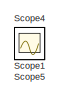
[diagram: root canvas - part 1/2, top right region]
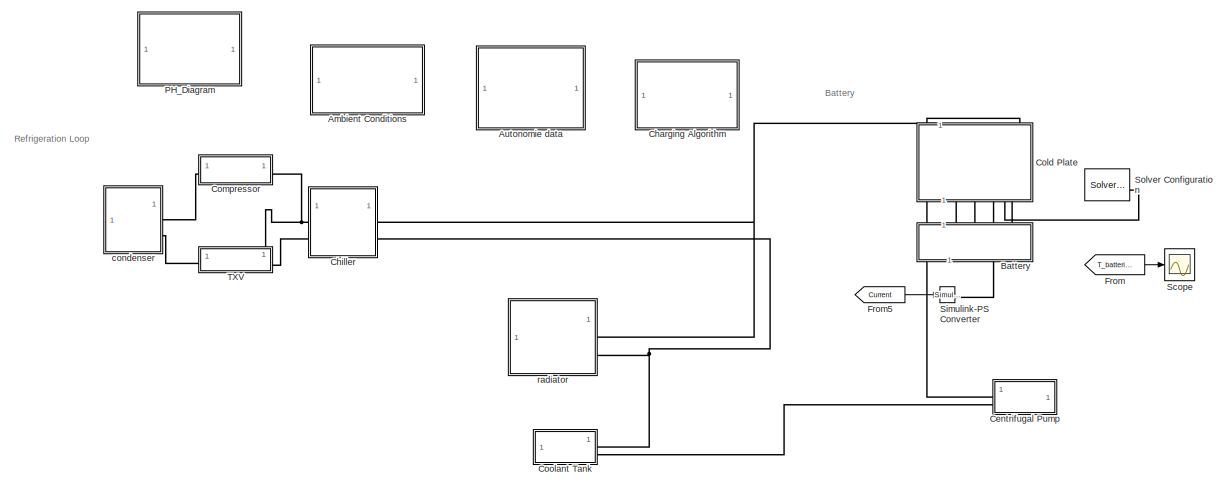
[diagram: root canvas - part 2/2, full width, bottom band]
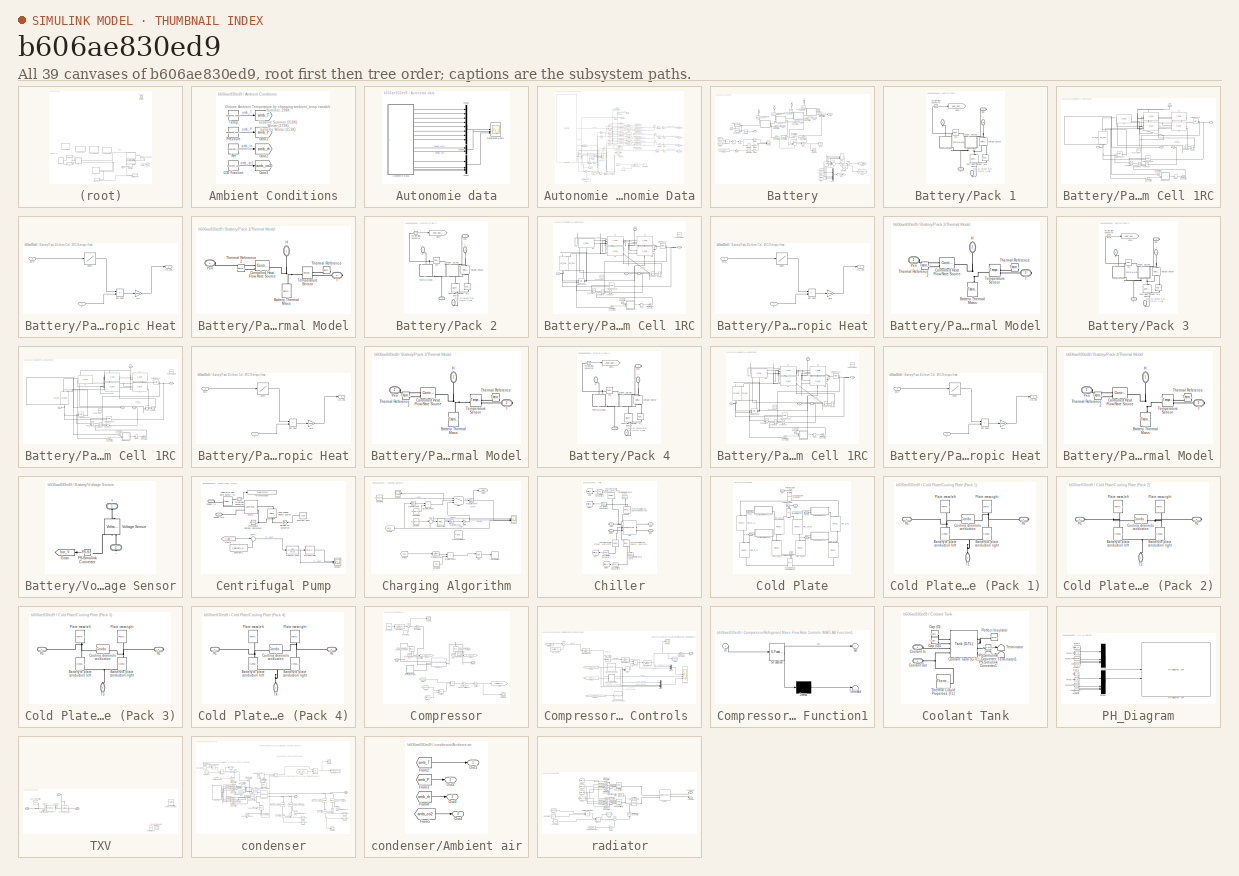
[diagram: thumbnail index - all 39 canvases of the model, root first then tree order]
MODEL slx_b606ae830ed9
KIND model
CONFIG AbsTol = auto
CONFIG EnableMultiTasking = off
CONFIG FixedStep = 0.10678030103040022224
CONFIG MaxStep = 1.0
CONFIG MinStep = auto
CONFIG RelTol = 1e-3
CONFIG SampleTimeConstraint = Unconstrained
CONFIG SolverName = VariableStepAuto
CONFIG StartTime = 0.0
CONFIG StopTime = sim_t_end
BLOCK [SubSystem] Ambient Conditions
  NameLocation = top
BLOCK [Constant] Ambient Conditions/CO2 Fraction
  Value = ambient_co2
BLOCK [Goto] Ambient Conditions/Goto
  GotoTag = amb_T
  TagVisibility = global
BLOCK [Goto] Ambient Conditions/Goto1
  GotoTag = amb_P
  TagVisibility = global
BLOCK [Goto] Ambient Conditions/Goto2
  GotoTag = amb_rh
  TagVisibility = global
BLOCK [Goto] Ambient Conditions/Goto3
  GotoTag = amb_co2
  TagVisibility = global
BLOCK [Constant] Ambient Conditions/Pressure
  Value = ambient_pressure
BLOCK [Constant] Ambient Conditions/RH
  Value = ambient_rh
BLOCK [Constant] Ambient Conditions/Temp
  Value = ambient_temp
BLOCK [SubSystem] Autonomie data
  Commented = on
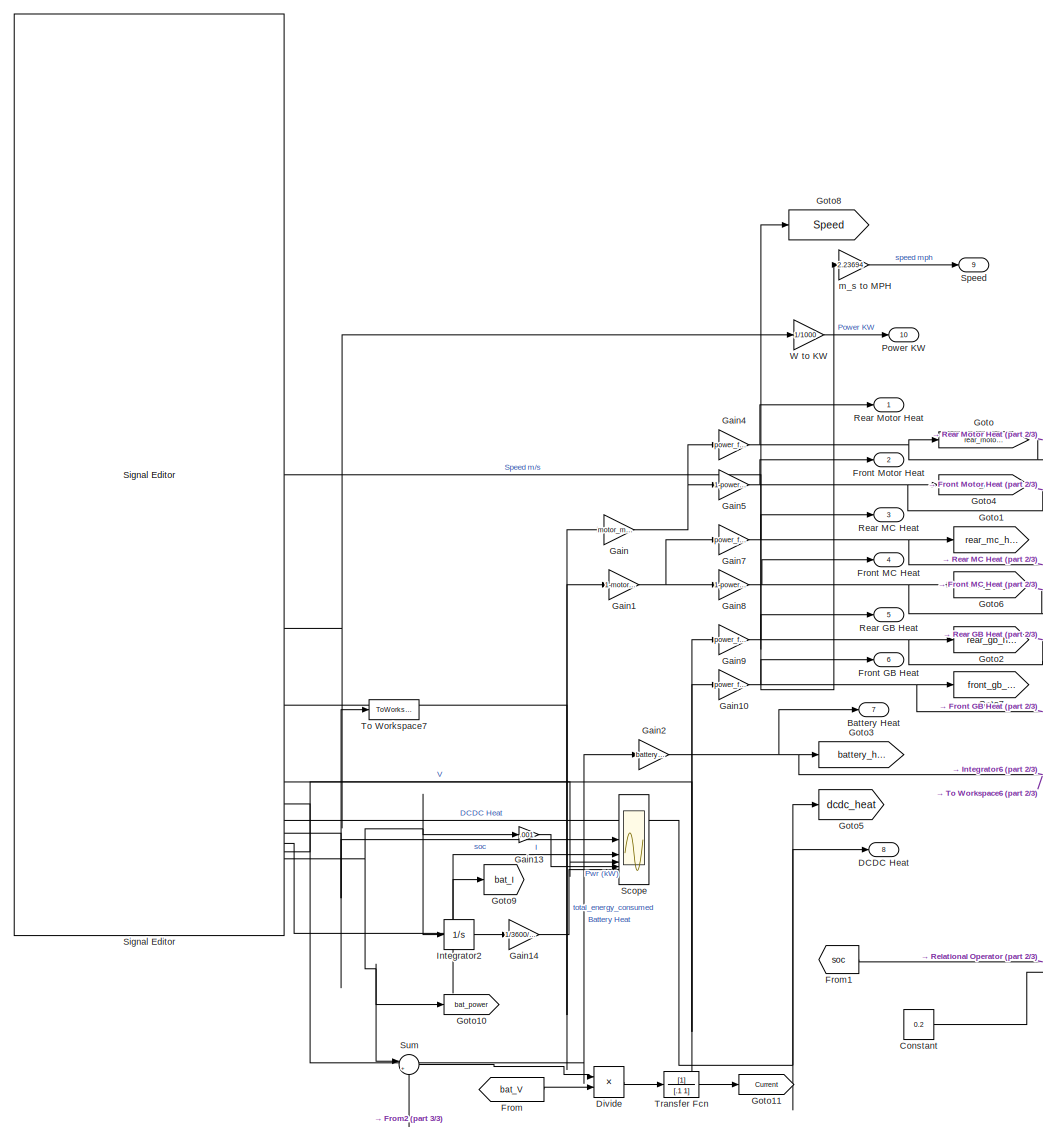
[diagram: Autonomie data/Autonomie Data - part 1/3, left side, full height]
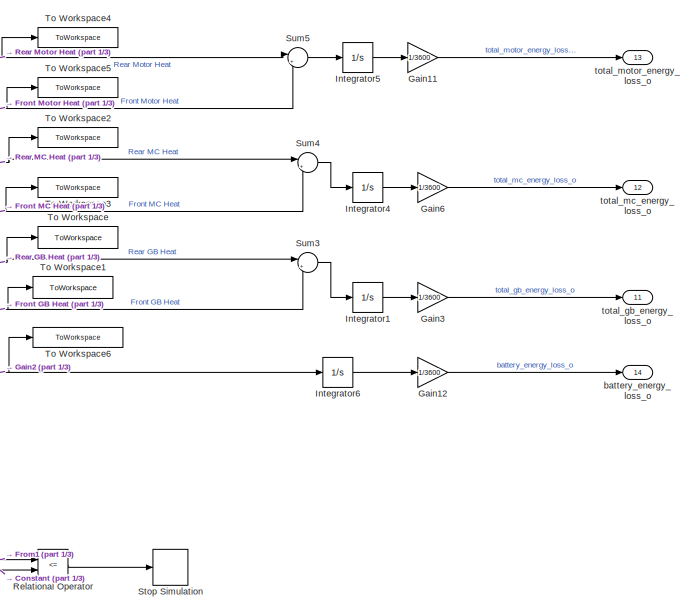
[diagram: Autonomie data/Autonomie Data - part 2/3, middle right region]
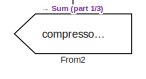
[diagram: Autonomie data/Autonomie Data - part 3/3, bottom left region]
BLOCK [SubSystem] Autonomie data/Autonomie Data
BLOCK [Outport] Autonomie data/Autonomie Data/Battery Heat
  Port = 7
BLOCK [Constant] Autonomie data/Autonomie Data/Constant
  Value = 0.2
BLOCK [Outport] Autonomie data/Autonomie Data/DCDC Heat
  Port = 8
BLOCK [Product] Autonomie data/Autonomie Data/Divide
  Inputs = */
BLOCK [From] Autonomie data/Autonomie Data/From
  GotoTag = bat_V
  TagVisibility = global
BLOCK [From] Autonomie data/Autonomie Data/From1
  GotoTag = soc
  TagVisibility = global
BLOCK [From] Autonomie data/Autonomie Data/From2
  GotoTag = compressor_work
  NameLocation = right
BLOCK [Outport] Autonomie data/Autonomie Data/Front GB Heat
  Port = 6
BLOCK [Outport] Autonomie data/Autonomie Data/Front MC Heat
  Port = 4
BLOCK [Outport] Autonomie data/Autonomie Data/Front Motor Heat
  Port = 2
BLOCK [Gain] Autonomie data/Autonomie Data/Gain
  Commented = on
  Gain = motor_mc_heat_fraction
BLOCK [Gain] Autonomie data/Autonomie Data/Gain1
  Commented = on
  Gain = 1-motor_mc_heat_fraction
BLOCK [Gain] Autonomie data/Autonomie Data/Gain10
  Commented = on
  Gain = power_fraction_rear
BLOCK [Gain] Autonomie data/Autonomie Data/Gain11
  Commented = on
  Gain = 1/3600
BLOCK [Gain] Autonomie data/Autonomie Data/Gain12
  Commented = on
  Gain = 1/3600
BLOCK [Gain] Autonomie data/Autonomie Data/Gain13
  Commented = on
  Gain = .001
BLOCK [Gain] Autonomie data/Autonomie Data/Gain14
  Commented = on
  Gain = 1/3600/1000
BLOCK [Gain] Autonomie data/Autonomie Data/Gain2
  Commented = on
  Gain = battery_heat_gen_scale
BLOCK [Gain] Autonomie data/Autonomie Data/Gain3
  Commented = on
  Gain = 1/3600
BLOCK [Gain] Autonomie data/Autonomie Data/Gain4
  Commented = on
  Gain = power_fraction_rear
BLOCK [Gain] Autonomie data/Autonomie Data/Gain5
  Commented = on
  Gain = 1-power_fraction_rear
BLOCK [Gain] Autonomie data/Autonomie Data/Gain6
  Commented = on
  Gain = 1/3600
BLOCK [Gain] Autonomie data/Autonomie Data/Gain7
  Commented = on
  Gain = power_fraction_rear
BLOCK [Gain] Autonomie data/Autonomie Data/Gain8
  Commented = on
  Gain = 1-power_fraction_rear
BLOCK [Gain] Autonomie data/Autonomie Data/Gain9
  Commented = on
  Gain = power_fraction_rear
BLOCK [Goto] Autonomie data/Autonomie Data/Goto
  Commented = on
  GotoTag = rear_motor_heat
  TagVisibility = global
BLOCK [Goto] Autonomie data/Autonomie Data/Goto1
  Commented = on
  GotoTag = rear_mc_heat
  TagVisibility = global
BLOCK [Goto] Autonomie data/Autonomie Data/Goto10
  GotoTag = bat_power
  TagVisibility = global
BLOCK [Goto] Autonomie data/Autonomie Data/Goto11
  GotoTag = Current
  TagVisibility = global
BLOCK [Goto] Autonomie data/Autonomie Data/Goto2
  Commented = on
  GotoTag = rear_gb_heat
  TagVisibility = global
BLOCK [Goto] Autonomie data/Autonomie Data/Goto3
  Commented = on
  GotoTag = battery_heat
  TagVisibility = global
BLOCK [Goto] Autonomie data/Autonomie Data/Goto4
  Commented = on
  GotoTag = front_motor_heat
  TagVisibility = global
BLOCK [Goto] Autonomie data/Autonomie Data/Goto5
  Commented = on
  GotoTag = dcdc_heat
  TagVisibility = global
BLOCK [Goto] Autonomie data/Autonomie Data/Goto6
  Commented = on
  GotoTag = front_mc_heat
  TagVisibility = global
BLOCK [Goto] Autonomie data/Autonomie Data/Goto7
  Commented = on
  GotoTag = front_gb_heat
  TagVisibility = global
BLOCK [Goto] Autonomie data/Autonomie Data/Goto8
  GotoTag = Speed
  TagVisibility = global
BLOCK [Goto] Autonomie data/Autonomie Data/Goto9
  Commented = on
  GotoTag = bat_I
  TagVisibility = global
BLOCK [Integrator] Autonomie data/Autonomie Data/Integrator1
  Commented = on
BLOCK [Integrator] Autonomie data/Autonomie Data/Integrator2
  Commented = on
BLOCK [Integrator] Autonomie data/Autonomie Data/Integrator4
  Commented = on
BLOCK [Integrator] Autonomie data/Autonomie Data/Integrator5
  Commented = on
BLOCK [Integrator] Autonomie data/Autonomie Data/Integrator6
  Commented = on
BLOCK [Outport] Autonomie data/Autonomie Data/Power KW
  Port = 10
BLOCK [Outport] Autonomie data/Autonomie Data/Rear GB Heat
  Port = 5
BLOCK [Outport] Autonomie data/Autonomie Data/Rear MC Heat
  Port = 3
BLOCK [Outport] Autonomie data/Autonomie Data/Rear Motor Heat
BLOCK [RelationalOperator] Autonomie data/Autonomie Data/Relational Operator
  InputSameDT = off
  Operator = <=
  OutDataTypeStr = boolean
  RndMeth = Simplest
BLOCK [Scope] Autonomie data/Autonomie Data/Scope
  Commented = on
  Floating = off
  NumInputPorts = 5
  ScopeSpecificationString = Simulink.scopes.TimeScopeBlockCfg('CurrentConfiguration', extmgr.ConfigurationSet(extmgr.Configuration('Core','General UI',true),extmgr.Configuration('Core','Source UI',true),extmgr.Configuration('Sources','WiredSimulink',true,'DataLoggingVariableName','ScopeData1'),extmgr.Configuration('Visuals','Time Domain',true,'SerializedDisplays',{struct('MinYLimReal','0.86707','MaxYLimReal','1.00366','YLabe...<+4922ch>
BLOCK [Reference] Autonomie data/Autonomie Data/Signal Editor  REF=SignalEditorBlockLib/Signal Editor
  SourceBlock = SignalEditorBlockLib/Signal Editor
  SourceType = SignalEditor
  UserDataPersistent = on
BLOCK [Outport] Autonomie data/Autonomie Data/Speed
  Port = 9
BLOCK [Stop] Autonomie data/Autonomie Data/Stop Simulation
BLOCK [Sum] Autonomie data/Autonomie Data/Sum
  Inputs = |++
BLOCK [Sum] Autonomie data/Autonomie Data/Sum3
  Commented = on
  Inputs = |++
BLOCK [Sum] Autonomie data/Autonomie Data/Sum4
  Commented = on
  Inputs = |++
BLOCK [Sum] Autonomie data/Autonomie Data/Sum5
  Commented = on
  Inputs = |++
  NameLocation = top
BLOCK [ToWorkspace] Autonomie data/Autonomie Data/To Workspace
  Commented = on
  FixptAsFi = on
  MaxDataPoints = inf
  SampleTime = -1
  SaveFormat = Timeseries
  VariableName = rear_gb_loss
BLOCK [ToWorkspace] Autonomie data/Autonomie Data/To Workspace1
  Commented = on
  FixptAsFi = on
  MaxDataPoints = inf
  SampleTime = -1
  SaveFormat = Timeseries
  VariableName = front_gb_loss
BLOCK [ToWorkspace] Autonomie data/Autonomie Data/To Workspace2
  Commented = on
  FixptAsFi = on
  MaxDataPoints = inf
  SampleTime = -1
  SaveFormat = Timeseries
  VariableName = rear_mc_loss
BLOCK [ToWorkspace] Autonomie data/Autonomie Data/To Workspace3
  Commented = on
  FixptAsFi = on
  MaxDataPoints = inf
  SampleTime = -1
  SaveFormat = Timeseries
  VariableName = front_mc_loss
BLOCK [ToWorkspace] Autonomie data/Autonomie Data/To Workspace4
  Commented = on
  FixptAsFi = on
  MaxDataPoints = inf
  SampleTime = -1
  SaveFormat = Timeseries
  VariableName = rear_motor_loss
BLOCK [ToWorkspace] Autonomie data/Autonomie Data/To Workspace5
  Commented = on
  FixptAsFi = on
  MaxDataPoints = inf
  SampleTime = -1
  SaveFormat = Timeseries
  VariableName = front_motor_loss
BLOCK [ToWorkspace] Autonomie data/Autonomie Data/To Workspace6
  Commented = on
  FixptAsFi = on
  MaxDataPoints = inf
  SampleTime = -1
  SaveFormat = Timeseries
  VariableName = battery_heat_gen
BLOCK [ToWorkspace] Autonomie data/Autonomie Data/To Workspace7
  Commented = on
  FixptAsFi = on
  MaxDataPoints = inf
  SampleTime = -1
  SaveFormat = Timeseries
  VariableName = soc
BLOCK [TransferFcn] Autonomie data/Autonomie Data/Transfer Fcn
  Denominator = [.1 1]
BLOCK [Gain] Autonomie data/Autonomie Data/W to KW
  Commented = on
  Gain = 1/1000
BLOCK [Outport] Autonomie data/Autonomie Data/battery_energy_loss_o
  Port = 14
BLOCK [Gain] Autonomie data/Autonomie Data/m_s to MPH
  Commented = on
  Gain = 2.23694
BLOCK [Outport] Autonomie data/Autonomie Data/total_gb_energy_loss_o
  Port = 11
BLOCK [Outport] Autonomie data/Autonomie Data/total_mc_energy_loss_o
  Port = 12
BLOCK [Outport] Autonomie data/Autonomie Data/total_motor_energy_loss_o
  Port = 13
BLOCK [Scope] Autonomie data/Generated Heat1
  Floating = off
  NumInputPorts = 3
  ScopeSpecificationString = Simulink.scopes.TimeScopeBlockCfg('CurrentConfiguration', extmgr.ConfigurationSet(extmgr.Configuration('Core','General UI',true),extmgr.Configuration('Core','Source UI',true),extmgr.Configuration('Sources','WiredSimulink',true,'DataLoggingVariableName','ScopeData1'),extmgr.Configuration('Visuals','Time Domain',true,'SerializedDisplays',{struct('MinYLimReal','-3.02632','MaxYLimReal','27.23684','YLa...<+4961ch>
BLOCK [Mux] Autonomie data/Mux1
  DisplayOption = bar
BLOCK [Mux] Autonomie data/Mux2
  DisplayOption = bar
  Inputs = 8
BLOCK [Mux] Autonomie data/Mux3
  DisplayOption = bar
  Inputs = 2
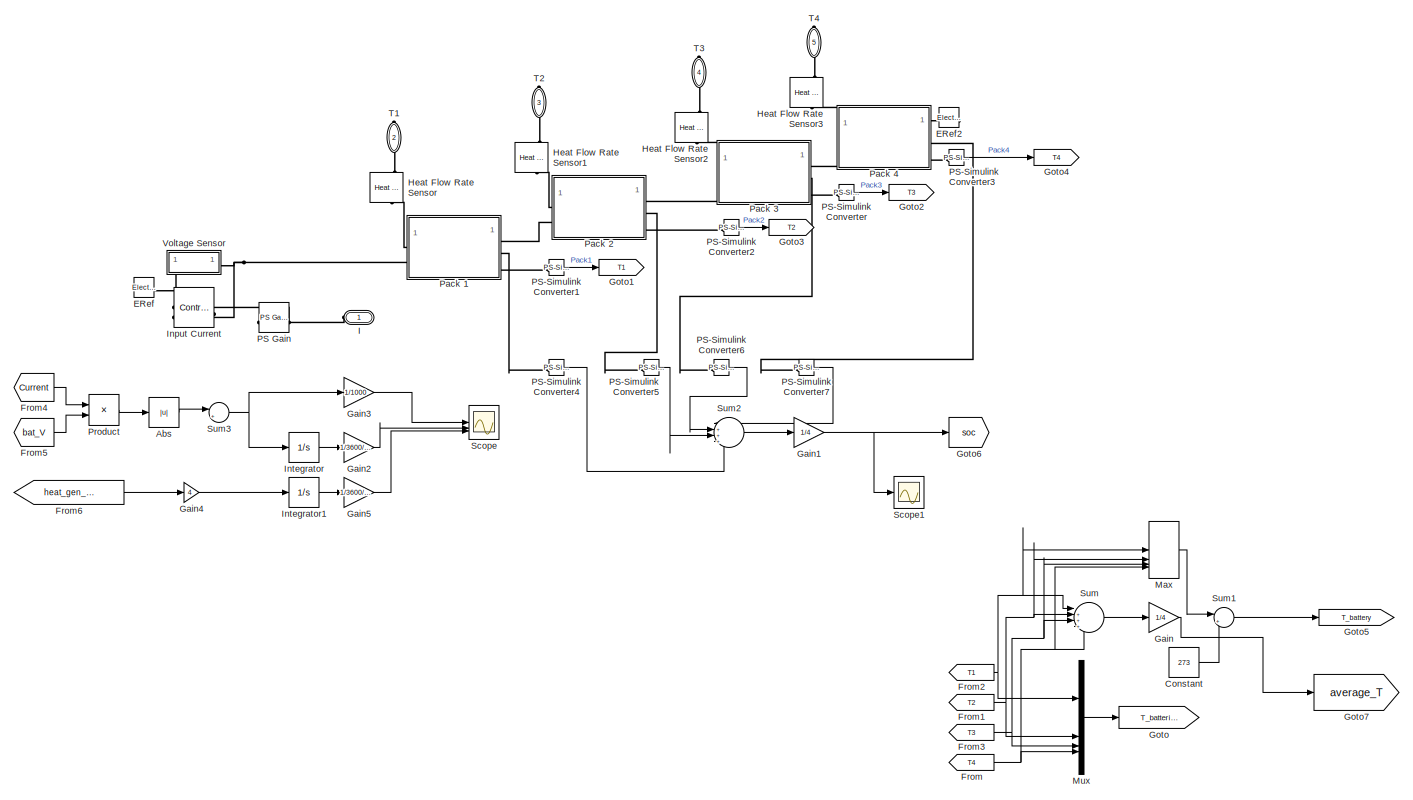
[diagram: Battery - part 1/1, most of the canvas]
BLOCK [SubSystem] Battery
  NameLocation = right
BLOCK [Abs] Battery/Abs
  SaturateOnIntegerOverflow = off
BLOCK [Constant] Battery/Constant
  Value = 273
BLOCK [Reference] Battery/ERef  REF=fl_lib/Electrical/Electrical Elements/Electrical Reference
  SourceBlock = fl_lib/Electrical/Electrical Elements/Electrical Reference
  SourceType = Electrical Reference
BLOCK [Reference] Battery/ERef2  REF=fl_lib/Electrical/Electrical Elements/Electrical Reference
  NameLocation = top
  SourceBlock = fl_lib/Electrical/Electrical Elements/Electrical Reference
  SourceType = Electrical Reference
BLOCK [From] Battery/From
  GotoTag = T4
  TagVisibility = global
BLOCK [From] Battery/From1
  GotoTag = T2
  TagVisibility = global
BLOCK [From] Battery/From2
  GotoTag = T1
  TagVisibility = global
BLOCK [From] Battery/From3
  GotoTag = T3
  TagVisibility = global
BLOCK [From] Battery/From4
  GotoTag = Current
  TagVisibility = global
BLOCK [From] Battery/From5
  GotoTag = bat_V
  TagVisibility = global
BLOCK [From] Battery/From6
  GotoTag = heat_gen_pack1
  TagVisibility = global
BLOCK [Gain] Battery/Gain
  Gain = 1/4
BLOCK [Gain] Battery/Gain1
  Gain = 1/4
BLOCK [Gain] Battery/Gain2
  Gain = 1/3600/1000
BLOCK [Gain] Battery/Gain3
  Gain = 1/1000
BLOCK [Gain] Battery/Gain4
  Gain = 4
BLOCK [Gain] Battery/Gain5
  Gain = 1/3600/1000
BLOCK [Goto] Battery/Goto
  GotoTag = T_batteries
  TagVisibility = global
BLOCK [Goto] Battery/Goto1
  GotoTag = T1
  TagVisibility = global
BLOCK [Goto] Battery/Goto2
  GotoTag = T3
  TagVisibility = global
BLOCK [Goto] Battery/Goto3
  GotoTag = T2
  TagVisibility = global
BLOCK [Goto] Battery/Goto4
  GotoTag = T4
  TagVisibility = global
BLOCK [Goto] Battery/Goto5
  GotoTag = T_battery
  TagVisibility = global
BLOCK [Goto] Battery/Goto6
  GotoTag = soc
  TagVisibility = global
BLOCK [Goto] Battery/Goto7
  GotoTag = average_T
  TagVisibility = global
BLOCK [Reference] Battery/Heat Flow Rate Sensor  REF=fl_lib/Thermal/Thermal Sensors/Heat Flow Rate
Sensor
  NameLocation = left
  SourceBlock = fl_lib/Thermal/Thermal Sensors/Heat Flow Rate\nSensor
  SourceType = Heat Flow Rate\nSensor
BLOCK [Reference] Battery/Heat Flow Rate Sensor1  REF=fl_lib/Thermal/Thermal Sensors/Heat Flow Rate
Sensor
  NameLocation = left
  SourceBlock = fl_lib/Thermal/Thermal Sensors/Heat Flow Rate\nSensor
  SourceType = Heat Flow Rate\nSensor
BLOCK [Reference] Battery/Heat Flow Rate Sensor2  REF=fl_lib/Thermal/Thermal Sensors/Heat Flow Rate
Sensor
  NameLocation = left
  SourceBlock = fl_lib/Thermal/Thermal Sensors/Heat Flow Rate\nSensor
  SourceType = Heat Flow Rate\nSensor
BLOCK [Reference] Battery/Heat Flow Rate Sensor3  REF=fl_lib/Thermal/Thermal Sensors/Heat Flow Rate
Sensor
  NameLocation = left
  SourceBlock = fl_lib/Thermal/Thermal Sensors/Heat Flow Rate\nSensor
  SourceType = Heat Flow Rate\nSensor
BLOCK [PMIOPort] Battery/I
  NameLocation = top
  Side = Left
BLOCK [Reference] Battery/Input Current  REF=fl_lib/Electrical/Electrical Sources/Controlled Current
Source
  SourceBlock = fl_lib/Electrical/Electrical Sources/Controlled Current\nSource
  SourceType = Controlled Current\nSource
BLOCK [Integrator] Battery/Integrator
BLOCK [Integrator] Battery/Integrator1
BLOCK [MinMax] Battery/Max
  Function = max
  Inputs = 4
BLOCK [Mux] Battery/Mux
  DisplayOption = bar
BLOCK [Reference] Battery/PS Gain  REF=fl_lib/Physical Signals/Functions/PS Gain
  NameLocation = top
  SourceBlock = fl_lib/Physical Signals/Functions/PS Gain
  SourceType = PS Gain
BLOCK [Reference] Battery/PS-Simulink Converter  REF=nesl_utility/PS-Simulink
Converter
  SourceBlock = nesl_utility/PS-Simulink\nConverter
  SourceType = PS-Simulink\nConverter
BLOCK [Reference] Battery/PS-Simulink Converter1  REF=nesl_utility/PS-Simulink
Converter
  SourceBlock = nesl_utility/PS-Simulink\nConverter
  SourceType = PS-Simulink\nConverter
BLOCK [Reference] Battery/PS-Simulink Converter2  REF=nesl_utility/PS-Simulink
Converter
  SourceBlock = nesl_utility/PS-Simulink\nConverter
  SourceType = PS-Simulink\nConverter
BLOCK [Reference] Battery/PS-Simulink Converter3  REF=nesl_utility/PS-Simulink
Converter
  SourceBlock = nesl_utility/PS-Simulink\nConverter
  SourceType = PS-Simulink\nConverter
BLOCK [Reference] Battery/PS-Simulink Converter4  REF=nesl_utility/PS-Simulink
Converter
  SourceBlock = nesl_utility/PS-Simulink\nConverter
  SourceType = PS-Simulink\nConverter
BLOCK [Reference] Battery/PS-Simulink Converter5  REF=nesl_utility/PS-Simulink
Converter
  SourceBlock = nesl_utility/PS-Simulink\nConverter
  SourceType = PS-Simulink\nConverter
BLOCK [Reference] Battery/PS-Simulink Converter6  REF=nesl_utility/PS-Simulink
Converter
  SourceBlock = nesl_utility/PS-Simulink\nConverter
  SourceType = PS-Simulink\nConverter
BLOCK [Reference] Battery/PS-Simulink Converter7  REF=nesl_utility/PS-Simulink
Converter
  SourceBlock = nesl_utility/PS-Simulink\nConverter
  SourceType = PS-Simulink\nConverter
BLOCK [SubSystem] Battery/Pack 1
  NameLocation = top
  Tag = PublishSubsystem
BLOCK [PMIOPort] Battery/Pack 1/+
  NameLocation = left
  Port = 3
  Side = Left
  Tag = PMCPort
BLOCK [PMIOPort] Battery/Pack 1/-
  NameLocation = left
  Side = Right
  Tag = PMCPort
BLOCK [Reference] Battery/Pack 1/Controlled Voltage Source  REF=fl_lib/Electrical/Electrical Sources/Controlled Voltage
Source
  NameLocation = left
  SourceBlock = fl_lib/Electrical/Electrical Sources/Controlled Voltage\nSource
  SourceType = Controlled Voltage\nSource
BLOCK [Goto] Battery/Pack 1/Goto
  GotoTag = heat_gen_pack1
  TagVisibility = global
BLOCK [PMIOPort] Battery/Pack 1/H
  NameLocation = left
  Port = 2
  Side = Left
  Tag = PMCPort
BLOCK [SubSystem] Battery/Pack 1/Lithium Cell 1RC
  NameLocation = left
  Tag = PublishSubsystem
BLOCK [PMIOPort] Battery/Pack 1/Lithium Cell 1RC/+
  Port = 4
  Side = Right
BLOCK [PMIOPort] Battery/Pack 1/Lithium Cell 1RC/-
  NameLocation = top
  Port = 5
  Side = Left
BLOCK [Reference] Battery/Pack 1/Lithium Cell 1RC/C1  REF=LiBatteryElements_lib/C_table
  NameLocation = top
  SourceBlock = LiBatteryElements_lib/C_table
  SourceType = C_table
BLOCK [Reference] Battery/Pack 1/Lithium Cell 1RC/C2  REF=LiBatteryElements_lib/C_table
  NameLocation = top
  SourceBlock = LiBatteryElements_lib/C_table
  SourceType = C_table
BLOCK [Reference] Battery/Pack 1/Lithium Cell 1RC/Current Sensor  REF=fl_lib/Electrical/Electrical Sensors/Current Sensor
  SourceBlock = fl_lib/Electrical/Electrical Sensors/Current Sensor
  SourceType = Current Sensor
BLOCK [Delay] Battery/Pack 1/Lithium Cell 1RC/Delay
  DelayLength = 1
  InputPortMap = u0
BLOCK [Reference] Battery/Pack 1/Lithium Cell 1RC/Em_table  REF=LiBatteryElements_lib/Em_table
  NameLocation = right
  SourceBlock = LiBatteryElements_lib/Em_table
  SourceType = Em_table
BLOCK [SubSystem] Battery/Pack 1/Lithium Cell 1RC/Entropic Heat
BLOCK [Product] Battery/Pack 1/Lithium Cell 1RC/Entropic Heat/Ent heat
  RndMeth = Zero
BLOCK [Outport] Battery/Pack 1/Lithium Cell 1RC/Entropic Heat/HG_ent
BLOCK [Inport] Battery/Pack 1/Lithium Cell 1RC/Entropic Heat/SOC
  Port = 2
BLOCK [Inport] Battery/Pack 1/Lithium Cell 1RC/Entropic Heat/T
BLOCK [Lookup] Battery/Pack 1/Lithium Cell 1RC/Entropic Heat/dudT
  InputValues = SOC_ent
  SaturateOnIntegerOverflow = off
  Table = dUdt
BLOCK [Gain] Battery/Pack 1/Lithium Cell 1RC/Entropic Heat/mV
  Gain = 1/1000
BLOCK [PMIOPort] Battery/Pack 1/Lithium Cell 1RC/P
  Side = Right
BLOCK [Reference] Battery/Pack 1/Lithium Cell 1RC/PS Add  REF=fl_lib/Physical Signals/Functions/PS Add
  SourceBlock = fl_lib/Physical Signals/Functions/PS Add
  SourceType = PS Add
BLOCK [Reference] Battery/Pack 1/Lithium Cell 1RC/PS Add1  REF=fl_lib/Physical Signals/Functions/PS Add
  NameLocation = top
  SourceBlock = fl_lib/Physical Signals/Functions/PS Add
  SourceType = PS Add
BLOCK [Reference] Battery/Pack 1/Lithium Cell 1RC/PS Constant  REF=fl_lib/Physical Signals/Sources/PS Constant
  SourceBlock = fl_lib/Physical Signals/Sources/PS Constant
  SourceType = PS Constant
BLOCK [Reference] Battery/Pack 1/Lithium Cell 1RC/PS Product  REF=fl_lib/Physical Signals/Functions/PS Product
  SourceBlock = fl_lib/Physical Signals/Functions/PS Product
  SourceType = PS Product
BLOCK [Reference] Battery/Pack 1/Lithium Cell 1RC/PS Subtract  REF=fl_lib/Physical Signals/Functions/PS Subtract
  SourceBlock = fl_lib/Physical Signals/Functions/PS Subtract
  SourceType = PS Subtract
BLOCK [Reference] Battery/Pack 1/Lithium Cell 1RC/PS Subtract1  REF=fl_lib/Physical Signals/Functions/PS Subtract
  SourceBlock = fl_lib/Physical Signals/Functions/PS Subtract
  SourceType = PS Subtract
BLOCK [Reference] Battery/Pack 1/Lithium Cell 1RC/PS-Simulink Converter  REF=nesl_utility/PS-Simulink
Converter
  SourceBlock = nesl_utility/PS-Simulink\nConverter
  SourceType = PS-Simulink\nConverter
BLOCK [Reference] Battery/Pack 1/Lithium Cell 1RC/PS-Simulink Converter1  REF=nesl_utility/PS-Simulink
Converter
  SourceBlock = nesl_utility/PS-Simulink\nConverter
  SourceType = PS-Simulink\nConverter
BLOCK [Reference] Battery/Pack 1/Lithium Cell 1RC/R0  REF=LiBatteryElements_lib/R_table
  SourceBlock = LiBatteryElements_lib/R_table
  SourceType = R_table
BLOCK [Reference] Battery/Pack 1/Lithium Cell 1RC/R1  REF=LiBatteryElements_lib/R_table
  SourceBlock = LiBatteryElements_lib/R_table
  SourceType = R_table
BLOCK [Reference] Battery/Pack 1/Lithium Cell 1RC/R2  REF=LiBatteryElements_lib/R_table
  SourceBlock = LiBatteryElements_lib/R_table
  SourceType = R_table
BLOCK [PMIOPort] Battery/Pack 1/Lithium Cell 1RC/SOC
  NameLocation = top
  Port = 3
  Side = Right
BLOCK [Reference] Battery/Pack 1/Lithium Cell 1RC/Simulink-PS Converter  REF=nesl_utility/Simulink-PS
Converter
  SourceBlock = nesl_utility/Simulink-PS\nConverter
  SourceType = Simulink-PS\nConverter
BLOCK [PMIOPort] Battery/Pack 1/Lithium Cell 1RC/T
  Port = 2
  Side = Left
BLOCK [Reference] Battery/Pack 1/Lithium Cell 1RC/Voltage Sensor  REF=fl_lib/Electrical/Electrical Sensors/Voltage Sensor
  SourceBlock = fl_lib/Electrical/Electrical Sensors/Voltage Sensor
  SourceType = Voltage Sensor
BLOCK [Reference] Battery/Pack 1/Lithium Cell 1RC/Voltage Sensor1  REF=fl_lib/Electrical/Electrical Sensors/Voltage Sensor
  SourceBlock = fl_lib/Electrical/Electrical Sensors/Voltage Sensor
  SourceType = Voltage Sensor
BLOCK [Reference] Battery/Pack 1/N*p  REF=fl_lib/Physical Signals/Functions/PS Gain
  NameLocation = top
  SourceBlock = fl_lib/Physical Signals/Functions/PS Gain
  SourceType = PS Gain
BLOCK [Reference] Battery/Pack 1/N-1  REF=fl_lib/Physical Signals/Functions/PS Gain
  NameLocation = right
  SourceBlock = fl_lib/Physical Signals/Functions/PS Gain
  SourceType = PS Gain
BLOCK [Reference] Battery/Pack 1/PS-Simulink Converter  REF=nesl_utility/PS-Simulink
Converter
  SourceBlock = nesl_utility/PS-Simulink\nConverter
  SourceType = PS-Simulink\nConverter
BLOCK [PMIOPort] Battery/Pack 1/SOC
  NameLocation = top
  Port = 4
  Side = Right
BLOCK [PMIOPort] Battery/Pack 1/T
  NameLocation = top
  Port = 5
  Side = Right
BLOCK [SubSystem] Battery/Pack 1/Thermal Model
  NameLocation = left
BLOCK [Reference] Battery/Pack 1/Thermal Model/Battery Thermal Mass  REF=fl_lib/Thermal/Thermal Elements/Thermal Mass
  NameLocation = right
  SourceBlock = fl_lib/Thermal/Thermal Elements/Thermal Mass
  SourceType = Thermal Mass
BLOCK [Reference] Battery/Pack 1/Thermal Model/Controlled Heat Flow Rate Source  REF=fl_lib/Thermal/Thermal Sources/Controlled Heat Flow
Rate Source
  SourceBlock = fl_lib/Thermal/Thermal Sources/Controlled Heat Flow\nRate Source
  SourceType = Controlled Heat Flow\nRate Source
BLOCK [PMIOPort] Battery/Pack 1/Thermal Model/H
  NameLocation = left
  Side = Left
  Tag = PMCPort
BLOCK [PMIOPort] Battery/Pack 1/Thermal Model/Pxn
  NameLocation = top
  Port = 2
  Side = Left
  Tag = PMCPort
BLOCK [PMIOPort] Battery/Pack 1/Thermal Model/T
  Port = 3
  Side = Right
  Tag = PMCPort
BLOCK [Reference] Battery/Pack 1/Thermal Model/Temperature Sensor  REF=fl_lib/Thermal/Thermal Sensors/Temperature Sensor
  SourceBlock = fl_lib/Thermal/Thermal Sensors/Temperature Sensor
  SourceType = Temperature Sensor
BLOCK [Reference] Battery/Pack 1/Thermal Model/Thermal Reference  REF=fl_lib/Thermal/Thermal Elements/Thermal Reference
  NameLocation = top
  SourceBlock = fl_lib/Thermal/Thermal Elements/Thermal Reference
  SourceType = Thermal Reference
BLOCK [Reference] Battery/Pack 1/Thermal Model/Thermal Reference2  REF=fl_lib/Thermal/Thermal Elements/Thermal Reference
  SourceBlock = fl_lib/Thermal/Thermal Elements/Thermal Reference
  SourceType = Thermal Reference
BLOCK [Reference] Battery/Pack 1/Voltage Sensor  REF=fl_lib/Electrical/Electrical Sensors/Voltage Sensor
  NameLocation = right
  SourceBlock = fl_lib/Electrical/Electrical Sensors/Voltage Sensor
  SourceType = Voltage Sensor
BLOCK [SubSystem] Battery/Pack 2
  NameLocation = top
  Tag = PublishSubsystem
BLOCK [PMIOPort] Battery/Pack 2/+
  NameLocation = left
  Port = 3
  Side = Left
  Tag = PMCPort
BLOCK [PMIOPort] Battery/Pack 2/-
  NameLocation = left
  Side = Right
  Tag = PMCPort
BLOCK [Reference] Battery/Pack 2/Controlled Voltage Source  REF=fl_lib/Electrical/Electrical Sources/Controlled Voltage
Source
  NameLocation = left
  SourceBlock = fl_lib/Electrical/Electrical Sources/Controlled Voltage\nSource
  SourceType = Controlled Voltage\nSource
BLOCK [Goto] Battery/Pack 2/Goto
  GotoTag = heat_gen_pack2
  TagVisibility = global
BLOCK [PMIOPort] Battery/Pack 2/H
  NameLocation = left
  Port = 2
  Side = Left
  Tag = PMCPort
BLOCK [SubSystem] Battery/Pack 2/Lithium Cell 1RC
  NameLocation = left
  Tag = PublishSubsystem
BLOCK [PMIOPort] Battery/Pack 2/Lithium Cell 1RC/+
  Port = 4
  Side = Right
BLOCK [PMIOPort] Battery/Pack 2/Lithium Cell 1RC/-
  NameLocation = top
  Port = 5
  Side = Left
BLOCK [Reference] Battery/Pack 2/Lithium Cell 1RC/C1  REF=LiBatteryElements_lib/C_table
  NameLocation = top
  SourceBlock = LiBatteryElements_lib/C_table
  SourceType = C_table
BLOCK [Reference] Battery/Pack 2/Lithium Cell 1RC/C2  REF=LiBatteryElements_lib/C_table
  NameLocation = top
  SourceBlock = LiBatteryElements_lib/C_table
  SourceType = C_table
BLOCK [Reference] Battery/Pack 2/Lithium Cell 1RC/Current Sensor  REF=fl_lib/Electrical/Electrical Sensors/Current Sensor
  SourceBlock = fl_lib/Electrical/Electrical Sensors/Current Sensor
  SourceType = Current Sensor
BLOCK [Delay] Battery/Pack 2/Lithium Cell 1RC/Delay
  DelayLength = 1
  InputPortMap = u0
BLOCK [Reference] Battery/Pack 2/Lithium Cell 1RC/Em_table  REF=LiBatteryElements_lib/Em_table
  NameLocation = right
  SourceBlock = LiBatteryElements_lib/Em_table
  SourceType = Em_table
BLOCK [SubSystem] Battery/Pack 2/Lithium Cell 1RC/Entropic Heat
BLOCK [Product] Battery/Pack 2/Lithium Cell 1RC/Entropic Heat/Ent heat
  RndMeth = Zero
BLOCK [Outport] Battery/Pack 2/Lithium Cell 1RC/Entropic Heat/HG_ent
BLOCK [Inport] Battery/Pack 2/Lithium Cell 1RC/Entropic Heat/SOC
  Port = 2
BLOCK [Inport] Battery/Pack 2/Lithium Cell 1RC/Entropic Heat/T
BLOCK [Lookup] Battery/Pack 2/Lithium Cell 1RC/Entropic Heat/dudT
  InputValues = SOC_ent
  SaturateOnIntegerOverflow = off
  Table = dUdt
BLOCK [Gain] Battery/Pack 2/Lithium Cell 1RC/Entropic Heat/mV
  Gain = 1/1000
BLOCK [PMIOPort] Battery/Pack 2/Lithium Cell 1RC/P
  Side = Right
BLOCK [Reference] Battery/Pack 2/Lithium Cell 1RC/PS Add  REF=fl_lib/Physical Signals/Functions/PS Add
  SourceBlock = fl_lib/Physical Signals/Functions/PS Add
  SourceType = PS Add
BLOCK [Reference] Battery/Pack 2/Lithium Cell 1RC/PS Add1  REF=fl_lib/Physical Signals/Functions/PS Add
  NameLocation = top
  SourceBlock = fl_lib/Physical Signals/Functions/PS Add
  SourceType = PS Add
BLOCK [Reference] Battery/Pack 2/Lithium Cell 1RC/PS Constant  REF=fl_lib/Physical Signals/Sources/PS Constant
  SourceBlock = fl_lib/Physical Signals/Sources/PS Constant
  SourceType = PS Constant
BLOCK [Reference] Battery/Pack 2/Lithium Cell 1RC/PS Constant1  REF=fl_lib/Physical Signals/Sources/PS Constant
  SourceBlock = fl_lib/Physical Signals/Sources/PS Constant
  SourceType = PS Constant
BLOCK [Reference] Battery/Pack 2/Lithium Cell 1RC/PS Product  REF=fl_lib/Physical Signals/Functions/PS Product
  SourceBlock = fl_lib/Physical Signals/Functions/PS Product
  SourceType = PS Product
BLOCK [Reference] Battery/Pack 2/Lithium Cell 1RC/PS Subtract  REF=fl_lib/Physical Signals/Functions/PS Subtract
  SourceBlock = fl_lib/Physical Signals/Functions/PS Subtract
  SourceType = PS Subtract
BLOCK [Reference] Battery/Pack 2/Lithium Cell 1RC/PS Subtract1  REF=fl_lib/Physical Signals/Functions/PS Subtract
  SourceBlock = fl_lib/Physical Signals/Functions/PS Subtract
  SourceType = PS Subtract
BLOCK [Reference] Battery/Pack 2/Lithium Cell 1RC/PS-Simulink Converter  REF=nesl_utility/PS-Simulink
Converter
  SourceBlock = nesl_utility/PS-Simulink\nConverter
  SourceType = PS-Simulink\nConverter
BLOCK [Reference] Battery/Pack 2/Lithium Cell 1RC/PS-Simulink Converter1  REF=nesl_utility/PS-Simulink
Converter
  SourceBlock = nesl_utility/PS-Simulink\nConverter
  SourceType = PS-Simulink\nConverter
BLOCK [Reference] Battery/Pack 2/Lithium Cell 1RC/R0  REF=LiBatteryElements_lib/R_table
  SourceBlock = LiBatteryElements_lib/R_table
  SourceType = R_table
BLOCK [Reference] Battery/Pack 2/Lithium Cell 1RC/R1  REF=LiBatteryElements_lib/R_table
  SourceBlock = LiBatteryElements_lib/R_table
  SourceType = R_table
BLOCK [Reference] Battery/Pack 2/Lithium Cell 1RC/R2  REF=LiBatteryElements_lib/R_table
  SourceBlock = LiBatteryElements_lib/R_table
  SourceType = R_table
BLOCK [PMIOPort] Battery/Pack 2/Lithium Cell 1RC/SOC
  NameLocation = top
  Port = 3
  Side = Right
BLOCK [Reference] Battery/Pack 2/Lithium Cell 1RC/Simulink-PS Converter  REF=nesl_utility/Simulink-PS
Converter
  SourceBlock = nesl_utility/Simulink-PS\nConverter
  SourceType = Simulink-PS\nConverter
BLOCK [PMIOPort] Battery/Pack 2/Lithium Cell 1RC/T
  Port = 2
  Side = Left
BLOCK [Reference] Battery/Pack 2/Lithium Cell 1RC/Voltage Sensor  REF=fl_lib/Electrical/Electrical Sensors/Voltage Sensor
  SourceBlock = fl_lib/Electrical/Electrical Sensors/Voltage Sensor
  SourceType = Voltage Sensor
BLOCK [Reference] Battery/Pack 2/Lithium Cell 1RC/Voltage Sensor1  REF=fl_lib/Electrical/Electrical Sensors/Voltage Sensor
  SourceBlock = fl_lib/Electrical/Electrical Sensors/Voltage Sensor
  SourceType = Voltage Sensor
BLOCK [Reference] Battery/Pack 2/N*p  REF=fl_lib/Physical Signals/Functions/PS Gain
  NameLocation = top
  SourceBlock = fl_lib/Physical Signals/Functions/PS Gain
  SourceType = PS Gain
BLOCK [Reference] Battery/Pack 2/N-1  REF=fl_lib/Physical Signals/Functions/PS Gain
  NameLocation = right
  SourceBlock = fl_lib/Physical Signals/Functions/PS Gain
  SourceType = PS Gain
BLOCK [Reference] Battery/Pack 2/PS-Simulink Converter  REF=nesl_utility/PS-Simulink
Converter
  SourceBlock = nesl_utility/PS-Simulink\nConverter
  SourceType = PS-Simulink\nConverter
BLOCK [PMIOPort] Battery/Pack 2/SOC
  NameLocation = top
  Port = 4
  Side = Right
BLOCK [PMIOPort] Battery/Pack 2/T
  NameLocation = top
  Port = 5
  Side = Right
BLOCK [SubSystem] Battery/Pack 2/Thermal Model
  NameLocation = left
BLOCK [Reference] Battery/Pack 2/Thermal Model/Battery Thermal Mass  REF=fl_lib/Thermal/Thermal Elements/Thermal Mass
  NameLocation = right
  SourceBlock = fl_lib/Thermal/Thermal Elements/Thermal Mass
  SourceType = Thermal Mass
BLOCK [Reference] Battery/Pack 2/Thermal Model/Controlled Heat Flow Rate Source  REF=fl_lib/Thermal/Thermal Sources/Controlled Heat Flow
Rate Source
  SourceBlock = fl_lib/Thermal/Thermal Sources/Controlled Heat Flow\nRate Source
  SourceType = Controlled Heat Flow\nRate Source
BLOCK [PMIOPort] Battery/Pack 2/Thermal Model/H
  NameLocation = left
  Side = Left
  Tag = PMCPort
BLOCK [PMIOPort] Battery/Pack 2/Thermal Model/Pxn
  NameLocation = top
  Port = 2
  Side = Left
  Tag = PMCPort
BLOCK [PMIOPort] Battery/Pack 2/Thermal Model/T
  Port = 3
  Side = Right
  Tag = PMCPort
BLOCK [Reference] Battery/Pack 2/Thermal Model/Temperature Sensor  REF=fl_lib/Thermal/Thermal Sensors/Temperature Sensor
  SourceBlock = fl_lib/Thermal/Thermal Sensors/Temperature Sensor
  SourceType = Temperature Sensor
BLOCK [Reference] Battery/Pack 2/Thermal Model/Thermal Reference  REF=fl_lib/Thermal/Thermal Elements/Thermal Reference
  NameLocation = top
  SourceBlock = fl_lib/Thermal/Thermal Elements/Thermal Reference
  SourceType = Thermal Reference
BLOCK [Reference] Battery/Pack 2/Thermal Model/Thermal Reference2  REF=fl_lib/Thermal/Thermal Elements/Thermal Reference
  SourceBlock = fl_lib/Thermal/Thermal Elements/Thermal Reference
  SourceType = Thermal Reference
BLOCK [Reference] Battery/Pack 2/Voltage Sensor  REF=fl_lib/Electrical/Electrical Sensors/Voltage Sensor
  NameLocation = right
  SourceBlock = fl_lib/Electrical/Electrical Sensors/Voltage Sensor
  SourceType = Voltage Sensor
BLOCK [SubSystem] Battery/Pack 3
  NameLocation = top
  Tag = PublishSubsystem
BLOCK [PMIOPort] Battery/Pack 3/+
  NameLocation = left
  Port = 3
  Side = Left
  Tag = PMCPort
BLOCK [PMIOPort] Battery/Pack 3/-
  NameLocation = left
  Side = Right
  Tag = PMCPort
BLOCK [Reference] Battery/Pack 3/Controlled Voltage Source  REF=fl_lib/Electrical/Electrical Sources/Controlled Voltage
Source
  NameLocation = left
  SourceBlock = fl_lib/Electrical/Electrical Sources/Controlled Voltage\nSource
  SourceType = Controlled Voltage\nSource
BLOCK [Goto] Battery/Pack 3/Goto
  GotoTag = heat_gen_pack3
  TagVisibility = global
BLOCK [PMIOPort] Battery/Pack 3/H
  NameLocation = left
  Port = 2
  Side = Left
  Tag = PMCPort
BLOCK [SubSystem] Battery/Pack 3/Lithium Cell 1RC
  NameLocation = left
  Tag = PublishSubsystem
BLOCK [PMIOPort] Battery/Pack 3/Lithium Cell 1RC/+
  Port = 4
  Side = Right
BLOCK [PMIOPort] Battery/Pack 3/Lithium Cell 1RC/-
  NameLocation = top
  Port = 5
  Side = Left
BLOCK [Reference] Battery/Pack 3/Lithium Cell 1RC/C1  REF=LiBatteryElements_lib/C_table
  NameLocation = top
  SourceBlock = LiBatteryElements_lib/C_table
  SourceType = C_table
BLOCK [Reference] Battery/Pack 3/Lithium Cell 1RC/C2  REF=LiBatteryElements_lib/C_table
  NameLocation = top
  SourceBlock = LiBatteryElements_lib/C_table
  SourceType = C_table
BLOCK [Reference] Battery/Pack 3/Lithium Cell 1RC/Current Sensor  REF=fl_lib/Electrical/Electrical Sensors/Current Sensor
  SourceBlock = fl_lib/Electrical/Electrical Sensors/Current Sensor
  SourceType = Current Sensor
BLOCK [Delay] Battery/Pack 3/Lithium Cell 1RC/Delay
  DelayLength = 1
  InputPortMap = u0
BLOCK [Reference] Battery/Pack 3/Lithium Cell 1RC/Em_table  REF=LiBatteryElements_lib/Em_table
  NameLocation = right
  SourceBlock = LiBatteryElements_lib/Em_table
  SourceType = Em_table
BLOCK [SubSystem] Battery/Pack 3/Lithium Cell 1RC/Entropic Heat
BLOCK [Product] Battery/Pack 3/Lithium Cell 1RC/Entropic Heat/Ent heat
  RndMeth = Zero
BLOCK [Outport] Battery/Pack 3/Lithium Cell 1RC/Entropic Heat/HG_ent
BLOCK [Inport] Battery/Pack 3/Lithium Cell 1RC/Entropic Heat/SOC
  Port = 2
BLOCK [Inport] Battery/Pack 3/Lithium Cell 1RC/Entropic Heat/T
BLOCK [Lookup] Battery/Pack 3/Lithium Cell 1RC/Entropic Heat/dudT
  InputValues = SOC_ent
  SaturateOnIntegerOverflow = off
  Table = dUdt
BLOCK [Gain] Battery/Pack 3/Lithium Cell 1RC/Entropic Heat/mV
  Gain = 1/1000
BLOCK [PMIOPort] Battery/Pack 3/Lithium Cell 1RC/P
  Side = Right
BLOCK [Reference] Battery/Pack 3/Lithium Cell 1RC/PS Add  REF=fl_lib/Physical Signals/Functions/PS Add
  SourceBlock = fl_lib/Physical Signals/Functions/PS Add
  SourceType = PS Add
BLOCK [Reference] Battery/Pack 3/Lithium Cell 1RC/PS Add1  REF=fl_lib/Physical Signals/Functions/PS Add
  NameLocation = top
  SourceBlock = fl_lib/Physical Signals/Functions/PS Add
  SourceType = PS Add
BLOCK [Reference] Battery/Pack 3/Lithium Cell 1RC/PS Constant  REF=fl_lib/Physical Signals/Sources/PS Constant
  SourceBlock = fl_lib/Physical Signals/Sources/PS Constant
  SourceType = PS Constant
BLOCK [Reference] Battery/Pack 3/Lithium Cell 1RC/PS Constant1  REF=fl_lib/Physical Signals/Sources/PS Constant
  SourceBlock = fl_lib/Physical Signals/Sources/PS Constant
  SourceType = PS Constant
BLOCK [Reference] Battery/Pack 3/Lithium Cell 1RC/PS Product  REF=fl_lib/Physical Signals/Functions/PS Product
  SourceBlock = fl_lib/Physical Signals/Functions/PS Product
  SourceType = PS Product
BLOCK [Reference] Battery/Pack 3/Lithium Cell 1RC/PS Subtract  REF=fl_lib/Physical Signals/Functions/PS Subtract
  SourceBlock = fl_lib/Physical Signals/Functions/PS Subtract
  SourceType = PS Subtract
BLOCK [Reference] Battery/Pack 3/Lithium Cell 1RC/PS Subtract1  REF=fl_lib/Physical Signals/Functions/PS Subtract
  SourceBlock = fl_lib/Physical Signals/Functions/PS Subtract
  SourceType = PS Subtract
BLOCK [Reference] Battery/Pack 3/Lithium Cell 1RC/PS-Simulink Converter  REF=nesl_utility/PS-Simulink
Converter
  SourceBlock = nesl_utility/PS-Simulink\nConverter
  SourceType = PS-Simulink\nConverter
BLOCK [Reference] Battery/Pack 3/Lithium Cell 1RC/PS-Simulink Converter1  REF=nesl_utility/PS-Simulink
Converter
  SourceBlock = nesl_utility/PS-Simulink\nConverter
  SourceType = PS-Simulink\nConverter
BLOCK [Reference] Battery/Pack 3/Lithium Cell 1RC/R0  REF=LiBatteryElements_lib/R_table
  SourceBlock = LiBatteryElements_lib/R_table
  SourceType = R_table
BLOCK [Reference] Battery/Pack 3/Lithium Cell 1RC/R1  REF=LiBatteryElements_lib/R_table
  SourceBlock = LiBatteryElements_lib/R_table
  SourceType = R_table
BLOCK [Reference] Battery/Pack 3/Lithium Cell 1RC/R2  REF=LiBatteryElements_lib/R_table
  SourceBlock = LiBatteryElements_lib/R_table
  SourceType = R_table
BLOCK [PMIOPort] Battery/Pack 3/Lithium Cell 1RC/SOC
  NameLocation = top
  Port = 3
  Side = Right
BLOCK [Reference] Battery/Pack 3/Lithium Cell 1RC/Simulink-PS Converter  REF=nesl_utility/Simulink-PS
Converter
  SourceBlock = nesl_utility/Simulink-PS\nConverter
  SourceType = Simulink-PS\nConverter
BLOCK [PMIOPort] Battery/Pack 3/Lithium Cell 1RC/T
  Port = 2
  Side = Left
BLOCK [Reference] Battery/Pack 3/Lithium Cell 1RC/Voltage Sensor  REF=fl_lib/Electrical/Electrical Sensors/Voltage Sensor
  SourceBlock = fl_lib/Electrical/Electrical Sensors/Voltage Sensor
  SourceType = Voltage Sensor
BLOCK [Reference] Battery/Pack 3/Lithium Cell 1RC/Voltage Sensor1  REF=fl_lib/Electrical/Electrical Sensors/Voltage Sensor
  SourceBlock = fl_lib/Electrical/Electrical Sensors/Voltage Sensor
  SourceType = Voltage Sensor
BLOCK [Reference] Battery/Pack 3/N*p  REF=fl_lib/Physical Signals/Functions/PS Gain
  NameLocation = top
  SourceBlock = fl_lib/Physical Signals/Functions/PS Gain
  SourceType = PS Gain
BLOCK [Reference] Battery/Pack 3/N-1  REF=fl_lib/Physical Signals/Functions/PS Gain
  NameLocation = right
  SourceBlock = fl_lib/Physical Signals/Functions/PS Gain
  SourceType = PS Gain
BLOCK [Reference] Battery/Pack 3/PS-Simulink Converter  REF=nesl_utility/PS-Simulink
Converter
  SourceBlock = nesl_utility/PS-Simulink\nConverter
  SourceType = PS-Simulink\nConverter
BLOCK [PMIOPort] Battery/Pack 3/SOC
  NameLocation = top
  Port = 4
  Side = Right
BLOCK [PMIOPort] Battery/Pack 3/T
  NameLocation = top
  Port = 5
  Side = Right
BLOCK [SubSystem] Battery/Pack 3/Thermal Model
  NameLocation = left
BLOCK [Reference] Battery/Pack 3/Thermal Model/Battery Thermal Mass  REF=fl_lib/Thermal/Thermal Elements/Thermal Mass
  NameLocation = right
  SourceBlock = fl_lib/Thermal/Thermal Elements/Thermal Mass
  SourceType = Thermal Mass
BLOCK [Reference] Battery/Pack 3/Thermal Model/Controlled Heat Flow Rate Source  REF=fl_lib/Thermal/Thermal Sources/Controlled Heat Flow
Rate Source
  SourceBlock = fl_lib/Thermal/Thermal Sources/Controlled Heat Flow\nRate Source
  SourceType = Controlled Heat Flow\nRate Source
BLOCK [PMIOPort] Battery/Pack 3/Thermal Model/H
  NameLocation = left
  Side = Left
  Tag = PMCPort
BLOCK [PMIOPort] Battery/Pack 3/Thermal Model/Pxn
  NameLocation = top
  Port = 2
  Side = Left
  Tag = PMCPort
BLOCK [PMIOPort] Battery/Pack 3/Thermal Model/T
  Port = 3
  Side = Right
  Tag = PMCPort
BLOCK [Reference] Battery/Pack 3/Thermal Model/Temperature Sensor  REF=fl_lib/Thermal/Thermal Sensors/Temperature Sensor
  SourceBlock = fl_lib/Thermal/Thermal Sensors/Temperature Sensor
  SourceType = Temperature Sensor
BLOCK [Reference] Battery/Pack 3/Thermal Model/Thermal Reference  REF=fl_lib/Thermal/Thermal Elements/Thermal Reference
  NameLocation = top
  SourceBlock = fl_lib/Thermal/Thermal Elements/Thermal Reference
  SourceType = Thermal Reference
BLOCK [Reference] Battery/Pack 3/Thermal Model/Thermal Reference2  REF=fl_lib/Thermal/Thermal Elements/Thermal Reference
  SourceBlock = fl_lib/Thermal/Thermal Elements/Thermal Reference
  SourceType = Thermal Reference
BLOCK [Reference] Battery/Pack 3/Voltage Sensor  REF=fl_lib/Electrical/Electrical Sensors/Voltage Sensor
  NameLocation = right
  SourceBlock = fl_lib/Electrical/Electrical Sensors/Voltage Sensor
  SourceType = Voltage Sensor
BLOCK [SubSystem] Battery/Pack 4
  NameLocation = top
  Tag = PublishSubsystem
BLOCK [PMIOPort] Battery/Pack 4/+
  NameLocation = left
  Port = 3
  Side = Left
  Tag = PMCPort
BLOCK [PMIOPort] Battery/Pack 4/-
  NameLocation = left
  Side = Right
  Tag = PMCPort
BLOCK [Reference] Battery/Pack 4/Controlled Voltage Source  REF=fl_lib/Electrical/Electrical Sources/Controlled Voltage
Source
  NameLocation = left
  SourceBlock = fl_lib/Electrical/Electrical Sources/Controlled Voltage\nSource
  SourceType = Controlled Voltage\nSource
BLOCK [Goto] Battery/Pack 4/Goto
  GotoTag = heat_gen_pack4
  TagVisibility = global
BLOCK [PMIOPort] Battery/Pack 4/H
  NameLocation = left
  Port = 2
  Side = Left
  Tag = PMCPort
BLOCK [SubSystem] Battery/Pack 4/Lithium Cell 1RC
  NameLocation = left
  Tag = PublishSubsystem
BLOCK [PMIOPort] Battery/Pack 4/Lithium Cell 1RC/+
  Port = 4
  Side = Right
BLOCK [PMIOPort] Battery/Pack 4/Lithium Cell 1RC/-
  NameLocation = top
  Port = 5
  Side = Left
BLOCK [Reference] Battery/Pack 4/Lithium Cell 1RC/C1  REF=LiBatteryElements_lib/C_table
  NameLocation = top
  SourceBlock = LiBatteryElements_lib/C_table
  SourceType = C_table
BLOCK [Reference] Battery/Pack 4/Lithium Cell 1RC/C2  REF=LiBatteryElements_lib/C_table
  NameLocation = top
  SourceBlock = LiBatteryElements_lib/C_table
  SourceType = C_table
BLOCK [Reference] Battery/Pack 4/Lithium Cell 1RC/Current Sensor  REF=fl_lib/Electrical/Electrical Sensors/Current Sensor
  SourceBlock = fl_lib/Electrical/Electrical Sensors/Current Sensor
  SourceType = Current Sensor
BLOCK [Delay] Battery/Pack 4/Lithium Cell 1RC/Delay
  DelayLength = 1
  InputPortMap = u0
BLOCK [Reference] Battery/Pack 4/Lithium Cell 1RC/Em_table  REF=LiBatteryElements_lib/Em_table
  NameLocation = right
  SourceBlock = LiBatteryElements_lib/Em_table
  SourceType = Em_table
BLOCK [SubSystem] Battery/Pack 4/Lithium Cell 1RC/Entropic Heat
BLOCK [Product] Battery/Pack 4/Lithium Cell 1RC/Entropic Heat/Ent heat
  RndMeth = Zero
BLOCK [Outport] Battery/Pack 4/Lithium Cell 1RC/Entropic Heat/HG_ent
BLOCK [Inport] Battery/Pack 4/Lithium Cell 1RC/Entropic Heat/SOC
  Port = 2
BLOCK [Inport] Battery/Pack 4/Lithium Cell 1RC/Entropic Heat/T
BLOCK [Lookup] Battery/Pack 4/Lithium Cell 1RC/Entropic Heat/dudT
  InputValues = SOC_ent
  SaturateOnIntegerOverflow = off
  Table = dUdt
BLOCK [Gain] Battery/Pack 4/Lithium Cell 1RC/Entropic Heat/mV
  Gain = 1/1000
BLOCK [PMIOPort] Battery/Pack 4/Lithium Cell 1RC/P
  Side = Right
BLOCK [Reference] Battery/Pack 4/Lithium Cell 1RC/PS Add  REF=fl_lib/Physical Signals/Functions/PS Add
  SourceBlock = fl_lib/Physical Signals/Functions/PS Add
  SourceType = PS Add
BLOCK [Reference] Battery/Pack 4/Lithium Cell 1RC/PS Add1  REF=fl_lib/Physical Signals/Functions/PS Add
  NameLocation = top
  SourceBlock = fl_lib/Physical Signals/Functions/PS Add
  SourceType = PS Add
BLOCK [Reference] Battery/Pack 4/Lithium Cell 1RC/PS Constant  REF=fl_lib/Physical Signals/Sources/PS Constant
  SourceBlock = fl_lib/Physical Signals/Sources/PS Constant
  SourceType = PS Constant
BLOCK [Reference] Battery/Pack 4/Lithium Cell 1RC/PS Constant1  REF=fl_lib/Physical Signals/Sources/PS Constant
  SourceBlock = fl_lib/Physical Signals/Sources/PS Constant
  SourceType = PS Constant
BLOCK [Reference] Battery/Pack 4/Lithium Cell 1RC/PS Product  REF=fl_lib/Physical Signals/Functions/PS Product
  SourceBlock = fl_lib/Physical Signals/Functions/PS Product
  SourceType = PS Product
BLOCK [Reference] Battery/Pack 4/Lithium Cell 1RC/PS Subtract  REF=fl_lib/Physical Signals/Functions/PS Subtract
  SourceBlock = fl_lib/Physical Signals/Functions/PS Subtract
  SourceType = PS Subtract
BLOCK [Reference] Battery/Pack 4/Lithium Cell 1RC/PS Subtract1  REF=fl_lib/Physical Signals/Functions/PS Subtract
  SourceBlock = fl_lib/Physical Signals/Functions/PS Subtract
  SourceType = PS Subtract
BLOCK [Reference] Battery/Pack 4/Lithium Cell 1RC/PS-Simulink Converter  REF=nesl_utility/PS-Simulink
Converter
  SourceBlock = nesl_utility/PS-Simulink\nConverter
  SourceType = PS-Simulink\nConverter
BLOCK [Reference] Battery/Pack 4/Lithium Cell 1RC/PS-Simulink Converter1  REF=nesl_utility/PS-Simulink
Converter
  SourceBlock = nesl_utility/PS-Simulink\nConverter
  SourceType = PS-Simulink\nConverter
BLOCK [Reference] Battery/Pack 4/Lithium Cell 1RC/R0  REF=LiBatteryElements_lib/R_table
  SourceBlock = LiBatteryElements_lib/R_table
  SourceType = R_table
BLOCK [Reference] Battery/Pack 4/Lithium Cell 1RC/R1  REF=LiBatteryElements_lib/R_table
  SourceBlock = LiBatteryElements_lib/R_table
  SourceType = R_table
BLOCK [Reference] Battery/Pack 4/Lithium Cell 1RC/R2  REF=LiBatteryElements_lib/R_table
  SourceBlock = LiBatteryElements_lib/R_table
  SourceType = R_table
BLOCK [PMIOPort] Battery/Pack 4/Lithium Cell 1RC/SOC
  NameLocation = top
  Port = 3
  Side = Right
BLOCK [Reference] Battery/Pack 4/Lithium Cell 1RC/Simulink-PS Converter  REF=nesl_utility/Simulink-PS
Converter
  SourceBlock = nesl_utility/Simulink-PS\nConverter
  SourceType = Simulink-PS\nConverter
BLOCK [PMIOPort] Battery/Pack 4/Lithium Cell 1RC/T
  Port = 2
  Side = Left
BLOCK [Reference] Battery/Pack 4/Lithium Cell 1RC/Voltage Sensor  REF=fl_lib/Electrical/Electrical Sensors/Voltage Sensor
  SourceBlock = fl_lib/Electrical/Electrical Sensors/Voltage Sensor
  SourceType = Voltage Sensor
BLOCK [Reference] Battery/Pack 4/Lithium Cell 1RC/Voltage Sensor1  REF=fl_lib/Electrical/Electrical Sensors/Voltage Sensor
  SourceBlock = fl_lib/Electrical/Electrical Sensors/Voltage Sensor
  SourceType = Voltage Sensor
BLOCK [Reference] Battery/Pack 4/N*p  REF=fl_lib/Physical Signals/Functions/PS Gain
  NameLocation = top
  SourceBlock = fl_lib/Physical Signals/Functions/PS Gain
  SourceType = PS Gain
BLOCK [Reference] Battery/Pack 4/N-1  REF=fl_lib/Physical Signals/Functions/PS Gain
  NameLocation = right
  SourceBlock = fl_lib/Physical Signals/Functions/PS Gain
  SourceType = PS Gain
BLOCK [Reference] Battery/Pack 4/PS-Simulink Converter  REF=nesl_utility/PS-Simulink
Converter
  SourceBlock = nesl_utility/PS-Simulink\nConverter
  SourceType = PS-Simulink\nConverter
BLOCK [PMIOPort] Battery/Pack 4/SOC
  NameLocation = top
  Port = 4
  Side = Right
BLOCK [PMIOPort] Battery/Pack 4/T
  NameLocation = top
  Port = 5
  Side = Right
BLOCK [SubSystem] Battery/Pack 4/Thermal Model
  NameLocation = left
BLOCK [Reference] Battery/Pack 4/Thermal Model/Battery Thermal Mass  REF=fl_lib/Thermal/Thermal Elements/Thermal Mass
  NameLocation = right
  SourceBlock = fl_lib/Thermal/Thermal Elements/Thermal Mass
  SourceType = Thermal Mass
BLOCK [Reference] Battery/Pack 4/Thermal Model/Controlled Heat Flow Rate Source  REF=fl_lib/Thermal/Thermal Sources/Controlled Heat Flow
Rate Source
  SourceBlock = fl_lib/Thermal/Thermal Sources/Controlled Heat Flow\nRate Source
  SourceType = Controlled Heat Flow\nRate Source
BLOCK [PMIOPort] Battery/Pack 4/Thermal Model/H
  NameLocation = left
  Side = Left
  Tag = PMCPort
BLOCK [PMIOPort] Battery/Pack 4/Thermal Model/Pxn
  NameLocation = top
  Port = 2
  Side = Left
  Tag = PMCPort
BLOCK [PMIOPort] Battery/Pack 4/Thermal Model/T
  Port = 3
  Side = Right
  Tag = PMCPort
BLOCK [Reference] Battery/Pack 4/Thermal Model/Temperature Sensor  REF=fl_lib/Thermal/Thermal Sensors/Temperature Sensor
  SourceBlock = fl_lib/Thermal/Thermal Sensors/Temperature Sensor
  SourceType = Temperature Sensor
BLOCK [Reference] Battery/Pack 4/Thermal Model/Thermal Reference  REF=fl_lib/Thermal/Thermal Elements/Thermal Reference
  NameLocation = top
  SourceBlock = fl_lib/Thermal/Thermal Elements/Thermal Reference
  SourceType = Thermal Reference
BLOCK [Reference] Battery/Pack 4/Thermal Model/Thermal Reference2  REF=fl_lib/Thermal/Thermal Elements/Thermal Reference
  SourceBlock = fl_lib/Thermal/Thermal Elements/Thermal Reference
  SourceType = Thermal Reference
BLOCK [Reference] Battery/Pack 4/Voltage Sensor  REF=fl_lib/Electrical/Electrical Sensors/Voltage Sensor
  NameLocation = right
  SourceBlock = fl_lib/Electrical/Electrical Sensors/Voltage Sensor
  SourceType = Voltage Sensor
BLOCK [Product] Battery/Product
BLOCK [Scope] Battery/Scope
  Floating = off
  NumInputPorts = 3
  ScopeSpecificationString = Simulink.scopes.TimeScopeBlockCfg('CurrentConfiguration', extmgr.ConfigurationSet(extmgr.Configuration('Core','General UI',true),extmgr.Configuration('Core','Source UI',true),extmgr.Configuration('Sources','WiredSimulink',true,'DataLoggingVariableName','ScopeData3'),extmgr.Configuration('Visuals','Time Domain',true,'SerializedDisplays',{struct('MinYLimReal','-31.33724','MaxYLimReal','282.03513','Y...<+1463ch>
BLOCK [Scope] Battery/Scope1
  Floating = off
  NumInputPorts = 1
  ScopeSpecificationString = Simulink.scopes.TimeScopeBlockCfg('CurrentConfiguration', extmgr.ConfigurationSet(extmgr.Configuration('Core','General UI',true),extmgr.Configuration('Core','Source UI',true),extmgr.Configuration('Sources','WiredSimulink',true,'DataLoggingVariableName','ScopeData1'),extmgr.Configuration('Visuals','Time Domain',true,'SerializedDisplays',{struct('MinYLimReal','0.79998','MaxYLimReal','0.80017','YLabe...<+1415ch>
BLOCK [Sum] Battery/Sum
  Inputs = |++++
BLOCK [Sum] Battery/Sum1
  Inputs = |++
BLOCK [Sum] Battery/Sum2
  Inputs = |++++
BLOCK [Sum] Battery/Sum3
  Inputs = |++
BLOCK [PMIOPort] Battery/T1
  NameLocation = left
  Port = 2
  Side = Right
BLOCK [PMIOPort] Battery/T2
  NameLocation = left
  Port = 3
  Side = Right
BLOCK [PMIOPort] Battery/T3
  NameLocation = left
  Port = 4
  Side = Right
BLOCK [PMIOPort] Battery/T4
  NameLocation = left
  Port = 5
  Side = Right
BLOCK [SubSystem] Battery/Voltage Sensor
  NameLocation = top
BLOCK [PMIOPort] Battery/Voltage Sensor/+
  NameLocation = right
  Side = Left
BLOCK [PMIOPort] Battery/Voltage Sensor/-
  NameLocation = right
  Port = 2
  Side = Right
BLOCK [Goto] Battery/Voltage Sensor/Goto
  GotoTag = bat_V
  NameLocation = top
  TagVisibility = global
BLOCK [Reference] Battery/Voltage Sensor/PS-Simulink Converter  REF=nesl_utility/PS-Simulink
Converter
  NameLocation = top
  SourceBlock = nesl_utility/PS-Simulink\nConverter
  SourceType = PS-Simulink\nConverter
BLOCK [Reference] Battery/Voltage Sensor/Voltage Sensor  REF=fl_lib/Electrical/Electrical Sensors/Voltage Sensor
  NameLocation = right
  SourceBlock = fl_lib/Electrical/Electrical Sensors/Voltage Sensor
  SourceType = Voltage Sensor
BLOCK [SubSystem] Centrifugal Pump
BLOCK [Constant] Centrifugal Pump/Constant RPM
  Value = 1000
BLOCK [Constant] Centrifugal Pump/Constant1
  Value = T_battery_nom
BLOCK [PMIOPort] Centrifugal Pump/Coolant In
  Port = 2
  Side = Left
BLOCK [PMIOPort] Centrifugal Pump/Coolant Out
  Side = Left
BLOCK [From] Centrifugal Pump/From9
  GotoTag = T_battery
  TagVisibility = global
BLOCK [Reference] Centrifugal Pump/Ideal Angular Velocity Source  REF=fl_lib/Mechanical/Mechanical Sources/Ideal Angular
Velocity Source
  NameLocation = right
  SourceBlock = fl_lib/Mechanical/Mechanical Sources/Ideal Angular\nVelocity Source
  SourceType = Ideal Angular\nVelocity Source
BLOCK [Reference] Centrifugal Pump/Mechanical Rotational Reference  REF=fl_lib/Mechanical/Rotational Elements/Mechanical
Rotational Reference
  SourceBlock = fl_lib/Mechanical/Rotational Elements/Mechanical\nRotational Reference
  SourceType = Mechanical\nRotational Reference
BLOCK [Reference] Centrifugal Pump/PID Controller  REF=slpidlib/PID Controller
  SourceBlock = slpidlib/PID Controller
  SourceType = PID 1dof
BLOCK [Reference] Centrifugal Pump/PS-Simulink Converter  REF=nesl_utility/PS-Simulink
Converter
  SourceBlock = nesl_utility/PS-Simulink\nConverter
  SourceType = PS-Simulink\nConverter
BLOCK [Scope] Centrifugal Pump/Scope1
  Floating = off
  NumInputPorts = 2
  ScopeSpecificationString = Simulink.scopes.TimeScopeBlockCfg('CurrentConfiguration', extmgr.ConfigurationSet(extmgr.Configuration('Core','General UI',true),extmgr.Configuration('Core','Source UI',true),extmgr.Configuration('Sources','WiredSimulink',true,'DataLoggingVariableName','ScopeData2'),extmgr.Configuration('Visuals','Time Domain',true,'SerializedDisplays',{struct('MinYLimReal','-255.44412','MaxYLimReal','2250.6049','...<+1472ch>
BLOCK [Reference] Centrifugal Pump/Simulink-PS Converter  REF=nesl_utility/Simulink-PS
Converter
  SourceBlock = nesl_utility/Simulink-PS\nConverter
  SourceType = Simulink-PS\nConverter
BLOCK [Sum] Centrifugal Pump/Sum4
  Inputs = |+-
BLOCK [ToWorkspace] Centrifugal Pump/To Workspace
  FixptAsFi = on
  MaxDataPoints = inf
  SampleTime = -1
  SaveFormat = Timeseries
  VariableName = pump_flow_rate_battery
BLOCK [TransferFcn] Centrifugal Pump/Transfer Fcn5
  Denominator = [5 1]
BLOCK [Reference] Centrifugal Pump/Volumetric Flow Rate Sensor (TL)  REF=fl_lib/Thermal Liquid/Sensors/Volumetric Flow Rate
Sensor (TL)
  SourceBlock = fl_lib/Thermal Liquid/Sensors/Volumetric Flow Rate\nSensor (TL)
  SourceType = Volumetric Flow Rate\nSensor (TL)
BLOCK [Reference] Centrifugal Pump/pump  REF=SimscapeFluids_lib/Thermal Liquid/Pumps & Motors/Centrifugal Pump
(TL)
  SourceBlock = SimscapeFluids_lib/Thermal Liquid/Pumps & Motors/Centrifugal Pump\n(TL)
  SourceType = Centrifugal Pump\n(TL)
BLOCK [SubSystem] Charging Algorithm
  Commented = on
  NameLocation = top
BLOCK [Constant] Charging Algorithm/Constant
  Value = Ncells*4*3.65
BLOCK [Constant] Charging Algorithm/Constant2
  Value = 0.8
BLOCK [Constant] Charging Algorithm/Constant5
  Value = Ncells*4*3.6
BLOCK [Constant] Charging Algorithm/Constant6
  Value = -const_current
BLOCK [From] Charging Algorithm/From2
  GotoTag = soc
  TagVisibility = global
BLOCK [From] Charging Algorithm/From3
  GotoTag = bat_V
  TagVisibility = global
BLOCK [Gain] Charging Algorithm/Gain
  Gain = -1
BLOCK [Goto] Charging Algorithm/Goto1
  GotoTag = Current
  TagVisibility = global
BLOCK [RelationalOperator] Charging Algorithm/GreaterThan1
  InputSameDT = off
  Operator = <
  OutDataTypeStr = boolean
  RndMeth = Simplest
BLOCK [RelationalOperator] Charging Algorithm/GreaterThan3
  InputSameDT = off
  Operator = <
  OutDataTypeStr = boolean
  RndMeth = Simplest
BLOCK [Logic] Charging Algorithm/NOT
  AllPortsSameDT = off
  IconShape = distinctive
  Operator = NOT
  OutDataTypeStr = boolean
BLOCK [Reference] Charging Algorithm/PID Controller  REF=slpidlib/PID Controller
  SourceBlock = slpidlib/PID Controller
  SourceType = PID 1dof
BLOCK [Scope] Charging Algorithm/Scope2
  Floating = off
  NumInputPorts = 4
  ScopeSpecificationString = Simulink.scopes.TimeScopeBlockCfg('CurrentConfiguration', extmgr.ConfigurationSet(extmgr.Configuration('Core','General UI',true),extmgr.Configuration('Core','Source UI',true),extmgr.Configuration('Sources','WiredSimulink',true,'DataLoggingVariableName','ScopeData1'),extmgr.Configuration('Visuals','Time Domain',true,'SerializedDisplays',{struct('MinYLimReal','-6.03211','MaxYLimReal','54.85784','YLa...<+3502ch>
BLOCK [Scope] Charging Algorithm/Scope3
  Floating = off
  NameLocation = top
  NumInputPorts = 1
  ScopeSpecificationString = Simulink.scopes.TimeScopeBlockCfg('CurrentConfiguration', extmgr.ConfigurationSet(extmgr.Configuration('Core','General UI',true),extmgr.Configuration('Core','Source UI',true),extmgr.Configuration('Sources','WiredSimulink',true,'DataLoggingVariableName','ScopeData2'),extmgr.Configuration('Visuals','Time Domain',true,'SerializedDisplays',{struct('MinYLimReal','-0.06216','MaxYLimReal','1.0415','YLabe...<+1444ch>
BLOCK [Stop] Charging Algorithm/Stop Simulation
BLOCK [Sum] Charging Algorithm/Sum
  Inputs = |+-
BLOCK [Switch] Charging Algorithm/Switch
  Criteria = u2 > Threshold
  InputSameDT = off
  SaturateOnIntegerOverflow = off
BLOCK [TransferFcn] Charging Algorithm/Transfer Fcn1
  Denominator = [.1 1]
BLOCK [TransferFcn] Charging Algorithm/Transfer Fcn3
  Denominator = [1 1]
BLOCK [TransferFcn] Charging Algorithm/Transfer Fcn4
  Denominator = [1 1]
BLOCK [TransferFcn] Charging Algorithm/Transfer Fcn6
  Denominator = [1 1]
BLOCK [TransportDelay] Charging Algorithm/Transport Delay2
  DelayTime = 60
BLOCK [SubSystem] Chiller
  Commented = on
BLOCK [Reference] Chiller/Absolute Reference (2P)2  REF=fl_lib/Two-Phase Fluid/Elements/Absolute Reference
(2P)
  NameLocation = left
  SourceBlock = fl_lib/Two-Phase Fluid/Elements/Absolute Reference\n(2P)
  SourceType = Absolute Reference\n(2P)
BLOCK [Reference] Chiller/Absolute Reference (2P)3  REF=fl_lib/Two-Phase Fluid/Elements/Absolute Reference
(2P)
  NameLocation = right
  SourceBlock = fl_lib/Two-Phase Fluid/Elements/Absolute Reference\n(2P)
  SourceType = Absolute Reference\n(2P)
BLOCK [PMIOPort] Chiller/Bat I
  Side = Left
BLOCK [PMIOPort] Chiller/Bat O
  Port = 2
  Side = Left
BLOCK [Goto] Chiller/Goto
  GotoTag = chiller_h_in
  NameLocation = top
  TagVisibility = global
BLOCK [Goto] Chiller/Goto1
  GotoTag = chiller_p_in
  NameLocation = top
  TagVisibility = global
BLOCK [Goto] Chiller/Goto2
  GotoTag = chiller_h_out
  NameLocation = top
  TagVisibility = global
BLOCK [Goto] Chiller/Goto3
  GotoTag = chiller_p_out
  NameLocation = top
  TagVisibility = global
BLOCK [Reference] Chiller/PS-Simulink Converter1  REF=nesl_utility/PS-Simulink
Converter
  NameLocation = top
  SourceBlock = nesl_utility/PS-Simulink\nConverter
  SourceType = PS-Simulink\nConverter
BLOCK [Reference] Chiller/PS-Simulink Converter2  REF=nesl_utility/PS-Simulink
Converter
  NameLocation = top
  SourceBlock = nesl_utility/PS-Simulink\nConverter
  SourceType = PS-Simulink\nConverter
BLOCK [Reference] Chiller/PS-Simulink Converter3  REF=nesl_utility/PS-Simulink
Converter
  NameLocation = top
  SourceBlock = nesl_utility/PS-Simulink\nConverter
  SourceType = PS-Simulink\nConverter
BLOCK [Reference] Chiller/PS-Simulink Converter6  REF=nesl_utility/PS-Simulink
Converter
  NameLocation = top
  SourceBlock = nesl_utility/PS-Simulink\nConverter
  SourceType = PS-Simulink\nConverter
BLOCK [Reference] Chiller/Pressure & Internal Energy Sensor (2P)  REF=fl_lib/Two-Phase Fluid/Sensors/Pressure & Internal
Energy Sensor (2P)
  NameLocation = right
  SourceBlock = fl_lib/Two-Phase Fluid/Sensors/Pressure & Internal\nEnergy Sensor (2P)
  SourceType = Pressure & Internal\nEnergy Sensor (2P)
BLOCK [Reference] Chiller/Pressure & Internal Energy Sensor (2P)1  REF=fl_lib/Two-Phase Fluid/Sensors/Pressure & Internal
Energy Sensor (2P)
  NameLocation = left
  SourceBlock = fl_lib/Two-Phase Fluid/Sensors/Pressure & Internal\nEnergy Sensor (2P)
  SourceType = Pressure & Internal\nEnergy Sensor (2P)
BLOCK [PMIOPort] Chiller/Ref In
  Port = 4
  Side = Right
BLOCK [PMIOPort] Chiller/Ref Out
  Port = 3
  Side = Right
BLOCK [Reference] Chiller/Thermodynamic Properties Sensor (2P)1  REF=fl_lib/Two-Phase Fluid/Sensors/Thermodynamic
Properties Sensor
(2P)
  NameLocation = left
  SourceBlock = fl_lib/Two-Phase Fluid/Sensors/Thermodynamic\nProperties Sensor\n(2P)
  SourceType = Thermodynamic\nProperties Sensor\n(2P)
BLOCK [Reference] Chiller/Thermodynamic Properties Sensor (2P)2  REF=fl_lib/Two-Phase Fluid/Sensors/Thermodynamic
Properties Sensor
(2P)
  NameLocation = right
  SourceBlock = fl_lib/Two-Phase Fluid/Sensors/Thermodynamic\nProperties Sensor\n(2P)
  SourceType = Thermodynamic\nProperties Sensor\n(2P)
BLOCK [Reference] Chiller/chiller  REF=SimscapeFluids_lib/Fluid Network
Interfaces/Heat Exchangers/Condenser Evaporator
(TL-2P)
  NameLocation = top
  SourceBlock = SimscapeFluids_lib/Fluid Network\nInterfaces/Heat Exchangers/Condenser Evaporator\n(TL-2P)
  SourceType = Condenser Evaporator\n(TL-2P)
BLOCK [SubSystem] Cold Plate
  NameLocation = right
BLOCK [Reference] Cold Plate/Constant Volume Chamber (TL)  REF=fl_lib/Thermal Liquid/Elements/Constant Volume
Chamber (TL)
  NameLocation = right
  SourceBlock = fl_lib/Thermal Liquid/Elements/Constant Volume\nChamber (TL)
  SourceType = Constant Volume\nChamber (TL)
BLOCK [Reference] Cold Plate/Constant Volume Chamber (TL)1  REF=fl_lib/Thermal Liquid/Elements/Constant Volume
Chamber (TL)
  NameLocation = right
  SourceBlock = fl_lib/Thermal Liquid/Elements/Constant Volume\nChamber (TL)
  SourceType = Constant Volume\nChamber (TL)
BLOCK [Reference] Cold Plate/Constant Volume Chamber (TL)2  REF=fl_lib/Thermal Liquid/Elements/Constant Volume
Chamber (TL)
  NameLocation = right
  SourceBlock = fl_lib/Thermal Liquid/Elements/Constant Volume\nChamber (TL)
  SourceType = Constant Volume\nChamber (TL)
BLOCK [SubSystem] Cold Plate/Cooling Plate (Pack 1)
BLOCK [Reference] Cold Plate/Cooling Plate (Pack 1)/Battery to plate conduction left  REF=fl_lib/Thermal/Thermal Elements/Conductive Heat
Transfer
  NameLocation = left
  SourceBlock = fl_lib/Thermal/Thermal Elements/Conductive Heat\nTransfer
  SourceType = Conductive Heat\nTransfer
BLOCK [Reference] Cold Plate/Cooling Plate (Pack 1)/Battery to plate conduction right   REF=fl_lib/Thermal/Thermal Elements/Conductive Heat
Transfer
  NameLocation = right
  SourceBlock = fl_lib/Thermal/Thermal Elements/Conductive Heat\nTransfer
  SourceType = Conductive Heat\nTransfer
BLOCK [Reference] Cold Plate/Cooling Plate (Pack 1)/Cooling channels conduction  REF=fl_lib/Thermal/Thermal Elements/Conductive Heat
Transfer
  SourceBlock = fl_lib/Thermal/Thermal Elements/Conductive Heat\nTransfer
  SourceType = Conductive Heat\nTransfer
BLOCK [PMIOPort] Cold Plate/Cooling Plate (Pack 1)/H1
  Side = Left
BLOCK [PMIOPort] Cold Plate/Cooling Plate (Pack 1)/H2
  NameLocation = top
  Port = 2
  Side = Right
BLOCK [Reference] Cold Plate/Cooling Plate (Pack 1)/Plate mass left   REF=fl_lib/Thermal/Thermal Elements/Thermal Mass
  NameLocation = left
  SourceBlock = fl_lib/Thermal/Thermal Elements/Thermal Mass
  SourceType = Thermal Mass
BLOCK [Reference] Cold Plate/Cooling Plate (Pack 1)/Plate mass right  REF=fl_lib/Thermal/Thermal Elements/Thermal Mass
  NameLocation = right
  SourceBlock = fl_lib/Thermal/Thermal Elements/Thermal Mass
  SourceType = Thermal Mass
BLOCK [PMIOPort] Cold Plate/Cooling Plate (Pack 1)/T1
  NameLocation = right
  Port = 3
  Side = Left
BLOCK [SubSystem] Cold Plate/Cooling Plate (Pack 2)
BLOCK [Reference] Cold Plate/Cooling Plate (Pack 2)/Battery to plate conduction left  REF=fl_lib/Thermal/Thermal Elements/Conductive Heat
Transfer
  NameLocation = left
  SourceBlock = fl_lib/Thermal/Thermal Elements/Conductive Heat\nTransfer
  SourceType = Conductive Heat\nTransfer
BLOCK [Reference] Cold Plate/Cooling Plate (Pack 2)/Battery to plate conduction right   REF=fl_lib/Thermal/Thermal Elements/Conductive Heat
Transfer
  NameLocation = right
  SourceBlock = fl_lib/Thermal/Thermal Elements/Conductive Heat\nTransfer
  SourceType = Conductive Heat\nTransfer
BLOCK [Reference] Cold Plate/Cooling Plate (Pack 2)/Cooling channels conduction  REF=fl_lib/Thermal/Thermal Elements/Conductive Heat
Transfer
  SourceBlock = fl_lib/Thermal/Thermal Elements/Conductive Heat\nTransfer
  SourceType = Conductive Heat\nTransfer
BLOCK [PMIOPort] Cold Plate/Cooling Plate (Pack 2)/H1
  Side = Left
BLOCK [PMIOPort] Cold Plate/Cooling Plate (Pack 2)/H2
  NameLocation = top
  Port = 2
  Side = Right
BLOCK [Reference] Cold Plate/Cooling Plate (Pack 2)/Plate mass left   REF=fl_lib/Thermal/Thermal Elements/Thermal Mass
  NameLocation = left
  SourceBlock = fl_lib/Thermal/Thermal Elements/Thermal Mass
  SourceType = Thermal Mass
BLOCK [Reference] Cold Plate/Cooling Plate (Pack 2)/Plate mass right  REF=fl_lib/Thermal/Thermal Elements/Thermal Mass
  NameLocation = right
  SourceBlock = fl_lib/Thermal/Thermal Elements/Thermal Mass
  SourceType = Thermal Mass
BLOCK [PMIOPort] Cold Plate/Cooling Plate (Pack 2)/T2
  NameLocation = right
  Port = 3
  Side = Left
BLOCK [SubSystem] Cold Plate/Cooling Plate (Pack 3)
BLOCK [Reference] Cold Plate/Cooling Plate (Pack 3)/Battery to plate conduction left  REF=fl_lib/Thermal/Thermal Elements/Conductive Heat
Transfer
  NameLocation = left
  SourceBlock = fl_lib/Thermal/Thermal Elements/Conductive Heat\nTransfer
  SourceType = Conductive Heat\nTransfer
BLOCK [Reference] Cold Plate/Cooling Plate (Pack 3)/Battery to plate conduction right   REF=fl_lib/Thermal/Thermal Elements/Conductive Heat
Transfer
  NameLocation = right
  SourceBlock = fl_lib/Thermal/Thermal Elements/Conductive Heat\nTransfer
  SourceType = Conductive Heat\nTransfer
BLOCK [Reference] Cold Plate/Cooling Plate (Pack 3)/Cooling channels conduction  REF=fl_lib/Thermal/Thermal Elements/Conductive Heat
Transfer
  SourceBlock = fl_lib/Thermal/Thermal Elements/Conductive Heat\nTransfer
  SourceType = Conductive Heat\nTransfer
BLOCK [PMIOPort] Cold Plate/Cooling Plate (Pack 3)/H1
  Side = Left
BLOCK [PMIOPort] Cold Plate/Cooling Plate (Pack 3)/H2
  NameLocation = top
  Port = 2
  Side = Right
BLOCK [Reference] Cold Plate/Cooling Plate (Pack 3)/Plate mass left   REF=fl_lib/Thermal/Thermal Elements/Thermal Mass
  NameLocation = left
  SourceBlock = fl_lib/Thermal/Thermal Elements/Thermal Mass
  SourceType = Thermal Mass
BLOCK [Reference] Cold Plate/Cooling Plate (Pack 3)/Plate mass right  REF=fl_lib/Thermal/Thermal Elements/Thermal Mass
  NameLocation = right
  SourceBlock = fl_lib/Thermal/Thermal Elements/Thermal Mass
  SourceType = Thermal Mass
BLOCK [PMIOPort] Cold Plate/Cooling Plate (Pack 3)/T3
  NameLocation = right
  Port = 3
  Side = Left
BLOCK [SubSystem] Cold Plate/Cooling Plate (Pack 4)
BLOCK [Reference] Cold Plate/Cooling Plate (Pack 4)/Battery to plate conduction left  REF=fl_lib/Thermal/Thermal Elements/Conductive Heat
Transfer
  NameLocation = left
  SourceBlock = fl_lib/Thermal/Thermal Elements/Conductive Heat\nTransfer
  SourceType = Conductive Heat\nTransfer
BLOCK [Reference] Cold Plate/Cooling Plate (Pack 4)/Battery to plate conduction right   REF=fl_lib/Thermal/Thermal Elements/Conductive Heat
Transfer
  NameLocation = right
  SourceBlock = fl_lib/Thermal/Thermal Elements/Conductive Heat\nTransfer
  SourceType = Conductive Heat\nTransfer
BLOCK [Reference] Cold Plate/Cooling Plate (Pack 4)/Cooling channels conduction  REF=fl_lib/Thermal/Thermal Elements/Conductive Heat
Transfer
  SourceBlock = fl_lib/Thermal/Thermal Elements/Conductive Heat\nTransfer
  SourceType = Conductive Heat\nTransfer
BLOCK [PMIOPort] Cold Plate/Cooling Plate (Pack 4)/H1
  Side = Left
BLOCK [PMIOPort] Cold Plate/Cooling Plate (Pack 4)/H2
  NameLocation = top
  Port = 2
  Side = Right
BLOCK [Reference] Cold Plate/Cooling Plate (Pack 4)/Plate mass left   REF=fl_lib/Thermal/Thermal Elements/Thermal Mass
  NameLocation = left
  SourceBlock = fl_lib/Thermal/Thermal Elements/Thermal Mass
  SourceType = Thermal Mass
BLOCK [Reference] Cold Plate/Cooling Plate (Pack 4)/Plate mass right  REF=fl_lib/Thermal/Thermal Elements/Thermal Mass
  NameLocation = right
  SourceBlock = fl_lib/Thermal/Thermal Elements/Thermal Mass
  SourceType = Thermal Mass
BLOCK [PMIOPort] Cold Plate/Cooling Plate (Pack 4)/T4
  NameLocation = right
  Port = 3
  Side = Left
BLOCK [PMIOPort] Cold Plate/Inlet
  Port = 2
  Side = Left
BLOCK [PMIOPort] Cold Plate/Outlet
  Side = Left
BLOCK [PMIOPort] Cold Plate/Pack1
  NameLocation = top
  Port = 3
  Side = Right
BLOCK [PMIOPort] Cold Plate/Pack2
  NameLocation = top
  Port = 4
  Side = Right
BLOCK [PMIOPort] Cold Plate/Pack3
  NameLocation = top
  Port = 5
  Side = Right
BLOCK [PMIOPort] Cold Plate/Pack4
  NameLocation = top
  Port = 6
  Side = Right
BLOCK [Reference] Cold Plate/Perfect Insulator  REF=fl_lib/Thermal/Thermal Elements/Perfect Insulator
  NameLocation = right
  SourceBlock = fl_lib/Thermal/Thermal Elements/Perfect Insulator
  SourceType = Perfect Insulator
BLOCK [Reference] Cold Plate/Perfect Insulator1  REF=fl_lib/Thermal/Thermal Elements/Perfect Insulator
  NameLocation = left
  SourceBlock = fl_lib/Thermal/Thermal Elements/Perfect Insulator
  SourceType = Perfect Insulator
BLOCK [Reference] Cold Plate/Perfect Insulator2  REF=fl_lib/Thermal/Thermal Elements/Perfect Insulator
  NameLocation = right
  SourceBlock = fl_lib/Thermal/Thermal Elements/Perfect Insulator
  SourceType = Perfect Insulator
BLOCK [Reference] Cold Plate/Pipe_in_L1  REF=fl_lib/Thermal Liquid/Elements/Pipe (TL)
  NameLocation = right
  SourceBlock = fl_lib/Thermal Liquid/Elements/Pipe (TL)
  SourceType = Pipe (TL)
BLOCK [Reference] Cold Plate/Pipe_in_L2  REF=fl_lib/Thermal Liquid/Elements/Pipe (TL)
  NameLocation = right
  SourceBlock = fl_lib/Thermal Liquid/Elements/Pipe (TL)
  SourceType = Pipe (TL)
BLOCK [Reference] Cold Plate/Pipe_in_R1  REF=fl_lib/Thermal Liquid/Elements/Pipe (TL)
  NameLocation = left
  SourceBlock = fl_lib/Thermal Liquid/Elements/Pipe (TL)
  SourceType = Pipe (TL)
BLOCK [Reference] Cold Plate/Pipe_in_R2  REF=fl_lib/Thermal Liquid/Elements/Pipe (TL)
  NameLocation = left
  SourceBlock = fl_lib/Thermal Liquid/Elements/Pipe (TL)
  SourceType = Pipe (TL)
BLOCK [Reference] Cold Plate/Pipe_out_L1  REF=fl_lib/Thermal Liquid/Elements/Pipe (TL)
  NameLocation = left
  SourceBlock = fl_lib/Thermal Liquid/Elements/Pipe (TL)
  SourceType = Pipe (TL)
BLOCK [Reference] Cold Plate/Pipe_out_L2  REF=fl_lib/Thermal Liquid/Elements/Pipe (TL)
  NameLocation = left
  SourceBlock = fl_lib/Thermal Liquid/Elements/Pipe (TL)
  SourceType = Pipe (TL)
BLOCK [Reference] Cold Plate/Pipe_out_R1  REF=fl_lib/Thermal Liquid/Elements/Pipe (TL)
  NameLocation = right
  SourceBlock = fl_lib/Thermal Liquid/Elements/Pipe (TL)
  SourceType = Pipe (TL)
BLOCK [Reference] Cold Plate/Pipe_out_R2  REF=fl_lib/Thermal Liquid/Elements/Pipe (TL)
  NameLocation = right
  SourceBlock = fl_lib/Thermal Liquid/Elements/Pipe (TL)
  SourceType = Pipe (TL)
BLOCK [SubSystem] Compressor
  Commented = on
BLOCK [Reference] Compressor/Absolute Reference (2P)  REF=fl_lib/Two-Phase Fluid/Elements/Absolute Reference
(2P)
  NameLocation = right
  SourceBlock = fl_lib/Two-Phase Fluid/Elements/Absolute Reference\n(2P)
  SourceType = Absolute Reference\n(2P)
BLOCK [Reference] Compressor/Absolute Reference (2P)1  REF=fl_lib/Two-Phase Fluid/Elements/Absolute Reference
(2P)
  NameLocation = right
  SourceBlock = fl_lib/Two-Phase Fluid/Elements/Absolute Reference\n(2P)
  SourceType = Absolute Reference\n(2P)
BLOCK [Constant] Compressor/Constant1
  Value = 1/.7-1
BLOCK [Constant] Compressor/Constant2
BLOCK [From] Compressor/From
  GotoTag = condenser_h_in
  TagVisibility = global
BLOCK [From] Compressor/From1
  GotoTag = chiller_h_out
  TagVisibility = global
BLOCK [From] Compressor/From2
  GotoTag = ref_m_dot
  TagVisibility = global
BLOCK [Goto] Compressor/Goto
  GotoTag = compressor_work
  TagVisibility = global
BLOCK [Goto] Compressor/Goto1
  GotoTag = p_evap_comp_in
  TagVisibility = global
BLOCK [Goto] Compressor/Goto2
  GotoTag = p_cond_comp_in
  TagVisibility = global
BLOCK [Gain] Compressor/Multiply
  Gain = 1000
BLOCK [Reference] Compressor/PS-Simulink Converter1  REF=nesl_utility/PS-Simulink
Converter
  SourceBlock = nesl_utility/PS-Simulink\nConverter
  SourceType = PS-Simulink\nConverter
BLOCK [Reference] Compressor/PS-Simulink Converter2  REF=nesl_utility/PS-Simulink
Converter
  SourceBlock = nesl_utility/PS-Simulink\nConverter
  SourceType = PS-Simulink\nConverter
BLOCK [Reference] Compressor/Pressure & Internal Energy Sensor (2P)  REF=fl_lib/Two-Phase Fluid/Sensors/Pressure & Internal
Energy Sensor (2P)
  NameLocation = right
  SourceBlock = fl_lib/Two-Phase Fluid/Sensors/Pressure & Internal\nEnergy Sensor (2P)
  SourceType = Pressure & Internal\nEnergy Sensor (2P)
BLOCK [Reference] Compressor/Pressure & Internal Energy Sensor (2P)1  REF=fl_lib/Two-Phase Fluid/Sensors/Pressure & Internal
Energy Sensor (2P)
  NameLocation = right
  SourceBlock = fl_lib/Two-Phase Fluid/Sensors/Pressure & Internal\nEnergy Sensor (2P)
  SourceType = Pressure & Internal\nEnergy Sensor (2P)
BLOCK [Product] Compressor/Product
BLOCK [PMIOPort] Compressor/Ref Out
  Side = Left
BLOCK [PMIOPort] Compressor/Ref in
  Port = 2
  Side = Right
BLOCK [SubSystem] Compressor/Refrigerant Mass Flow Rate Controls 
BLOCK [Lookup_n-D] Compressor/Refrigerant Mass Flow Rate Controls /1-D Lookup Table1
  BreakpointsForDimension1 = [0,2,2.7,5]
  InputPortMap = u0
  InternalRulePriority = Speed
  NumberOfTableDimensions = 1
  RndMeth = Simplest
  Table = [1,1,0,0]
BLOCK [Lookup_n-D] Compressor/Refrigerant Mass Flow Rate Controls /1-D Lookup Table3
  BreakpointsForDimension1 = [400,460,500,550]
  InputPortMap = u0
  InternalRulePriority = Speed
  NumberOfTableDimensions = 1
  RndMeth = Simplest
  Table = [1,1,0,0]
BLOCK [Constant] Compressor/Refrigerant Mass Flow Rate Controls /Constant1
  Value = T_battery_nom
BLOCK [From] Compressor/Refrigerant Mass Flow Rate Controls /From1
  GotoTag = p_evap_comp_in
  TagVisibility = global
BLOCK [From] Compressor/Refrigerant Mass Flow Rate Controls /From12
  GotoTag = condenser_h_in
  TagVisibility = global
BLOCK [From] Compressor/Refrigerant Mass Flow Rate Controls /From6
  GotoTag = p_cond_comp_in
  TagVisibility = global
BLOCK [From] Compressor/Refrigerant Mass Flow Rate Controls /From9
  GotoTag = T_battery
  TagVisibility = global
BLOCK [Goto] Compressor/Refrigerant Mass Flow Rate Controls /Goto
  GotoTag = ref_m_dot
  TagVisibility = global
BLOCK [SubSystem] Compressor/Refrigerant Mass Flow Rate Controls /MATLAB Function1
  ErrorFcn = Stateflow.Translate.translate
  PermitHierarchicalResolution = ExplicitOnly
  SFBlockType = MATLAB Function
  TreatAsAtomicUnit = on
BLOCK [Demux] Compressor/Refrigerant Mass Flow Rate Controls /MATLAB Function1/ Demux 
  Outputs = 1
BLOCK [S-Function] Compressor/Refrigerant Mass Flow Rate Controls /MATLAB Function1/ SFunction 
  EnableBusSupport = on
  FunctionName = sf_sfun
  PortCounts = [1 2]
  SFcnIsStateOwnerBlock = off
  SFunctionDeploymentMode = off
  Tag = Stateflow S-Function 2
BLOCK [Terminator] Compressor/Refrigerant Mass Flow Rate Controls /MATLAB Function1/ Terminator 
BLOCK [Inport] Compressor/Refrigerant Mass Flow Rate Controls /MATLAB Function1/in
BLOCK [Outport] Compressor/Refrigerant Mass Flow Rate Controls /MATLAB Function1/out
BLOCK [MinMax] Compressor/Refrigerant Mass Flow Rate Controls /Min
  Inputs = 3
BLOCK [Mux] Compressor/Refrigerant Mass Flow Rate Controls /Mux
  DisplayOption = bar
BLOCK [Mux] Compressor/Refrigerant Mass Flow Rate Controls /Mux3
  DisplayOption = bar
  Inputs = 2
BLOCK [Reference] Compressor/Refrigerant Mass Flow Rate Controls /PID Controller  REF=slpidlib/PID Controller
  SourceBlock = slpidlib/PID Controller
  SourceType = PID 1dof
BLOCK [Product] Compressor/Refrigerant Mass Flow Rate Controls /Product
BLOCK [Scope] Compressor/Refrigerant Mass Flow Rate Controls /Scope1
  Floating = off
  NumInputPorts = 1
  ScopeSpecificationString = Simulink.scopes.TimeScopeBlockCfg('CurrentConfiguration', extmgr.ConfigurationSet(extmgr.Configuration('Core','General UI',true),extmgr.Configuration('Core','Source UI',true),extmgr.Configuration('Sources','WiredSimulink',true,'DataLoggingVariableName','ScopeData1'),extmgr.Configuration('Visuals','Time Domain',true,'SerializedDisplays',{struct('MinYLimReal','-0.02139','MaxYLimReal','0.19249','YLab...<+1433ch>
BLOCK [Scope] Compressor/Refrigerant Mass Flow Rate Controls /Scope2
  Floating = off
  NumInputPorts = 3
  ScopeSpecificationString = Simulink.scopes.TimeScopeBlockCfg('CurrentConfiguration', extmgr.ConfigurationSet(extmgr.Configuration('Core','General UI',true),extmgr.Configuration('Core','Source UI',true),extmgr.Configuration('Sources','WiredSimulink',true,'DataLoggingVariableName','ScopeData2'),extmgr.Configuration('Visuals','Time Domain',true,'TimeAxisLabels','All','SerializedDisplays',{struct('MinYLimReal','-0.01605','MaxYL...<+6218ch>
BLOCK [Reference] Compressor/Refrigerant Mass Flow Rate Controls /Simulink-PS Converter2  REF=nesl_utility/Simulink-PS
Converter
  SourceBlock = nesl_utility/Simulink-PS\nConverter
  SourceType = Simulink-PS\nConverter
BLOCK [Sum] Compressor/Refrigerant Mass Flow Rate Controls /Sum4
  Inputs = |+-
BLOCK [TransferFcn] Compressor/Refrigerant Mass Flow Rate Controls /Transfer Fcn1
  Denominator = [1 1]
BLOCK [TransferFcn] Compressor/Refrigerant Mass Flow Rate Controls /Transfer Fcn2
  Denominator = [0.5 1]
BLOCK [TransferFcn] Compressor/Refrigerant Mass Flow Rate Controls /Transfer Fcn5
  Denominator = [5 1]
BLOCK [PMIOPort] Compressor/Refrigerant Mass Flow Rate Controls /mdot
  Side = Right
BLOCK [Scope] Compressor/Scope
  Floating = off
  NumInputPorts = 1
  ScopeSpecificationString = Simulink.scopes.TimeScopeBlockCfg('CurrentConfiguration', extmgr.ConfigurationSet(extmgr.Configuration('Core','General UI',true),extmgr.Configuration('Core','Source UI',true),extmgr.Configuration('Sources','WiredSimulink',true,'DataLoggingVariableName','ScopeData1'),extmgr.Configuration('Visuals','Time Domain',true,'SerializedDisplays',{struct('MinYLimReal','0.99436','MaxYLimReal','1.05073','YLabe...<+1437ch>
BLOCK [Scope] Compressor/Scope1
  Floating = off
  NumInputPorts = 1
  ScopeSpecificationString = Simulink.scopes.TimeScopeBlockCfg
BLOCK [Reference] Compressor/Simulink-PS Converter1  REF=nesl_utility/Simulink-PS
Converter
  SourceBlock = nesl_utility/Simulink-PS\nConverter
  SourceType = Simulink-PS\nConverter
BLOCK [Sum] Compressor/Subtract
  IconShape = rectangular
  Inputs = +-
BLOCK [Sum] Compressor/Sum
  Inputs = |++
BLOCK [TransferFcn] Compressor/Transfer Fcn
  Denominator = [100 1]
BLOCK [SimscapeComponentBlock] Compressor/compressor
  ClassName = self_controlled_mass_flow_source
  ComponentPath = self_controlled_mass_flow_source
  ComponentVariantNames = ["self_controlled_mass_flow_source"]
  ComponentVariants = ["self_controlled_mass_flow_source"]
  CopyFcn = simscape.engine.sli.internal.componentblockcallback(gcbh,'COPY')
  InternalSimscapePortConfiguration = {"Bottom":[],"Left":[{"id":"A","label":"A","type":"foundation.two_phase_fluid.two_phase_fluid"},{"id":"M","label":"M","type":"input"},{"id":"eff","label":"eff","type":"input"}],"Right":[{"id":"B","label":"B","type":"foundation.two_phase_fluid.two_phase_fluid"}],"Top":[]}
  MaskType = Controlled Mass Flow Rate Source (2P)
  PreCopyFcn = simscape.engine.sli.internal.componentblockcallback(gcbh,'PRECOPY')
  PreDeleteFcn = simscape.engine.sli.internal.componentblockcallback(gcbh,'PREDELETE')
  SchemaVersion = 1
  SourceFile = self_controlled_mass_flow_source
  area_A = 0.01
  area_A_conf = compiletime
  area_A_unit = m^2
  area_B = 0.01
  area_B_conf = compiletime
  area_B_unit = m^2
  power_spec = foundation.enum.power_spec.isentropic
  power_spec_conf = compiletime
  power_spec_unit = 1
BLOCK [Gain] Compressor/electrical and mechanical efficiency
  Gain = 1/eta_mech_elec
BLOCK [SubSystem] Coolant Tank
BLOCK [Reference] Coolant Tank/Cap (G)  REF=fl_lib/Gas/Elements/Cap (G)
  SourceBlock = fl_lib/Gas/Elements/Cap (G)
  SourceType = Cap (G)
BLOCK [Reference] Coolant Tank/Cap (G)1  REF=fl_lib/Gas/Elements/Cap (G)
  SourceBlock = fl_lib/Gas/Elements/Cap (G)
  SourceType = Cap (G)
BLOCK [PMIOPort] Coolant Tank/Coolant In
  Side = Left
BLOCK [PMIOPort] Coolant Tank/Coolant Out
  Port = 2
  Side = Left
BLOCK [Reference] Coolant Tank/Coolant Tank (G-TL)  REF=SimscapeFluids_lib/Fluid Network
Interfaces/Tanks & Accumulators/Tank (G-TL)
  SourceBlock = SimscapeFluids_lib/Fluid Network\nInterfaces/Tanks & Accumulators/Tank (G-TL)
  SourceType = Tank (G-TL)
BLOCK [Reference] Coolant Tank/PS-Simulink Converter  REF=nesl_utility/PS-Simulink
Converter
  SourceBlock = nesl_utility/PS-Simulink\nConverter
  SourceType = PS-Simulink\nConverter
BLOCK [Reference] Coolant Tank/PS-Simulink Converter1  REF=nesl_utility/PS-Simulink
Converter
  SourceBlock = nesl_utility/PS-Simulink\nConverter
  SourceType = PS-Simulink\nConverter
BLOCK [Reference] Coolant Tank/Perfect Insulator  REF=fl_lib/Thermal/Thermal Elements/Perfect Insulator
  NameLocation = top
  SourceBlock = fl_lib/Thermal/Thermal Elements/Perfect Insulator
  SourceType = Perfect Insulator
BLOCK [Terminator] Coolant Tank/Terminator
BLOCK [Terminator] Coolant Tank/Terminator1
BLOCK [Reference] Coolant Tank/Thermal Liquid Properties (TL)  REF=SimscapeFluids_lib/Thermal Liquid/Utilities/Thermal Liquid
Properties (TL)
  SourceBlock = SimscapeFluids_lib/Thermal Liquid/Utilities/Thermal Liquid\nProperties (TL)
  SourceType = Thermal Liquid\nProperties (TL)
BLOCK [From] From
  GotoTag = T_batteries
  TagVisibility = global
BLOCK [From] From5
  GotoTag = Current
  TagVisibility = global
BLOCK [SubSystem] PH_Diagram
  Commented = on
  NameLocation = right
BLOCK [From] PH_Diagram/From1
  GotoTag = chiller_p_in
  TagVisibility = global
BLOCK [From] PH_Diagram/From2
  GotoTag = chiller_p_out
  TagVisibility = global
BLOCK [From] PH_Diagram/From3
  GotoTag = condenser_p_in
  TagVisibility = global
BLOCK [From] PH_Diagram/From4
  GotoTag = condenser_p_out
  TagVisibility = global
BLOCK [From] PH_Diagram/From6
  GotoTag = chiller_h_in
  TagVisibility = global
BLOCK [From] PH_Diagram/From7
  GotoTag = chiller_h_out
  TagVisibility = global
BLOCK [From] PH_Diagram/From8
  GotoTag = condenser_h_in
  TagVisibility = global
BLOCK [From] PH_Diagram/From9
  GotoTag = condenser_h_out
  TagVisibility = global
BLOCK [Mux] PH_Diagram/Mux
  DisplayOption = bar
BLOCK [Mux] PH_Diagram/Mux5
  DisplayOption = bar
BLOCK [Reference] PH_Diagram/P-H Diagram (2P)  REF=SimscapeFluids_lib/Two-Phase Fluid/Utilities/P-H Diagram (2P)
  SourceBlock = SimscapeFluids_lib/Two-Phase Fluid/Utilities/P-H Diagram (2P)
  SourceType = P-H Diagram (2P)
  UserDataPersistent = on
BLOCK [Scope] Scope
  Floating = off
  NumInputPorts = 1
  ScopeSpecificationString = Simulink.scopes.TimeScopeBlockCfg('CurrentConfiguration', extmgr.ConfigurationSet(extmgr.Configuration('Core','General UI',true),extmgr.Configuration('Core','Source UI',true),extmgr.Configuration('Sources','WiredSimulink',true,'DataLoggingVariableName','ScopeData1'),extmgr.Configuration('Visuals','Time Domain',true,'SerializedDisplays',{struct('MinYLimReal','43.75141','MaxYLimReal','45.04867','YLa...<+1996ch>
BLOCK [Scope] Scope1
  Floating = off
  IOType = viewer
  NumInputPorts = 1
  ScopeSpecificationString = Simulink.scopes.TimeScopeBlockCfg('CurrentConfiguration', extmgr.ConfigurationSet(extmgr.Configuration('Core','General UI',true),extmgr.Configuration('Core','Source UI',true),extmgr.Configuration('Sources','WiredSimulink',true,'DataLoggingVariableName','ScopeData1'),extmgr.Configuration('Visuals','Time Domain',true,'SerializedDisplays',{struct('MinYLimReal','-46.7775','MaxYLimReal','420.9975','YLa...<+1392ch>
BLOCK [Scope] Scope4
  Floating = off
  IOType = viewer
  NumInputPorts = 1
  ScopeSpecificationString = Simulink.scopes.TimeScopeBlockCfg('CurrentConfiguration', extmgr.ConfigurationSet(extmgr.Configuration('Core','General UI',true),extmgr.Configuration('Core','Source UI',true),extmgr.Configuration('Sources','WiredSimulink',true,'DataLoggingVariableName','ScopeData2'),extmgr.Configuration('Visuals','Time Domain',true,'SerializedDisplays',{struct('MinYLimReal','-1.00000','MaxYLimReal','1.00000','YLab...<+1394ch>
BLOCK [Scope] Scope5
  Floating = off
  IOType = viewer
  NumInputPorts = 1
  ScopeSpecificationString = Simulink.scopes.TimeScopeBlockCfg('CurrentConfiguration', extmgr.ConfigurationSet(extmgr.Configuration('Core','General UI',true),extmgr.Configuration('Core','Source UI',true),extmgr.Configuration('Sources','WiredSimulink',true,'DataLoggingVariableName','ScopeData3'),extmgr.Configuration('Visuals','Time Domain',true,'SerializedDisplays',{struct('MinYLimReal','-5.39533','MaxYLimReal','32.93605','YLa...<+1380ch>
BLOCK [Reference] Simulink-PS Converter  REF=nesl_utility/Simulink-PS
Converter
  SourceBlock = nesl_utility/Simulink-PS\nConverter
  SourceType = Simulink-PS\nConverter
BLOCK [Reference] Solver Configuration  REF=nesl_utility/Solver
Configuration
  SourceBlock = nesl_utility/Solver\nConfiguration
  SourceType = Solver\nConfiguration
BLOCK [SubSystem] TXV
  Commented = on
BLOCK [PMIOPort] TXV/Bulb 
  Side = Left
BLOCK [Reference] TXV/Cap (2P)  REF=fl_lib/Two-Phase Fluid/Elements/Cap (2P)
  SourceBlock = fl_lib/Two-Phase Fluid/Elements/Cap (2P)
  SourceType = Cap (2P)
BLOCK [Reference] TXV/Cap (2P)1  REF=fl_lib/Two-Phase Fluid/Elements/Cap (2P)
  SourceBlock = fl_lib/Two-Phase Fluid/Elements/Cap (2P)
  SourceType = Cap (2P)
BLOCK [Reference] TXV/Conductive Heat Transfer  REF=fl_lib/Thermal/Thermal Elements/Conductive Heat
Transfer
  Commented = on
  SourceBlock = fl_lib/Thermal/Thermal Elements/Conductive Heat\nTransfer
  SourceType = Conductive Heat\nTransfer
BLOCK [Reference] TXV/Expansion Valve  REF=SimscapeFluids_lib/Two-Phase Fluid/Valves & Orifices/Flow Control Valves/Thermostatic
Expansion Valve (2P)
  SourceBlock = SimscapeFluids_lib/Two-Phase Fluid/Valves & Orifices/Flow Control Valves/Thermostatic\nExpansion Valve (2P)
  SourceType = Thermostatic\nExpansion Valve (2P)
BLOCK [Reference] TXV/Perfect Insulator  REF=fl_lib/Thermal/Thermal Elements/Perfect Insulator
  SourceBlock = fl_lib/Thermal/Thermal Elements/Perfect Insulator
  SourceType = Perfect Insulator
BLOCK [Reference] TXV/R134a Properties  REF=SimscapeFluids_lib/Two-Phase Fluid/Utilities/Two-Phase Fluid
Predefined
Properties (2P)
  SourceBlock = SimscapeFluids_lib/Two-Phase Fluid/Utilities/Two-Phase Fluid\nPredefined\nProperties (2P)
  SourceType = Two-Phase Fluid\nPredefined\nProperties (2P)
BLOCK [Reference] TXV/Receiver  REF=SimscapeFluids_lib/Two-Phase Fluid/Tanks & Accumulators/Receiver Accumulator
(2P)
  SourceBlock = SimscapeFluids_lib/Two-Phase Fluid/Tanks & Accumulators/Receiver Accumulator\n(2P)
  SourceType = Receiver Accumulator\n(2P)
BLOCK [PMIOPort] TXV/Ref In
  Port = 3
  Side = Right
BLOCK [PMIOPort] TXV/Ref Out
  Port = 2
  Side = Left
BLOCK [Reference] TXV/Thermal Mass  REF=fl_lib/Thermal/Thermal Elements/Thermal Mass
  Commented = on
  NameLocation = right
  SourceBlock = fl_lib/Thermal/Thermal Elements/Thermal Mass
  SourceType = Thermal Mass
BLOCK [Reference] TXV/Thermostatic Expansion Valve (2P)  REF=SimscapeFluids_lib/Two-Phase Fluid/Valves & Orifices/Flow Control Valves/Thermostatic
Expansion Valve (2P)
  SourceBlock = SimscapeFluids_lib/Two-Phase Fluid/Valves & Orifices/Flow Control Valves/Thermostatic\nExpansion Valve (2P)
  SourceType = Thermostatic\nExpansion Valve (2P)
BLOCK [SubSystem] condenser
  Commented = on
BLOCK [Reference] condenser/Absolute Reference (2P)1  REF=fl_lib/Two-Phase Fluid/Elements/Absolute Reference
(2P)
  NameLocation = right
  SourceBlock = fl_lib/Two-Phase Fluid/Elements/Absolute Reference\n(2P)
  SourceType = Absolute Reference\n(2P)
BLOCK [Reference] condenser/Absolute Reference (2P)2  REF=fl_lib/Two-Phase Fluid/Elements/Absolute Reference
(2P)
  NameLocation = right
  SourceBlock = fl_lib/Two-Phase Fluid/Elements/Absolute Reference\n(2P)
  SourceType = Absolute Reference\n(2P)
BLOCK [Reference] condenser/Absolute Reference (MA)  REF=fl_lib/Moist Air/Elements/Absolute Reference
(MA)
  NameLocation = right
  SourceBlock = fl_lib/Moist Air/Elements/Absolute Reference\n(MA)
  SourceType = Absolute Reference\n(MA)
BLOCK [Reference] condenser/Absolute Reference (MA)1  REF=fl_lib/Moist Air/Elements/Absolute Reference
(MA)
  SourceBlock = fl_lib/Moist Air/Elements/Absolute Reference\n(MA)
  SourceType = Absolute Reference\n(MA)
BLOCK [SubSystem] condenser/Ambient air
BLOCK [From] condenser/Ambient air/From2
  GotoTag = amb_T
  TagVisibility = global
BLOCK [From] condenser/Ambient air/From3
  GotoTag = amb_P
  TagVisibility = global
BLOCK [From] condenser/Ambient air/From4
  GotoTag = amb_rh
  TagVisibility = global
BLOCK [From] condenser/Ambient air/From5
  GotoTag = amb_co2
  TagVisibility = global
BLOCK [Outport] condenser/Ambient air/Out1
BLOCK [Outport] condenser/Ambient air/Out2
  Port = 2
BLOCK [Outport] condenser/Ambient air/Out3
  Port = 3
BLOCK [Outport] condenser/Ambient air/Out4
  Port = 4
BLOCK [Constant] condenser/Constant
  Value = fan_vdot
BLOCK [Constant] condenser/Constant1
  Value = 10
BLOCK [Reference] condenser/Controlled Reservoir (MA)  REF=fl_lib/Moist Air/Elements/Controlled Reservoir
(MA)
  SourceBlock = fl_lib/Moist Air/Elements/Controlled Reservoir\n(MA)
  SourceType = Controlled Reservoir\n(MA)
BLOCK [Reference] condenser/Controlled Reservoir (MA)1  REF=fl_lib/Moist Air/Elements/Controlled Reservoir
(MA)
  SourceBlock = fl_lib/Moist Air/Elements/Controlled Reservoir\n(MA)
  SourceType = Controlled Reservoir\n(MA)
BLOCK [Reference] condenser/Controlled Volumetric Flow Rate Source (MA)  REF=fl_lib/Moist Air/Sources/Controlled
Volumetric Flow Rate
Source (MA)
  SourceBlock = fl_lib/Moist Air/Sources/Controlled\nVolumetric Flow Rate\nSource (MA)
  SourceType = Controlled\nVolumetric Flow Rate\nSource (MA)
BLOCK [From] condenser/From
  GotoTag = Speed
BLOCK [From] condenser/From2
  GotoTag = air_v_dot
BLOCK [Gain] condenser/Gain2
  Gain = 0.5*condenser_air_cross_sec_area
BLOCK [Goto] condenser/Goto
  GotoTag = air_v_dot
BLOCK [Goto] condenser/Goto1
  GotoTag = condenser_p_out
  TagVisibility = global
BLOCK [Goto] condenser/Goto2
  GotoTag = condenser_h_out
  TagVisibility = global
BLOCK [Goto] condenser/Goto3
  GotoTag = condenser_p_in
  TagVisibility = global
BLOCK [Goto] condenser/Goto4
  GotoTag = condenser_h_in
  TagVisibility = global
BLOCK [Reference] condenser/Moist Air Properties (MA)  REF=fl_lib/Moist Air/Utilities/Moist Air Properties
(MA)
  SourceBlock = fl_lib/Moist Air/Utilities/Moist Air Properties\n(MA)
  SourceType = Moist Air Properties\n(MA)
BLOCK [Reference] condenser/PS-Simulink Converter  REF=nesl_utility/PS-Simulink
Converter
  NameLocation = right
  SourceBlock = nesl_utility/PS-Simulink\nConverter
  SourceType = PS-Simulink\nConverter
BLOCK [Reference] condenser/PS-Simulink Converter1  REF=nesl_utility/PS-Simulink
Converter
  NameLocation = left
  SourceBlock = nesl_utility/PS-Simulink\nConverter
  SourceType = PS-Simulink\nConverter
BLOCK [Reference] condenser/PS-Simulink Converter2  REF=nesl_utility/PS-Simulink
Converter
  NameLocation = left
  SourceBlock = nesl_utility/PS-Simulink\nConverter
  SourceType = PS-Simulink\nConverter
BLOCK [Reference] condenser/PS-Simulink Converter3  REF=nesl_utility/PS-Simulink
Converter
  NameLocation = left
  SourceBlock = nesl_utility/PS-Simulink\nConverter
  SourceType = PS-Simulink\nConverter
BLOCK [Reference] condenser/PS-Simulink Converter4  REF=nesl_utility/PS-Simulink
Converter
  NameLocation = left
  SourceBlock = nesl_utility/PS-Simulink\nConverter
  SourceType = PS-Simulink\nConverter
BLOCK [Reference] condenser/PS-Simulink Converter6  REF=nesl_utility/PS-Simulink
Converter
  NameLocation = left
  SourceBlock = nesl_utility/PS-Simulink\nConverter
  SourceType = PS-Simulink\nConverter
BLOCK [Reference] condenser/Pressure & Internal Energy Sensor (2P)  REF=fl_lib/Two-Phase Fluid/Sensors/Pressure & Internal
Energy Sensor (2P)
  NameLocation = left
  SourceBlock = fl_lib/Two-Phase Fluid/Sensors/Pressure & Internal\nEnergy Sensor (2P)
  SourceType = Pressure & Internal\nEnergy Sensor (2P)
BLOCK [Reference] condenser/Pressure & Internal Energy Sensor (2P)1  REF=fl_lib/Two-Phase Fluid/Sensors/Pressure & Internal
Energy Sensor (2P)
  NameLocation = left
  SourceBlock = fl_lib/Two-Phase Fluid/Sensors/Pressure & Internal\nEnergy Sensor (2P)
  SourceType = Pressure & Internal\nEnergy Sensor (2P)
BLOCK [Reference] condenser/Pressure & Temperature Sensor (MA)  REF=fl_lib/Moist Air/Sensors/Pressure &
Temperature Sensor
(MA)
  NameLocation = left
  SourceBlock = fl_lib/Moist Air/Sensors/Pressure &\nTemperature Sensor\n(MA)
  SourceType = Pressure &\nTemperature Sensor\n(MA)
BLOCK [Reference] condenser/Pressure & Temperature Sensor (MA)2  REF=fl_lib/Moist Air/Sensors/Pressure &
Temperature Sensor
(MA)
  NameLocation = right
  SourceBlock = fl_lib/Moist Air/Sensors/Pressure &\nTemperature Sensor\n(MA)
  SourceType = Pressure &\nTemperature Sensor\n(MA)
BLOCK [Product] condenser/Product
BLOCK [Product] condenser/Product1
BLOCK [PMIOPort] condenser/Ref in
  Side = Left
BLOCK [RelationalOperator] condenser/Relational Operator
  InputSameDT = off
  Operator = <=
  OutDataTypeStr = boolean
  RndMeth = Simplest
BLOCK [Scope] condenser/Scope
  Floating = off
  NumInputPorts = 1
  ScopeSpecificationString = Simulink.scopes.TimeScopeBlockCfg('CurrentConfiguration', extmgr.ConfigurationSet(extmgr.Configuration('Core','General UI',true),extmgr.Configuration('Core','Source UI',true),extmgr.Configuration('Sources','WiredSimulink',true,'DataLoggingVariableName','ScopeData2'),extmgr.Configuration('Visuals','Time Domain',true,'SerializedDisplays',{struct('MinYLimReal','163.06577','MaxYLimReal','404.15683','Y...<+1410ch>
BLOCK [Scope] condenser/Scope1
  Floating = off
  NumInputPorts = 1
  ScopeSpecificationString = Simulink.scopes.TimeScopeBlockCfg('CurrentConfiguration', extmgr.ConfigurationSet(extmgr.Configuration('Core','General UI',true),extmgr.Configuration('Core','Source UI',true),extmgr.Configuration('Sources','WiredSimulink',true,'DataLoggingVariableName','ScopeData3'),extmgr.Configuration('Visuals','Time Domain',true,'SerializedDisplays',{struct('MinYLimReal','171.0013','MaxYLimReal','529.79166','YL...<+1771ch>
BLOCK [Reference] condenser/Simulink-PS Converter  REF=nesl_utility/Simulink-PS
Converter
  SourceBlock = nesl_utility/Simulink-PS\nConverter
  SourceType = Simulink-PS\nConverter
BLOCK [Reference] condenser/Simulink-PS Converter1  REF=nesl_utility/Simulink-PS
Converter
  SourceBlock = nesl_utility/Simulink-PS\nConverter
  SourceType = Simulink-PS\nConverter
BLOCK [Reference] condenser/Simulink-PS Converter2  REF=nesl_utility/Simulink-PS
Converter
  SourceBlock = nesl_utility/Simulink-PS\nConverter
  SourceType = Simulink-PS\nConverter
BLOCK [Reference] condenser/Simulink-PS Converter3  REF=nesl_utility/Simulink-PS
Converter
  SourceBlock = nesl_utility/Simulink-PS\nConverter
  SourceType = Simulink-PS\nConverter
BLOCK [Reference] condenser/Simulink-PS Converter4  REF=nesl_utility/Simulink-PS
Converter
  SourceBlock = nesl_utility/Simulink-PS\nConverter
  SourceType = Simulink-PS\nConverter
BLOCK [Reference] condenser/Simulink-PS Converter5  REF=nesl_utility/Simulink-PS
Converter
  SourceBlock = nesl_utility/Simulink-PS\nConverter
  SourceType = Simulink-PS\nConverter
BLOCK [Reference] condenser/Simulink-PS Converter6  REF=nesl_utility/Simulink-PS
Converter
  SourceBlock = nesl_utility/Simulink-PS\nConverter
  SourceType = Simulink-PS\nConverter
BLOCK [Reference] condenser/Simulink-PS Converter7  REF=nesl_utility/Simulink-PS
Converter
  SourceBlock = nesl_utility/Simulink-PS\nConverter
  SourceType = Simulink-PS\nConverter
BLOCK [Reference] condenser/Simulink-PS Converter9  REF=nesl_utility/Simulink-PS
Converter
  SourceBlock = nesl_utility/Simulink-PS\nConverter
  SourceType = Simulink-PS\nConverter
BLOCK [Sum] condenser/Subtract
  IconShape = rectangular
  Inputs = +-
BLOCK [Sum] condenser/Sum
  Inputs = |++
BLOCK [Reference] condenser/Thermodynamic Properties Sensor (2P)1  REF=fl_lib/Two-Phase Fluid/Sensors/Thermodynamic
Properties Sensor
(2P)
  SourceBlock = fl_lib/Two-Phase Fluid/Sensors/Thermodynamic\nProperties Sensor\n(2P)
  SourceType = Thermodynamic\nProperties Sensor\n(2P)
BLOCK [Reference] condenser/Thermodynamic Properties Sensor (2P)2  REF=fl_lib/Two-Phase Fluid/Sensors/Thermodynamic
Properties Sensor
(2P)
  SourceBlock = fl_lib/Two-Phase Fluid/Sensors/Thermodynamic\nProperties Sensor\n(2P)
  SourceType = Thermodynamic\nProperties Sensor\n(2P)
BLOCK [ToWorkspace] condenser/To Workspace
  FixptAsFi = on
  MaxDataPoints = inf
  SampleTime = -1
  SaveFormat = Timeseries
  VariableName = fan_work
BLOCK [From] condenser/Vehicle Speed1
  GotoTag = Speed
BLOCK [Reference] condenser/condenser  REF=SimscapeFluids_lib/Fluid Network
Interfaces/Heat Exchangers/Condenser Evaporator
(2P-MA)
  NameLocation = top
  SourceBlock = SimscapeFluids_lib/Fluid Network\nInterfaces/Heat Exchangers/Condenser Evaporator\n(2P-MA)
  SourceType = Condenser Evaporator\n(2P-MA)
BLOCK [PMIOPort] condenser/ref out
  Port = 2
  Side = Left
BLOCK [SubSystem] radiator
  Commented = on
BLOCK [Constant] radiator/Constant1
  Value = fan_vdot
BLOCK [Constant] radiator/Constant2
  Value = 10
BLOCK [Reference] radiator/Controlled Reservoir (MA)  REF=fl_lib/Moist Air/Elements/Controlled Reservoir
(MA)
  SourceBlock = fl_lib/Moist Air/Elements/Controlled Reservoir\n(MA)
  SourceType = Controlled Reservoir\n(MA)
BLOCK [Reference] radiator/Controlled Reservoir (MA)1  REF=fl_lib/Moist Air/Elements/Controlled Reservoir
(MA)
  SourceBlock = fl_lib/Moist Air/Elements/Controlled Reservoir\n(MA)
  SourceType = Controlled Reservoir\n(MA)
BLOCK [Reference] radiator/Controlled Volumetric Flow Rate Source (MA)1  REF=fl_lib/Moist Air/Sources/Controlled
Volumetric Flow Rate
Source (MA)
  SourceBlock = fl_lib/Moist Air/Sources/Controlled\nVolumetric Flow Rate\nSource (MA)
  SourceType = Controlled\nVolumetric Flow Rate\nSource (MA)
BLOCK [From] radiator/From
  GotoTag = Speed
  TagVisibility = global
BLOCK [From] radiator/From2
  GotoTag = amb_T
  TagVisibility = global
BLOCK [From] radiator/From3
  GotoTag = amb_P
  TagVisibility = global
BLOCK [From] radiator/From4
  GotoTag = amb_rh
  TagVisibility = global
BLOCK [From] radiator/From5
  GotoTag = amb_co2
  TagVisibility = global
BLOCK [Gain] radiator/Gain1
  Gain = 0.5*condenser_air_cross_sec_area
BLOCK [Goto] radiator/Goto
  GotoTag = air_v_dot
BLOCK [Reference] radiator/Moist Air Properties (MA)  REF=fl_lib/Moist Air/Utilities/Moist Air Properties
(MA)
  SourceBlock = fl_lib/Moist Air/Utilities/Moist Air Properties\n(MA)
  SourceType = Moist Air Properties\n(MA)
BLOCK [Product] radiator/Product
BLOCK [RelationalOperator] radiator/Relational Operator
  InputSameDT = off
  Operator = <=
  OutDataTypeStr = boolean
  RndMeth = Simplest
BLOCK [Reference] radiator/Simulink-PS Converter  REF=nesl_utility/Simulink-PS
Converter
  SourceBlock = nesl_utility/Simulink-PS\nConverter
  SourceType = Simulink-PS\nConverter
BLOCK [Reference] radiator/Simulink-PS Converter1  REF=nesl_utility/Simulink-PS
Converter
  SourceBlock = nesl_utility/Simulink-PS\nConverter
  SourceType = Simulink-PS\nConverter
BLOCK [Reference] radiator/Simulink-PS Converter2  REF=nesl_utility/Simulink-PS
Converter
  SourceBlock = nesl_utility/Simulink-PS\nConverter
  SourceType = Simulink-PS\nConverter
BLOCK [Reference] radiator/Simulink-PS Converter3  REF=nesl_utility/Simulink-PS
Converter
  SourceBlock = nesl_utility/Simulink-PS\nConverter
  SourceType = Simulink-PS\nConverter
BLOCK [Reference] radiator/Simulink-PS Converter4  REF=nesl_utility/Simulink-PS
Converter
  SourceBlock = nesl_utility/Simulink-PS\nConverter
  SourceType = Simulink-PS\nConverter
BLOCK [Reference] radiator/Simulink-PS Converter5  REF=nesl_utility/Simulink-PS
Converter
  SourceBlock = nesl_utility/Simulink-PS\nConverter
  SourceType = Simulink-PS\nConverter
BLOCK [Reference] radiator/Simulink-PS Converter6  REF=nesl_utility/Simulink-PS
Converter
  SourceBlock = nesl_utility/Simulink-PS\nConverter
  SourceType = Simulink-PS\nConverter
BLOCK [Reference] radiator/Simulink-PS Converter7  REF=nesl_utility/Simulink-PS
Converter
  SourceBlock = nesl_utility/Simulink-PS\nConverter
  SourceType = Simulink-PS\nConverter
BLOCK [Reference] radiator/Simulink-PS Converter8  REF=nesl_utility/Simulink-PS
Converter
  NameLocation = right
  SourceBlock = nesl_utility/Simulink-PS\nConverter
  SourceType = Simulink-PS\nConverter
BLOCK [Sum] radiator/Sum1
  Inputs = |++
BLOCK [From] radiator/Vehicle Speed2
  GotoTag = Speed
  TagVisibility = global
BLOCK [PMIOPort] radiator/coolant in
  Side = Left
BLOCK [PMIOPort] radiator/coolant out
  Port = 2
  Side = Left
BLOCK [Reference] radiator/radiator  REF=SimscapeFluids_lib/Fluid Network
Interfaces/Heat Exchangers/Heat Exchanger
(TL-MA)
  SourceBlock = SimscapeFluids_lib/Fluid Network\nInterfaces/Heat Exchangers/Heat Exchanger\n(TL-MA)
  SourceType = Heat Exchanger\n(TL-MA)
ANNOTATION (root): Battery
ANNOTATION (root): Refrigeration Loop
ANNOTATION Ambient Conditions: Choose Ambient Temperature by changing ambient_temp variable Summer, 298K Extreme Summer (318K) Winter (273K) Extreme Winter (253K)
ANNOTATION Battery/Pack 1: Scale up voltage drop to total of N cells
ANNOTATION Battery/Pack 1/Lithium Cell 1RC: Power Losses
ANNOTATION Battery/Pack 2: Scale up voltage drop to total of N cells
ANNOTATION Battery/Pack 2/Lithium Cell 1RC: Power Losses
ANNOTATION Battery/Pack 3: Scale up voltage drop to total of N cells
ANNOTATION Battery/Pack 3/Lithium Cell 1RC: Power Losses
ANNOTATION Battery/Pack 4: Scale up voltage drop to total of N cells
ANNOTATION Battery/Pack 4/Lithium Cell 1RC: Power Losses
ANNOTATION Charging Algorithm: I_actual
ANNOTATION Compressor/Refrigerant Mass Flow Rate Controls : 0, 0.05. .2 , 1
ANNOTATION Compressor/Refrigerant Mass Flow Rate Controls : 6*10^-5
ANNOTATION Compressor/Refrigerant Mass Flow Rate Controls : being connected to a physical signal the refrigerant mass flow rate will be se to zero when it becomes negative (lower temperaure than set point)
ANNOTATION condenser: The prssure drop in condenser becomes 500 Pa in case of charging which leads to a 2000 w power for the fan
ANNOTATION condenser: can the fan maintain the 2 m3/s volumetric flow rate since the pressure drop becomes too high and that leads to a high pressure drop and very high fan work
ANNOTATION condenser: why the COP of cycle is too high for discharge?
ANNOTATION condenser: why the speed has been multiplied by 0.5 of condenser cross section area
LINE Ambient Conditions/CO2 Fraction:1 -> Ambient Conditions/Goto3:1
LINE Ambient Conditions/Pressure:1 -> Ambient Conditions/Goto1:1
LINE Ambient Conditions/RH:1 -> Ambient Conditions/Goto2:1
LINE Ambient Conditions/Temp:1 -> Ambient Conditions/Goto:1
LINE Autonomie data/Autonomie Data/Constant:1 -> Autonomie data/Autonomie Data/Relational Operator:2
LINE Autonomie data/Autonomie Data/Divide:1 -> Autonomie data/Autonomie Data/Transfer Fcn:1
LINE Autonomie data/Autonomie Data/From1:1 -> Autonomie data/Autonomie Data/Relational Operator:1
LINE Autonomie data/Autonomie Data/From2:1 -> Autonomie data/Autonomie Data/Sum:2
LINE Autonomie data/Autonomie Data/From:1 -> Autonomie data/Autonomie Data/Divide:2
NET Autonomie data/Autonomie Data/Gain10:1 -> Autonomie data/Autonomie Data/Front GB Heat:1, Autonomie data/Autonomie Data/Goto7:1, Autonomie data/Autonomie Data/Sum3:2, Autonomie data/Autonomie Data/To Workspace1:1
LINE Autonomie data/Autonomie Data/Gain11:1 -> Autonomie data/Autonomie Data/total_motor_energy_loss_o:1
LINE Autonomie data/Autonomie Data/Gain12:1 -> Autonomie data/Autonomie Data/battery_energy_loss_o:1
LINE Autonomie data/Autonomie Data/Gain13:1 -> Autonomie data/Autonomie Data/Scope:4
LINE Autonomie data/Autonomie Data/Gain14:1 -> Autonomie data/Autonomie Data/Scope:5
NET Autonomie data/Autonomie Data/Gain1:1 -> Autonomie data/Autonomie Data/Gain7:1, Autonomie data/Autonomie Data/Gain8:1
NET Autonomie data/Autonomie Data/Gain2:1 -> Autonomie data/Autonomie Data/Battery Heat:1, Autonomie data/Autonomie Data/Goto3:1, Autonomie data/Autonomie Data/Integrator6:1, Autonomie data/Autonomie Data/To Workspace6:1
LINE Autonomie data/Autonomie Data/Gain3:1 -> Autonomie data/Autonomie Data/total_gb_energy_loss_o:1
NET Autonomie data/Autonomie Data/Gain4:1 -> Autonomie data/Autonomie Data/Goto:1, Autonomie data/Autonomie Data/Rear Motor Heat:1, Autonomie data/Autonomie Data/Sum5:1, Autonomie data/Autonomie Data/To Workspace4:1
NET Autonomie data/Autonomie Data/Gain5:1 -> Autonomie data/Autonomie Data/Front Motor Heat:1, Autonomie data/Autonomie Data/Goto4:1, Autonomie data/Autonomie Data/Sum5:2, Autonomie data/Autonomie Data/To Workspace5:1
LINE Autonomie data/Autonomie Data/Gain6:1 -> Autonomie data/Autonomie Data/total_mc_energy_loss_o:1
NET Autonomie data/Autonomie Data/Gain7:1 -> Autonomie data/Autonomie Data/Goto1:1, Autonomie data/Autonomie Data/Rear MC Heat:1, Autonomie data/Autonomie Data/Sum4:1, Autonomie data/Autonomie Data/To Workspace2:1
NET Autonomie data/Autonomie Data/Gain8:1 -> Autonomie data/Autonomie Data/Front MC Heat:1, Autonomie data/Autonomie Data/Goto6:1, Autonomie data/Autonomie Data/Sum4:2, Autonomie data/Autonomie Data/To Workspace3:1
NET Autonomie data/Autonomie Data/Gain9:1 -> Autonomie data/Autonomie Data/Goto2:1, Autonomie data/Autonomie Data/Rear GB Heat:1, Autonomie data/Autonomie Data/Sum3:1, Autonomie data/Autonomie Data/To Workspace:1
NET Autonomie data/Autonomie Data/Gain:1 -> Autonomie data/Autonomie Data/Gain4:1, Autonomie data/Autonomie Data/Gain5:1
LINE Autonomie data/Autonomie Data/Integrator1:1 -> Autonomie data/Autonomie Data/Gain3:1
LINE Autonomie data/Autonomie Data/Integrator2:1 -> Autonomie data/Autonomie Data/Gain14:1
LINE Autonomie data/Autonomie Data/Integrator4:1 -> Autonomie data/Autonomie Data/Gain6:1
LINE Autonomie data/Autonomie Data/Integrator5:1 -> Autonomie data/Autonomie Data/Gain11:1
LINE Autonomie data/Autonomie Data/Integrator6:1 -> Autonomie data/Autonomie Data/Gain12:1
LINE Autonomie data/Autonomie Data/Relational Operator:1 -> Autonomie data/Autonomie Data/Stop Simulation:1
NET Autonomie data/Autonomie Data/Signal Editor:1 -> Autonomie data/Autonomie Data/Goto8:1, Autonomie data/Autonomie Data/m_s to MPH:1
LINE Autonomie data/Autonomie Data/Signal Editor:10 -> Autonomie data/Autonomie Data/Scope:3
NET Autonomie data/Autonomie Data/Signal Editor:11 -> Autonomie data/Autonomie Data/Gain13:1, Autonomie data/Autonomie Data/Goto10:1, Autonomie data/Autonomie Data/Integrator2:1, Autonomie data/Autonomie Data/Sum:1
LINE Autonomie data/Autonomie Data/Signal Editor:2 -> Autonomie data/Autonomie Data/W to KW:1
NET Autonomie data/Autonomie Data/Signal Editor:3 -> Autonomie data/Autonomie Data/Gain1:1, Autonomie data/Autonomie Data/Gain:1
NET Autonomie data/Autonomie Data/Signal Editor:5 -> Autonomie data/Autonomie Data/Gain10:1, Autonomie data/Autonomie Data/Gain9:1
LINE Autonomie data/Autonomie Data/Signal Editor:6 -> Autonomie data/Autonomie Data/Gain2:1
NET Autonomie data/Autonomie Data/Signal Editor:7 -> Autonomie data/Autonomie Data/DCDC Heat:1, Autonomie data/Autonomie Data/Goto5:1
NET Autonomie data/Autonomie Data/Signal Editor:8 -> Autonomie data/Autonomie Data/Scope:1, Autonomie data/Autonomie Data/To Workspace7:1
NET Autonomie data/Autonomie Data/Signal Editor:9 -> Autonomie data/Autonomie Data/Goto9:1, Autonomie data/Autonomie Data/Scope:2
LINE Autonomie data/Autonomie Data/Sum3:1 -> Autonomie data/Autonomie Data/Integrator1:1
LINE Autonomie data/Autonomie Data/Sum4:1 -> Autonomie data/Autonomie Data/Integrator4:1
LINE Autonomie data/Autonomie Data/Sum5:1 -> Autonomie data/Autonomie Data/Integrator5:1
LINE Autonomie data/Autonomie Data/Sum:1 -> Autonomie data/Autonomie Data/Divide:1
LINE Autonomie data/Autonomie Data/Transfer Fcn:1 -> Autonomie data/Autonomie Data/Goto11:1
LINE Autonomie data/Autonomie Data/W to KW:1 -> Autonomie data/Autonomie Data/Power KW:1
LINE Autonomie data/Autonomie Data/m_s to MPH:1 -> Autonomie data/Autonomie Data/Speed:1
LINE Autonomie data/Autonomie Data:1 -> Autonomie data/Mux2:1
LINE Autonomie data/Autonomie Data:10 -> Autonomie data/Mux3:2
LINE Autonomie data/Autonomie Data:11 -> Autonomie data/Mux1:1
LINE Autonomie data/Autonomie Data:12 -> Autonomie data/Mux1:2
LINE Autonomie data/Autonomie Data:13 -> Autonomie data/Mux1:3
LINE Autonomie data/Autonomie Data:14 -> Autonomie data/Mux1:4
LINE Autonomie data/Autonomie Data:2 -> Autonomie data/Mux2:2
LINE Autonomie data/Autonomie Data:3 -> Autonomie data/Mux2:3
LINE Autonomie data/Autonomie Data:4 -> Autonomie data/Mux2:4
LINE Autonomie data/Autonomie Data:5 -> Autonomie data/Mux2:5
LINE Autonomie data/Autonomie Data:6 -> Autonomie data/Mux2:6
LINE Autonomie data/Autonomie Data:7 -> Autonomie data/Mux2:7
LINE Autonomie data/Autonomie Data:8 -> Autonomie data/Mux2:8
LINE Autonomie data/Autonomie Data:9 -> Autonomie data/Mux3:1
LINE Autonomie data/Mux1:1 -> Autonomie data/Generated Heat1:3
LINE Autonomie data/Mux2:1 -> Autonomie data/Generated Heat1:1
LINE Autonomie data/Mux3:1 -> Autonomie data/Generated Heat1:2
LINE Battery/Abs:1 -> Battery/Sum3:1
LINE Battery/Constant:1 -> Battery/Sum1:2
NET Battery/From1:1 -> Battery/Max:2, Battery/Mux:2, Battery/Sum:2
NET Battery/From2:1 -> Battery/Max:1, Battery/Mux:1, Battery/Sum:1
NET Battery/From3:1 -> Battery/Max:3, Battery/Mux:3, Battery/Sum:3
LINE Battery/From4:1 -> Battery/Product:1
LINE Battery/From5:1 -> Battery/Product:2
LINE Battery/From6:1 -> Battery/Gain4:1
NET Battery/From:1 -> Battery/Max:4, Battery/Mux:4, Battery/Sum:4
NET Battery/Gain1:1 -> Battery/Goto6:1, Battery/Scope1:1
LINE Battery/Gain2:1 -> Battery/Scope:2
LINE Battery/Gain3:1 -> Battery/Scope:1
LINE Battery/Gain4:1 -> Battery/Integrator1:1
LINE Battery/Gain5:1 -> Battery/Scope:3
LINE Battery/Gain:1 -> Battery/Goto7:1
LINE Battery/Integrator1:1 -> Battery/Gain5:1
LINE Battery/Integrator:1 -> Battery/Gain2:1
LINE Battery/Max:1 -> Battery/Sum1:1
LINE Battery/Mux:1 -> Battery/Goto:1
LINE Battery/PS-Simulink Converter1:1 -> Battery/Goto1:1
LINE Battery/PS-Simulink Converter2:1 -> Battery/Goto3:1
LINE Battery/PS-Simulink Converter3:1 -> Battery/Goto4:1
LINE Battery/PS-Simulink Converter4:1 -> Battery/Sum2:4
LINE Battery/PS-Simulink Converter5:1 -> Battery/Sum2:3
LINE Battery/PS-Simulink Converter6:1 -> Battery/Sum2:2
LINE Battery/PS-Simulink Converter7:1 -> Battery/Sum2:1
LINE Battery/PS-Simulink Converter:1 -> Battery/Goto2:1
LINE Battery/Pack 1/Lithium Cell 1RC/Delay:1 -> Battery/Pack 1/Lithium Cell 1RC/Simulink-PS Converter:1
LINE Battery/Pack 1/Lithium Cell 1RC/Entropic Heat/Ent heat:1 -> Battery/Pack 1/Lithium Cell 1RC/Entropic Heat/mV:1
LINE Battery/Pack 1/Lithium Cell 1RC/Entropic Heat/SOC:1 -> Battery/Pack 1/Lithium Cell 1RC/Entropic Heat/dudT:1
LINE Battery/Pack 1/Lithium Cell 1RC/Entropic Heat/T:1 -> Battery/Pack 1/Lithium Cell 1RC/Entropic Heat/Ent heat:2
LINE Battery/Pack 1/Lithium Cell 1RC/Entropic Heat/dudT:1 -> Battery/Pack 1/Lithium Cell 1RC/Entropic Heat/Ent heat:1
LINE Battery/Pack 1/Lithium Cell 1RC/Entropic Heat/mV:1 -> Battery/Pack 1/Lithium Cell 1RC/Entropic Heat/HG_ent:1
LINE Battery/Pack 1/Lithium Cell 1RC/Entropic Heat:1 -> Battery/Pack 1/Lithium Cell 1RC/Delay:1
LINE Battery/Pack 1/Lithium Cell 1RC/PS-Simulink Converter1:1 -> Battery/Pack 1/Lithium Cell 1RC/Entropic Heat:2
LINE Battery/Pack 1/Lithium Cell 1RC/PS-Simulink Converter:1 -> Battery/Pack 1/Lithium Cell 1RC/Entropic Heat:1
LINE Battery/Pack 1/PS-Simulink Converter:1 -> Battery/Pack 1/Goto:1
LINE Battery/Pack 2/Lithium Cell 1RC/Delay:1 -> Battery/Pack 2/Lithium Cell 1RC/Simulink-PS Converter:1
LINE Battery/Pack 2/Lithium Cell 1RC/Entropic Heat/Ent heat:1 -> Battery/Pack 2/Lithium Cell 1RC/Entropic Heat/mV:1
LINE Battery/Pack 2/Lithium Cell 1RC/Entropic Heat/SOC:1 -> Battery/Pack 2/Lithium Cell 1RC/Entropic Heat/dudT:1
LINE Battery/Pack 2/Lithium Cell 1RC/Entropic Heat/T:1 -> Battery/Pack 2/Lithium Cell 1RC/Entropic Heat/Ent heat:2
LINE Battery/Pack 2/Lithium Cell 1RC/Entropic Heat/dudT:1 -> Battery/Pack 2/Lithium Cell 1RC/Entropic Heat/Ent heat:1
LINE Battery/Pack 2/Lithium Cell 1RC/Entropic Heat/mV:1 -> Battery/Pack 2/Lithium Cell 1RC/Entropic Heat/HG_ent:1
LINE Battery/Pack 2/Lithium Cell 1RC/Entropic Heat:1 -> Battery/Pack 2/Lithium Cell 1RC/Delay:1
LINE Battery/Pack 2/Lithium Cell 1RC/PS-Simulink Converter1:1 -> Battery/Pack 2/Lithium Cell 1RC/Entropic Heat:2
LINE Battery/Pack 2/Lithium Cell 1RC/PS-Simulink Converter:1 -> Battery/Pack 2/Lithium Cell 1RC/Entropic Heat:1
LINE Battery/Pack 2/PS-Simulink Converter:1 -> Battery/Pack 2/Goto:1
LINE Battery/Pack 3/Lithium Cell 1RC/Delay:1 -> Battery/Pack 3/Lithium Cell 1RC/Simulink-PS Converter:1
LINE Battery/Pack 3/Lithium Cell 1RC/Entropic Heat/Ent heat:1 -> Battery/Pack 3/Lithium Cell 1RC/Entropic Heat/mV:1
LINE Battery/Pack 3/Lithium Cell 1RC/Entropic Heat/SOC:1 -> Battery/Pack 3/Lithium Cell 1RC/Entropic Heat/dudT:1
LINE Battery/Pack 3/Lithium Cell 1RC/Entropic Heat/T:1 -> Battery/Pack 3/Lithium Cell 1RC/Entropic Heat/Ent heat:2
LINE Battery/Pack 3/Lithium Cell 1RC/Entropic Heat/dudT:1 -> Battery/Pack 3/Lithium Cell 1RC/Entropic Heat/Ent heat:1
LINE Battery/Pack 3/Lithium Cell 1RC/Entropic Heat/mV:1 -> Battery/Pack 3/Lithium Cell 1RC/Entropic Heat/HG_ent:1
LINE Battery/Pack 3/Lithium Cell 1RC/Entropic Heat:1 -> Battery/Pack 3/Lithium Cell 1RC/Delay:1
LINE Battery/Pack 3/Lithium Cell 1RC/PS-Simulink Converter1:1 -> Battery/Pack 3/Lithium Cell 1RC/Entropic Heat:2
LINE Battery/Pack 3/Lithium Cell 1RC/PS-Simulink Converter:1 -> Battery/Pack 3/Lithium Cell 1RC/Entropic Heat:1
LINE Battery/Pack 3/PS-Simulink Converter:1 -> Battery/Pack 3/Goto:1
LINE Battery/Pack 4/Lithium Cell 1RC/Delay:1 -> Battery/Pack 4/Lithium Cell 1RC/Simulink-PS Converter:1
LINE Battery/Pack 4/Lithium Cell 1RC/Entropic Heat/Ent heat:1 -> Battery/Pack 4/Lithium Cell 1RC/Entropic Heat/mV:1
LINE Battery/Pack 4/Lithium Cell 1RC/Entropic Heat/SOC:1 -> Battery/Pack 4/Lithium Cell 1RC/Entropic Heat/dudT:1
LINE Battery/Pack 4/Lithium Cell 1RC/Entropic Heat/T:1 -> Battery/Pack 4/Lithium Cell 1RC/Entropic Heat/Ent heat:2
LINE Battery/Pack 4/Lithium Cell 1RC/Entropic Heat/dudT:1 -> Battery/Pack 4/Lithium Cell 1RC/Entropic Heat/Ent heat:1
LINE Battery/Pack 4/Lithium Cell 1RC/Entropic Heat/mV:1 -> Battery/Pack 4/Lithium Cell 1RC/Entropic Heat/HG_ent:1
LINE Battery/Pack 4/Lithium Cell 1RC/Entropic Heat:1 -> Battery/Pack 4/Lithium Cell 1RC/Delay:1
LINE Battery/Pack 4/Lithium Cell 1RC/PS-Simulink Converter1:1 -> Battery/Pack 4/Lithium Cell 1RC/Entropic Heat:2
LINE Battery/Pack 4/Lithium Cell 1RC/PS-Simulink Converter:1 -> Battery/Pack 4/Lithium Cell 1RC/Entropic Heat:1
LINE Battery/Pack 4/PS-Simulink Converter:1 -> Battery/Pack 4/Goto:1
LINE Battery/Product:1 -> Battery/Abs:1
LINE Battery/Sum1:1 -> Battery/Goto5:1
LINE Battery/Sum2:1 -> Battery/Gain1:1
NET Battery/Sum3:1 -> Battery/Gain3:1, Battery/Integrator:1
LINE Battery/Sum:1 -> Battery/Gain:1
LINE Battery/Voltage Sensor/PS-Simulink Converter:1 -> Battery/Voltage Sensor/Goto:1
LINE Centrifugal Pump/Constant RPM:1 -> Centrifugal Pump/Simulink-PS Converter:1
LINE Centrifugal Pump/Constant1:1 -> Centrifugal Pump/Sum4:2
LINE Centrifugal Pump/From9:1 -> Centrifugal Pump/Sum4:1
LINE Centrifugal Pump/PID Controller:1 -> Centrifugal Pump/Scope1:1
LINE Centrifugal Pump/PS-Simulink Converter:1 -> Centrifugal Pump/To Workspace:1
LINE Centrifugal Pump/Sum4:1 -> Centrifugal Pump/Transfer Fcn5:1
NET Centrifugal Pump/Transfer Fcn5:1 -> Centrifugal Pump/PID Controller:1, Centrifugal Pump/Scope1:2
LINE Charging Algorithm/Constant2:1 -> Charging Algorithm/GreaterThan1:2
LINE Charging Algorithm/Constant5:1 -> Charging Algorithm/GreaterThan3:2
LINE Charging Algorithm/Constant6:1 -> Charging Algorithm/Switch:1
LINE Charging Algorithm/Constant:1 -> Charging Algorithm/Sum:1
LINE Charging Algorithm/From2:1 -> Charging Algorithm/Transfer Fcn1:1
NET Charging Algorithm/From3:1 -> Charging Algorithm/Scope2:4, Charging Algorithm/Sum:2, Charging Algorithm/Transfer Fcn6:1
NET Charging Algorithm/Gain:1 -> Charging Algorithm/Scope2:2, Charging Algorithm/Switch:3
LINE Charging Algorithm/GreaterThan1:1 -> Charging Algorithm/NOT:1
NET Charging Algorithm/GreaterThan3:1 -> Charging Algorithm/Scope3:1, Charging Algorithm/Switch:2
LINE Charging Algorithm/NOT:1 -> Charging Algorithm/Stop Simulation:1
LINE Charging Algorithm/PID Controller:1 -> Charging Algorithm/Transfer Fcn3:1
NET Charging Algorithm/Sum:1 -> Charging Algorithm/PID Controller:1, Charging Algorithm/Scope2:1
LINE Charging Algorithm/Switch:1 -> Charging Algorithm/Transfer Fcn4:1
LINE Charging Algorithm/Transfer Fcn1:1 -> Charging Algorithm/GreaterThan1:1
LINE Charging Algorithm/Transfer Fcn3:1 -> Charging Algorithm/Gain:1
NET Charging Algorithm/Transfer Fcn4:1 -> Charging Algorithm/Goto1:1, Charging Algorithm/Scope2:3
LINE Charging Algorithm/Transfer Fcn6:1 -> Charging Algorithm/GreaterThan3:1
LINE Chiller/PS-Simulink Converter1:1 -> Chiller/Goto2:1
LINE Chiller/PS-Simulink Converter2:1 -> Chiller/Goto3:1
LINE Chiller/PS-Simulink Converter3:1 -> Chiller/Goto1:1
LINE Chiller/PS-Simulink Converter6:1 -> Chiller/Goto:1
LINE Compressor/Constant1:1 -> Compressor/Transfer Fcn:1
LINE Compressor/Constant2:1 -> Compressor/Sum:2
LINE Compressor/From1:1 -> Compressor/Subtract:2
LINE Compressor/From2:1 -> Compressor/Product:1
LINE Compressor/From:1 -> Compressor/Subtract:1
NET Compressor/Multiply:1 -> Compressor/Goto:1, Compressor/Scope1:1
LINE Compressor/PS-Simulink Converter1:1 -> Compressor/Goto1:1
LINE Compressor/PS-Simulink Converter2:1 -> Compressor/Goto2:1
LINE Compressor/Product:1 -> Compressor/electrical and mechanical efficiency:1
NET Compressor/Refrigerant Mass Flow Rate Controls /1-D Lookup Table1:1 -> Compressor/Refrigerant Mass Flow Rate Controls /Min:1, Compressor/Refrigerant Mass Flow Rate Controls /Mux:1
LINE Compressor/Refrigerant Mass Flow Rate Controls /1-D Lookup Table3:1 -> Compressor/Refrigerant Mass Flow Rate Controls /Min:3
LINE Compressor/Refrigerant Mass Flow Rate Controls /Constant1:1 -> Compressor/Refrigerant Mass Flow Rate Controls /Sum4:2
LINE Compressor/Refrigerant Mass Flow Rate Controls /From12:1 -> Compressor/Refrigerant Mass Flow Rate Controls /1-D Lookup Table3:1
NET Compressor/Refrigerant Mass Flow Rate Controls /From1:1 -> Compressor/Refrigerant Mass Flow Rate Controls /MATLAB Function1:1, Compressor/Refrigerant Mass Flow Rate Controls /Mux:3
NET Compressor/Refrigerant Mass Flow Rate Controls /From6:1 -> Compressor/Refrigerant Mass Flow Rate Controls /1-D Lookup Table1:1, Compressor/Refrigerant Mass Flow Rate Controls /Mux:4
LINE Compressor/Refrigerant Mass Flow Rate Controls /From9:1 -> Compressor/Refrigerant Mass Flow Rate Controls /Sum4:1
NET Compressor/Refrigerant Mass Flow Rate Controls /MATLAB Function1:1 -> Compressor/Refrigerant Mass Flow Rate Controls /Min:2, Compressor/Refrigerant Mass Flow Rate Controls /Mux:2
LINE Compressor/Refrigerant Mass Flow Rate Controls /Min:1 -> Compressor/Refrigerant Mass Flow Rate Controls /Product:2
LINE Compressor/Refrigerant Mass Flow Rate Controls /Mux3:1 -> Compressor/Refrigerant Mass Flow Rate Controls /Scope2:1
LINE Compressor/Refrigerant Mass Flow Rate Controls /Mux:1 -> Compressor/Refrigerant Mass Flow Rate Controls /Scope2:3
LINE Compressor/Refrigerant Mass Flow Rate Controls /PID Controller:1 -> Compressor/Refrigerant Mass Flow Rate Controls /Transfer Fcn1:1
LINE Compressor/Refrigerant Mass Flow Rate Controls /Product:1 -> Compressor/Refrigerant Mass Flow Rate Controls /Transfer Fcn2:1
LINE Compressor/Refrigerant Mass Flow Rate Controls /Sum4:1 -> Compressor/Refrigerant Mass Flow Rate Controls /Transfer Fcn5:1
NET Compressor/Refrigerant Mass Flow Rate Controls /Transfer Fcn1:1 -> Compressor/Refrigerant Mass Flow Rate Controls /Mux3:2, Compressor/Refrigerant Mass Flow Rate Controls /Product:1
NET Compressor/Refrigerant Mass Flow Rate Controls /Transfer Fcn2:1 -> Compressor/Refrigerant Mass Flow Rate Controls /Goto:1, Compressor/Refrigerant Mass Flow Rate Controls /Mux3:1, Compressor/Refrigerant Mass Flow Rate Controls /Scope1:1, Compressor/Refrigerant Mass Flow Rate Controls /Simulink-PS Converter2:1
NET Compressor/Refrigerant Mass Flow Rate Controls /Transfer Fcn5:1 -> Compressor/Refrigerant Mass Flow Rate Controls /PID Controller:1, Compressor/Refrigerant Mass Flow Rate Controls /Scope2:2
LINE Compressor/Subtract:1 -> Compressor/Product:2
NET Compressor/Sum:1 -> Compressor/Scope:1, Compressor/Simulink-PS Converter1:1
LINE Compressor/Transfer Fcn:1 -> Compressor/Sum:1
LINE Compressor/electrical and mechanical efficiency:1 -> Compressor/Multiply:1
LINE Coolant Tank/PS-Simulink Converter1:1 -> Coolant Tank/Terminator1:1
LINE Coolant Tank/PS-Simulink Converter:1 -> Coolant Tank/Terminator:1
LINE From5:1 -> Simulink-PS Converter:1
LINE From:1 -> Scope:1
LINE PH_Diagram/From1:1 -> PH_Diagram/Mux:1
LINE PH_Diagram/From2:1 -> PH_Diagram/Mux:2
LINE PH_Diagram/From3:1 -> PH_Diagram/Mux:3
LINE PH_Diagram/From4:1 -> PH_Diagram/Mux:4
LINE PH_Diagram/From6:1 -> PH_Diagram/Mux5:1
LINE PH_Diagram/From7:1 -> PH_Diagram/Mux5:2
LINE PH_Diagram/From8:1 -> PH_Diagram/Mux5:3
LINE PH_Diagram/From9:1 -> PH_Diagram/Mux5:4
LINE PH_Diagram/Mux5:1 -> PH_Diagram/P-H Diagram (2P):2
LINE PH_Diagram/Mux:1 -> PH_Diagram/P-H Diagram (2P):1
LINE condenser/Ambient air/From2:1 -> condenser/Ambient air/Out1:1
LINE condenser/Ambient air/From3:1 -> condenser/Ambient air/Out2:1
LINE condenser/Ambient air/From4:1 -> condenser/Ambient air/Out3:1
LINE condenser/Ambient air/From5:1 -> condenser/Ambient air/Out4:1
NET condenser/Ambient air:1 -> condenser/Simulink-PS Converter4:1, condenser/Simulink-PS Converter:1
NET condenser/Ambient air:2 -> condenser/Simulink-PS Converter1:1, condenser/Simulink-PS Converter5:1
NET condenser/Ambient air:3 -> condenser/Simulink-PS Converter2:1, condenser/Simulink-PS Converter6:1
NET condenser/Ambient air:4 -> condenser/Simulink-PS Converter3:1, condenser/Simulink-PS Converter7:1
LINE condenser/Constant1:1 -> condenser/Relational Operator:2
LINE condenser/Constant:1 -> condenser/Product:2
LINE condenser/From2:1 -> condenser/Product1:2
LINE condenser/From:1 -> condenser/Relational Operator:1
LINE condenser/Gain2:1 -> condenser/Sum:2
LINE condenser/PS-Simulink Converter1:1 -> condenser/Subtract:2
LINE condenser/PS-Simulink Converter2:1 -> condenser/Goto3:1
LINE condenser/PS-Simulink Converter3:1 -> condenser/Goto1:1
NET condenser/PS-Simulink Converter4:1 -> condenser/Goto4:1, condenser/Scope1:1
LINE condenser/PS-Simulink Converter6:1 -> condenser/Goto2:1
LINE condenser/PS-Simulink Converter:1 -> condenser/Subtract:1
NET condenser/Product1:1 -> condenser/Scope:1, condenser/To Workspace:1
NET condenser/Product:1 -> condenser/Goto:1, condenser/Sum:1
LINE condenser/Relational Operator:1 -> condenser/Product:1
LINE condenser/Subtract:1 -> condenser/Product1:1
LINE condenser/Sum:1 -> condenser/Simulink-PS Converter9:1
LINE condenser/Vehicle Speed1:1 -> condenser/Gain2:1
LINE radiator/Constant1:1 -> radiator/Product:2
LINE radiator/Constant2:1 -> radiator/Relational Operator:2
NET radiator/From2:1 -> radiator/Simulink-PS Converter4:1, radiator/Simulink-PS Converter:1
NET radiator/From3:1 -> radiator/Simulink-PS Converter1:1, radiator/Simulink-PS Converter5:1
NET radiator/From4:1 -> radiator/Simulink-PS Converter2:1, radiator/Simulink-PS Converter6:1
NET radiator/From5:1 -> radiator/Simulink-PS Converter3:1, radiator/Simulink-PS Converter7:1
LINE radiator/From:1 -> radiator/Relational Operator:1
LINE radiator/Gain1:1 -> radiator/Sum1:2
NET radiator/Product:1 -> radiator/Goto:1, radiator/Sum1:1
LINE radiator/Relational Operator:1 -> radiator/Product:1
LINE radiator/Sum1:1 -> radiator/Simulink-PS Converter8:1
LINE radiator/Vehicle Speed2:1 -> radiator/Gain1:1
PLINE Battery/ERef2:LConn1 -- Battery/Pack 4:RConn1
PNET net1: Battery/ERef:LConn1 -- Battery/Input Current:LConn1 -- Battery/Voltage Sensor:RConn1
PLINE Battery/Heat Flow Rate Sensor1:LConn1 -- Battery/Pack 2:LConn1
PLINE Battery/Heat Flow Rate Sensor1:RConn2 -- Battery/T2:RConn1
PLINE Battery/Heat Flow Rate Sensor2:LConn1 -- Battery/Pack 3:LConn1
PLINE Battery/Heat Flow Rate Sensor2:RConn2 -- Battery/T3:RConn1
PLINE Battery/Heat Flow Rate Sensor3:LConn1 -- Battery/Pack 4:LConn1
PLINE Battery/Heat Flow Rate Sensor3:RConn2 -- Battery/T4:RConn1
PLINE Battery/Heat Flow Rate Sensor:LConn1 -- Battery/Pack 1:LConn1
PLINE Battery/Heat Flow Rate Sensor:RConn2 -- Battery/T1:RConn1
PLINE Battery/I:RConn1 -- Battery/PS Gain:LConn1
PLINE Battery/Input Current:RConn1 -- Battery/PS Gain:RConn1
PNET net2: Battery/Input Current:RConn2 -- Battery/Pack 1:LConn2 -- Battery/Voltage Sensor:LConn1
PLINE Battery/PS-Simulink Converter1:LConn1 -- Battery/Pack 1:RConn3
PLINE Battery/PS-Simulink Converter2:LConn1 -- Battery/Pack 2:RConn3
PLINE Battery/PS-Simulink Converter3:LConn1 -- Battery/Pack 4:RConn3
PLINE Battery/PS-Simulink Converter4:LConn1 -- Battery/Pack 1:RConn2
PLINE Battery/PS-Simulink Converter5:LConn1 -- Battery/Pack 2:RConn2
PLINE Battery/PS-Simulink Converter6:LConn1 -- Battery/Pack 3:RConn2
PLINE Battery/PS-Simulink Converter7:LConn1 -- Battery/Pack 4:RConn2
PLINE Battery/PS-Simulink Converter:LConn1 -- Battery/Pack 3:RConn3
PNET net3: Battery/Pack 1/+:RConn1 -- Battery/Pack 1/Lithium Cell 1RC:RConn3 -- Battery/Pack 1/Voltage Sensor:LConn1
PLINE Battery/Pack 1/-:RConn1 -- Battery/Pack 1/Controlled Voltage Source:RConn2
PNET net4: Battery/Pack 1/Controlled Voltage Source:LConn1 -- Battery/Pack 1/Lithium Cell 1RC:LConn2 -- Battery/Pack 1/Voltage Sensor:RConn2
PLINE Battery/Pack 1/Controlled Voltage Source:RConn1 -- Battery/Pack 1/N-1:RConn1
PLINE Battery/Pack 1/H:RConn1 -- Battery/Pack 1/Thermal Model:LConn1
PNET net5: Battery/Pack 1/Lithium Cell 1RC/+:RConn1 -- Battery/Pack 1/Lithium Cell 1RC/Current Sensor:RConn2 -- Battery/Pack 1/Lithium Cell 1RC/Voltage Sensor1:LConn1
PNET net6: Battery/Pack 1/Lithium Cell 1RC/-:RConn1 -- Battery/Pack 1/Lithium Cell 1RC/Em_table:RConn1 -- Battery/Pack 1/Lithium Cell 1RC/Voltage Sensor1:RConn2 -- Battery/Pack 1/Lithium Cell 1RC/Voltage Sensor:RConn2
PNET net7: Battery/Pack 1/Lithium Cell 1RC/C1:LConn1 -- Battery/Pack 1/Lithium Cell 1RC/R0:RConn1 -- Battery/Pack 1/Lithium Cell 1RC/R1:LConn1
PNET net8: Battery/Pack 1/Lithium Cell 1RC/C1:LConn2 -- Battery/Pack 1/Lithium Cell 1RC/C2:LConn2 -- Battery/Pack 1/Lithium Cell 1RC/Em_table:RConn2 -- Battery/Pack 1/Lithium Cell 1RC/PS-Simulink Converter:LConn1 -- Battery/Pack 1/Lithium Cell 1RC/R0:LConn2 -- Battery/Pack 1/Lithium Cell 1RC/R1:LConn2 -- Battery/Pack 1/Lithium Cell 1RC/R2:LConn2 -- Battery/Pack 1/Lithium Cell 1RC/T:RConn1
PNET net9: Battery/Pack 1/Lithium Cell 1RC/C1:LConn3 -- Battery/Pack 1/Lithium Cell 1RC/C2:LConn3 -- Battery/Pack 1/Lithium Cell 1RC/Em_table:LConn3 -- Battery/Pack 1/Lithium Cell 1RC/PS-Simulink Converter1:LConn1 -- Battery/Pack 1/Lithium Cell 1RC/R0:LConn3 -- Battery/Pack 1/Lithium Cell 1RC/R1:LConn3 -- Battery/Pack 1/Lithium Cell 1RC/R2:LConn3 -- Battery/Pack 1/Lithium Cell 1RC/SOC:RConn1
PNET net10: Battery/Pack 1/Lithium Cell 1RC/C1:RConn1 -- Battery/Pack 1/Lithium Cell 1RC/C2:LConn1 -- Battery/Pack 1/Lithium Cell 1RC/R1:RConn1 -- Battery/Pack 1/Lithium Cell 1RC/R2:LConn1
PNET net11: Battery/Pack 1/Lithium Cell 1RC/C2:RConn1 -- Battery/Pack 1/Lithium Cell 1RC/Current Sensor:LConn1 -- Battery/Pack 1/Lithium Cell 1RC/R2:RConn1
PLINE Battery/Pack 1/Lithium Cell 1RC/Current Sensor:RConn1 -- Battery/Pack 1/Lithium Cell 1RC/PS Product:LConn2
PNET net12: Battery/Pack 1/Lithium Cell 1RC/Em_table:LConn1 -- Battery/Pack 1/Lithium Cell 1RC/R0:LConn1 -- Battery/Pack 1/Lithium Cell 1RC/Voltage Sensor:LConn1
PLINE Battery/Pack 1/Lithium Cell 1RC/P:RConn1 -- Battery/Pack 1/Lithium Cell 1RC/PS Product:RConn1
PLINE Battery/Pack 1/Lithium Cell 1RC/PS Add1:LConn1 -- Battery/Pack 1/Lithium Cell 1RC/PS Add:RConn1
PLINE Battery/Pack 1/Lithium Cell 1RC/PS Add1:LConn2 -- Battery/Pack 1/Lithium Cell 1RC/R2:RConn2
PLINE Battery/Pack 1/Lithium Cell 1RC/PS Add:LConn1 -- Battery/Pack 1/Lithium Cell 1RC/R1:RConn2
PLINE Battery/Pack 1/Lithium Cell 1RC/PS Add:LConn2 -- Battery/Pack 1/Lithium Cell 1RC/R0:RConn2
PLINE Battery/Pack 1/Lithium Cell 1RC/PS Product:LConn1 -- Battery/Pack 1/Lithium Cell 1RC/PS Subtract1:RConn1
PLINE Battery/Pack 1/Lithium Cell 1RC/PS Subtract1:LConn1 -- Battery/Pack 1/Lithium Cell 1RC/PS Subtract:RConn1
PLINE Battery/Pack 1/Lithium Cell 1RC/PS Subtract1:LConn2 -- Battery/Pack 1/Lithium Cell 1RC/Simulink-PS Converter:RConn1
PLINE Battery/Pack 1/Lithium Cell 1RC/PS Subtract:LConn1 -- Battery/Pack 1/Lithium Cell 1RC/Voltage Sensor:RConn1
PLINE Battery/Pack 1/Lithium Cell 1RC/PS Subtract:LConn2 -- Battery/Pack 1/Lithium Cell 1RC/Voltage Sensor1:RConn1
PNET net13: Battery/Pack 1/Lithium Cell 1RC:LConn1 -- Battery/Pack 1/T:RConn1 -- Battery/Pack 1/Thermal Model:RConn1
PLINE Battery/Pack 1/Lithium Cell 1RC:RConn1 -- Battery/Pack 1/N*p:LConn1
PLINE Battery/Pack 1/Lithium Cell 1RC:RConn2 -- Battery/Pack 1/SOC:RConn1
PNET net14: Battery/Pack 1/N*p:RConn1 -- Battery/Pack 1/PS-Simulink Converter:LConn1 -- Battery/Pack 1/Thermal Model:LConn2
PLINE Battery/Pack 1/N-1:LConn1 -- Battery/Pack 1/Voltage Sensor:RConn1
PNET net15: Battery/Pack 1/Thermal Model/Battery Thermal Mass:LConn1 -- Battery/Pack 1/Thermal Model/Controlled Heat Flow Rate Source:LConn1 -- Battery/Pack 1/Thermal Model/H:RConn1 -- Battery/Pack 1/Thermal Model/Temperature Sensor:LConn1
PLINE Battery/Pack 1/Thermal Model/Controlled Heat Flow Rate Source:RConn1 -- Battery/Pack 1/Thermal Model/Pxn:RConn1
PLINE Battery/Pack 1/Thermal Model/Controlled Heat Flow Rate Source:RConn2 -- Battery/Pack 1/Thermal Model/Thermal Reference2:LConn1
PLINE Battery/Pack 1/Thermal Model/T:RConn1 -- Battery/Pack 1/Thermal Model/Temperature Sensor:RConn2
PLINE Battery/Pack 1/Thermal Model/Temperature Sensor:RConn1 -- Battery/Pack 1/Thermal Model/Thermal Reference:LConn1
PLINE Battery/Pack 1:RConn1 -- Battery/Pack 2:LConn2
PNET net16: Battery/Pack 2/+:RConn1 -- Battery/Pack 2/Lithium Cell 1RC:RConn3 -- Battery/Pack 2/Voltage Sensor:LConn1
PLINE Battery/Pack 2/-:RConn1 -- Battery/Pack 2/Controlled Voltage Source:RConn2
PNET net17: Battery/Pack 2/Controlled Voltage Source:LConn1 -- Battery/Pack 2/Lithium Cell 1RC:LConn2 -- Battery/Pack 2/Voltage Sensor:RConn2
PLINE Battery/Pack 2/Controlled Voltage Source:RConn1 -- Battery/Pack 2/N-1:RConn1
PLINE Battery/Pack 2/H:RConn1 -- Battery/Pack 2/Thermal Model:LConn1
PNET net18: Battery/Pack 2/Lithium Cell 1RC/+:RConn1 -- Battery/Pack 2/Lithium Cell 1RC/Current Sensor:RConn2 -- Battery/Pack 2/Lithium Cell 1RC/Voltage Sensor1:LConn1
PNET net19: Battery/Pack 2/Lithium Cell 1RC/-:RConn1 -- Battery/Pack 2/Lithium Cell 1RC/Em_table:RConn1 -- Battery/Pack 2/Lithium Cell 1RC/Voltage Sensor1:RConn2 -- Battery/Pack 2/Lithium Cell 1RC/Voltage Sensor:RConn2
PNET net20: Battery/Pack 2/Lithium Cell 1RC/C1:LConn1 -- Battery/Pack 2/Lithium Cell 1RC/R0:RConn1 -- Battery/Pack 2/Lithium Cell 1RC/R1:LConn1
PNET net21: Battery/Pack 2/Lithium Cell 1RC/C1:LConn2 -- Battery/Pack 2/Lithium Cell 1RC/C2:LConn2 -- Battery/Pack 2/Lithium Cell 1RC/Em_table:RConn2 -- Battery/Pack 2/Lithium Cell 1RC/PS-Simulink Converter:LConn1 -- Battery/Pack 2/Lithium Cell 1RC/R0:LConn2 -- Battery/Pack 2/Lithium Cell 1RC/R1:LConn2 -- Battery/Pack 2/Lithium Cell 1RC/R2:LConn2 -- Battery/Pack 2/Lithium Cell 1RC/T:RConn1
PNET net22: Battery/Pack 2/Lithium Cell 1RC/C1:LConn3 -- Battery/Pack 2/Lithium Cell 1RC/C2:LConn3 -- Battery/Pack 2/Lithium Cell 1RC/Em_table:LConn3 -- Battery/Pack 2/Lithium Cell 1RC/PS-Simulink Converter1:LConn1 -- Battery/Pack 2/Lithium Cell 1RC/R0:LConn3 -- Battery/Pack 2/Lithium Cell 1RC/R1:LConn3 -- Battery/Pack 2/Lithium Cell 1RC/R2:LConn3 -- Battery/Pack 2/Lithium Cell 1RC/SOC:RConn1
PNET net23: Battery/Pack 2/Lithium Cell 1RC/C1:RConn1 -- Battery/Pack 2/Lithium Cell 1RC/C2:LConn1 -- Battery/Pack 2/Lithium Cell 1RC/R1:RConn1 -- Battery/Pack 2/Lithium Cell 1RC/R2:LConn1
PNET net24: Battery/Pack 2/Lithium Cell 1RC/C2:RConn1 -- Battery/Pack 2/Lithium Cell 1RC/Current Sensor:LConn1 -- Battery/Pack 2/Lithium Cell 1RC/R2:RConn1
PLINE Battery/Pack 2/Lithium Cell 1RC/Current Sensor:RConn1 -- Battery/Pack 2/Lithium Cell 1RC/PS Product:LConn2
PNET net25: Battery/Pack 2/Lithium Cell 1RC/Em_table:LConn1 -- Battery/Pack 2/Lithium Cell 1RC/R0:LConn1 -- Battery/Pack 2/Lithium Cell 1RC/Voltage Sensor:LConn1
PLINE Battery/Pack 2/Lithium Cell 1RC/P:RConn1 -- Battery/Pack 2/Lithium Cell 1RC/PS Product:RConn1
PLINE Battery/Pack 2/Lithium Cell 1RC/PS Add1:LConn1 -- Battery/Pack 2/Lithium Cell 1RC/PS Add:RConn1
PLINE Battery/Pack 2/Lithium Cell 1RC/PS Add1:LConn2 -- Battery/Pack 2/Lithium Cell 1RC/R2:RConn2
PLINE Battery/Pack 2/Lithium Cell 1RC/PS Add:LConn1 -- Battery/Pack 2/Lithium Cell 1RC/R1:RConn2
PLINE Battery/Pack 2/Lithium Cell 1RC/PS Add:LConn2 -- Battery/Pack 2/Lithium Cell 1RC/R0:RConn2
PLINE Battery/Pack 2/Lithium Cell 1RC/PS Product:LConn1 -- Battery/Pack 2/Lithium Cell 1RC/PS Subtract1:RConn1
PLINE Battery/Pack 2/Lithium Cell 1RC/PS Subtract1:LConn1 -- Battery/Pack 2/Lithium Cell 1RC/PS Subtract:RConn1
PLINE Battery/Pack 2/Lithium Cell 1RC/PS Subtract1:LConn2 -- Battery/Pack 2/Lithium Cell 1RC/Simulink-PS Converter:RConn1
PLINE Battery/Pack 2/Lithium Cell 1RC/PS Subtract:LConn1 -- Battery/Pack 2/Lithium Cell 1RC/Voltage Sensor:RConn1
PLINE Battery/Pack 2/Lithium Cell 1RC/PS Subtract:LConn2 -- Battery/Pack 2/Lithium Cell 1RC/Voltage Sensor1:RConn1
PNET net26: Battery/Pack 2/Lithium Cell 1RC:LConn1 -- Battery/Pack 2/T:RConn1 -- Battery/Pack 2/Thermal Model:RConn1
PLINE Battery/Pack 2/Lithium Cell 1RC:RConn1 -- Battery/Pack 2/N*p:LConn1
PLINE Battery/Pack 2/Lithium Cell 1RC:RConn2 -- Battery/Pack 2/SOC:RConn1
PNET net27: Battery/Pack 2/N*p:RConn1 -- Battery/Pack 2/PS-Simulink Converter:LConn1 -- Battery/Pack 2/Thermal Model:LConn2
PLINE Battery/Pack 2/N-1:LConn1 -- Battery/Pack 2/Voltage Sensor:RConn1
PNET net28: Battery/Pack 2/Thermal Model/Battery Thermal Mass:LConn1 -- Battery/Pack 2/Thermal Model/Controlled Heat Flow Rate Source:LConn1 -- Battery/Pack 2/Thermal Model/H:RConn1 -- Battery/Pack 2/Thermal Model/Temperature Sensor:LConn1
PLINE Battery/Pack 2/Thermal Model/Controlled Heat Flow Rate Source:RConn1 -- Battery/Pack 2/Thermal Model/Pxn:RConn1
PLINE Battery/Pack 2/Thermal Model/Controlled Heat Flow Rate Source:RConn2 -- Battery/Pack 2/Thermal Model/Thermal Reference2:LConn1
PLINE Battery/Pack 2/Thermal Model/T:RConn1 -- Battery/Pack 2/Thermal Model/Temperature Sensor:RConn2
PLINE Battery/Pack 2/Thermal Model/Temperature Sensor:RConn1 -- Battery/Pack 2/Thermal Model/Thermal Reference:LConn1
PLINE Battery/Pack 2:RConn1 -- Battery/Pack 3:LConn2
PNET net29: Battery/Pack 3/+:RConn1 -- Battery/Pack 3/Lithium Cell 1RC:RConn3 -- Battery/Pack 3/Voltage Sensor:LConn1
PLINE Battery/Pack 3/-:RConn1 -- Battery/Pack 3/Controlled Voltage Source:RConn2
PNET net30: Battery/Pack 3/Controlled Voltage Source:LConn1 -- Battery/Pack 3/Lithium Cell 1RC:LConn2 -- Battery/Pack 3/Voltage Sensor:RConn2
PLINE Battery/Pack 3/Controlled Voltage Source:RConn1 -- Battery/Pack 3/N-1:RConn1
PLINE Battery/Pack 3/H:RConn1 -- Battery/Pack 3/Thermal Model:LConn1
PNET net31: Battery/Pack 3/Lithium Cell 1RC/+:RConn1 -- Battery/Pack 3/Lithium Cell 1RC/Current Sensor:RConn2 -- Battery/Pack 3/Lithium Cell 1RC/Voltage Sensor1:LConn1
PNET net32: Battery/Pack 3/Lithium Cell 1RC/-:RConn1 -- Battery/Pack 3/Lithium Cell 1RC/Em_table:RConn1 -- Battery/Pack 3/Lithium Cell 1RC/Voltage Sensor1:RConn2 -- Battery/Pack 3/Lithium Cell 1RC/Voltage Sensor:RConn2
PNET net33: Battery/Pack 3/Lithium Cell 1RC/C1:LConn1 -- Battery/Pack 3/Lithium Cell 1RC/R0:RConn1 -- Battery/Pack 3/Lithium Cell 1RC/R1:LConn1
PNET net34: Battery/Pack 3/Lithium Cell 1RC/C1:LConn2 -- Battery/Pack 3/Lithium Cell 1RC/C2:LConn2 -- Battery/Pack 3/Lithium Cell 1RC/Em_table:RConn2 -- Battery/Pack 3/Lithium Cell 1RC/PS-Simulink Converter:LConn1 -- Battery/Pack 3/Lithium Cell 1RC/R0:LConn2 -- Battery/Pack 3/Lithium Cell 1RC/R1:LConn2 -- Battery/Pack 3/Lithium Cell 1RC/R2:LConn2 -- Battery/Pack 3/Lithium Cell 1RC/T:RConn1
PNET net35: Battery/Pack 3/Lithium Cell 1RC/C1:LConn3 -- Battery/Pack 3/Lithium Cell 1RC/C2:LConn3 -- Battery/Pack 3/Lithium Cell 1RC/Em_table:LConn3 -- Battery/Pack 3/Lithium Cell 1RC/PS-Simulink Converter1:LConn1 -- Battery/Pack 3/Lithium Cell 1RC/R0:LConn3 -- Battery/Pack 3/Lithium Cell 1RC/R1:LConn3 -- Battery/Pack 3/Lithium Cell 1RC/R2:LConn3 -- Battery/Pack 3/Lithium Cell 1RC/SOC:RConn1
PNET net36: Battery/Pack 3/Lithium Cell 1RC/C1:RConn1 -- Battery/Pack 3/Lithium Cell 1RC/C2:LConn1 -- Battery/Pack 3/Lithium Cell 1RC/R1:RConn1 -- Battery/Pack 3/Lithium Cell 1RC/R2:LConn1
PNET net37: Battery/Pack 3/Lithium Cell 1RC/C2:RConn1 -- Battery/Pack 3/Lithium Cell 1RC/Current Sensor:LConn1 -- Battery/Pack 3/Lithium Cell 1RC/R2:RConn1
PLINE Battery/Pack 3/Lithium Cell 1RC/Current Sensor:RConn1 -- Battery/Pack 3/Lithium Cell 1RC/PS Product:LConn2
PNET net38: Battery/Pack 3/Lithium Cell 1RC/Em_table:LConn1 -- Battery/Pack 3/Lithium Cell 1RC/R0:LConn1 -- Battery/Pack 3/Lithium Cell 1RC/Voltage Sensor:LConn1
PLINE Battery/Pack 3/Lithium Cell 1RC/P:RConn1 -- Battery/Pack 3/Lithium Cell 1RC/PS Product:RConn1
PLINE Battery/Pack 3/Lithium Cell 1RC/PS Add1:LConn1 -- Battery/Pack 3/Lithium Cell 1RC/PS Add:RConn1
PLINE Battery/Pack 3/Lithium Cell 1RC/PS Add1:LConn2 -- Battery/Pack 3/Lithium Cell 1RC/R2:RConn2
PLINE Battery/Pack 3/Lithium Cell 1RC/PS Add:LConn1 -- Battery/Pack 3/Lithium Cell 1RC/R1:RConn2
PLINE Battery/Pack 3/Lithium Cell 1RC/PS Add:LConn2 -- Battery/Pack 3/Lithium Cell 1RC/R0:RConn2
PLINE Battery/Pack 3/Lithium Cell 1RC/PS Product:LConn1 -- Battery/Pack 3/Lithium Cell 1RC/PS Subtract1:RConn1
PLINE Battery/Pack 3/Lithium Cell 1RC/PS Subtract1:LConn1 -- Battery/Pack 3/Lithium Cell 1RC/PS Subtract:RConn1
PLINE Battery/Pack 3/Lithium Cell 1RC/PS Subtract1:LConn2 -- Battery/Pack 3/Lithium Cell 1RC/Simulink-PS Converter:RConn1
PLINE Battery/Pack 3/Lithium Cell 1RC/PS Subtract:LConn1 -- Battery/Pack 3/Lithium Cell 1RC/Voltage Sensor:RConn1
PLINE Battery/Pack 3/Lithium Cell 1RC/PS Subtract:LConn2 -- Battery/Pack 3/Lithium Cell 1RC/Voltage Sensor1:RConn1
PNET net39: Battery/Pack 3/Lithium Cell 1RC:LConn1 -- Battery/Pack 3/T:RConn1 -- Battery/Pack 3/Thermal Model:RConn1
PLINE Battery/Pack 3/Lithium Cell 1RC:RConn1 -- Battery/Pack 3/N*p:LConn1
PLINE Battery/Pack 3/Lithium Cell 1RC:RConn2 -- Battery/Pack 3/SOC:RConn1
PNET net40: Battery/Pack 3/N*p:RConn1 -- Battery/Pack 3/PS-Simulink Converter:LConn1 -- Battery/Pack 3/Thermal Model:LConn2
PLINE Battery/Pack 3/N-1:LConn1 -- Battery/Pack 3/Voltage Sensor:RConn1
PNET net41: Battery/Pack 3/Thermal Model/Battery Thermal Mass:LConn1 -- Battery/Pack 3/Thermal Model/Controlled Heat Flow Rate Source:LConn1 -- Battery/Pack 3/Thermal Model/H:RConn1 -- Battery/Pack 3/Thermal Model/Temperature Sensor:LConn1
PLINE Battery/Pack 3/Thermal Model/Controlled Heat Flow Rate Source:RConn1 -- Battery/Pack 3/Thermal Model/Pxn:RConn1
PLINE Battery/Pack 3/Thermal Model/Controlled Heat Flow Rate Source:RConn2 -- Battery/Pack 3/Thermal Model/Thermal Reference2:LConn1
PLINE Battery/Pack 3/Thermal Model/T:RConn1 -- Battery/Pack 3/Thermal Model/Temperature Sensor:RConn2
PLINE Battery/Pack 3/Thermal Model/Temperature Sensor:RConn1 -- Battery/Pack 3/Thermal Model/Thermal Reference:LConn1
PLINE Battery/Pack 3:RConn1 -- Battery/Pack 4:LConn2
PNET net42: Battery/Pack 4/+:RConn1 -- Battery/Pack 4/Lithium Cell 1RC:RConn3 -- Battery/Pack 4/Voltage Sensor:LConn1
PLINE Battery/Pack 4/-:RConn1 -- Battery/Pack 4/Controlled Voltage Source:RConn2
PNET net43: Battery/Pack 4/Controlled Voltage Source:LConn1 -- Battery/Pack 4/Lithium Cell 1RC:LConn2 -- Battery/Pack 4/Voltage Sensor:RConn2
PLINE Battery/Pack 4/Controlled Voltage Source:RConn1 -- Battery/Pack 4/N-1:RConn1
PLINE Battery/Pack 4/H:RConn1 -- Battery/Pack 4/Thermal Model:LConn1
PNET net44: Battery/Pack 4/Lithium Cell 1RC/+:RConn1 -- Battery/Pack 4/Lithium Cell 1RC/Current Sensor:RConn2 -- Battery/Pack 4/Lithium Cell 1RC/Voltage Sensor1:LConn1
PNET net45: Battery/Pack 4/Lithium Cell 1RC/-:RConn1 -- Battery/Pack 4/Lithium Cell 1RC/Em_table:RConn1 -- Battery/Pack 4/Lithium Cell 1RC/Voltage Sensor1:RConn2 -- Battery/Pack 4/Lithium Cell 1RC/Voltage Sensor:RConn2
PNET net46: Battery/Pack 4/Lithium Cell 1RC/C1:LConn1 -- Battery/Pack 4/Lithium Cell 1RC/R0:RConn1 -- Battery/Pack 4/Lithium Cell 1RC/R1:LConn1
PNET net47: Battery/Pack 4/Lithium Cell 1RC/C1:LConn2 -- Battery/Pack 4/Lithium Cell 1RC/C2:LConn2 -- Battery/Pack 4/Lithium Cell 1RC/Em_table:RConn2 -- Battery/Pack 4/Lithium Cell 1RC/PS-Simulink Converter:LConn1 -- Battery/Pack 4/Lithium Cell 1RC/R0:LConn2 -- Battery/Pack 4/Lithium Cell 1RC/R1:LConn2 -- Battery/Pack 4/Lithium Cell 1RC/R2:LConn2 -- Battery/Pack 4/Lithium Cell 1RC/T:RConn1
PNET net48: Battery/Pack 4/Lithium Cell 1RC/C1:LConn3 -- Battery/Pack 4/Lithium Cell 1RC/C2:LConn3 -- Battery/Pack 4/Lithium Cell 1RC/Em_table:LConn3 -- Battery/Pack 4/Lithium Cell 1RC/PS-Simulink Converter1:LConn1 -- Battery/Pack 4/Lithium Cell 1RC/R0:LConn3 -- Battery/Pack 4/Lithium Cell 1RC/R1:LConn3 -- Battery/Pack 4/Lithium Cell 1RC/R2:LConn3 -- Battery/Pack 4/Lithium Cell 1RC/SOC:RConn1
PNET net49: Battery/Pack 4/Lithium Cell 1RC/C1:RConn1 -- Battery/Pack 4/Lithium Cell 1RC/C2:LConn1 -- Battery/Pack 4/Lithium Cell 1RC/R1:RConn1 -- Battery/Pack 4/Lithium Cell 1RC/R2:LConn1
PNET net50: Battery/Pack 4/Lithium Cell 1RC/C2:RConn1 -- Battery/Pack 4/Lithium Cell 1RC/Current Sensor:LConn1 -- Battery/Pack 4/Lithium Cell 1RC/R2:RConn1
PLINE Battery/Pack 4/Lithium Cell 1RC/Current Sensor:RConn1 -- Battery/Pack 4/Lithium Cell 1RC/PS Product:LConn2
PNET net51: Battery/Pack 4/Lithium Cell 1RC/Em_table:LConn1 -- Battery/Pack 4/Lithium Cell 1RC/R0:LConn1 -- Battery/Pack 4/Lithium Cell 1RC/Voltage Sensor:LConn1
PLINE Battery/Pack 4/Lithium Cell 1RC/P:RConn1 -- Battery/Pack 4/Lithium Cell 1RC/PS Product:RConn1
PLINE Battery/Pack 4/Lithium Cell 1RC/PS Add1:LConn1 -- Battery/Pack 4/Lithium Cell 1RC/PS Add:RConn1
PLINE Battery/Pack 4/Lithium Cell 1RC/PS Add1:LConn2 -- Battery/Pack 4/Lithium Cell 1RC/R2:RConn2
PLINE Battery/Pack 4/Lithium Cell 1RC/PS Add:LConn1 -- Battery/Pack 4/Lithium Cell 1RC/R1:RConn2
PLINE Battery/Pack 4/Lithium Cell 1RC/PS Add:LConn2 -- Battery/Pack 4/Lithium Cell 1RC/R0:RConn2
PLINE Battery/Pack 4/Lithium Cell 1RC/PS Product:LConn1 -- Battery/Pack 4/Lithium Cell 1RC/PS Subtract1:RConn1
PLINE Battery/Pack 4/Lithium Cell 1RC/PS Subtract1:LConn1 -- Battery/Pack 4/Lithium Cell 1RC/PS Subtract:RConn1
PLINE Battery/Pack 4/Lithium Cell 1RC/PS Subtract1:LConn2 -- Battery/Pack 4/Lithium Cell 1RC/Simulink-PS Converter:RConn1
PLINE Battery/Pack 4/Lithium Cell 1RC/PS Subtract:LConn1 -- Battery/Pack 4/Lithium Cell 1RC/Voltage Sensor:RConn1
PLINE Battery/Pack 4/Lithium Cell 1RC/PS Subtract:LConn2 -- Battery/Pack 4/Lithium Cell 1RC/Voltage Sensor1:RConn1
PNET net52: Battery/Pack 4/Lithium Cell 1RC:LConn1 -- Battery/Pack 4/T:RConn1 -- Battery/Pack 4/Thermal Model:RConn1
PLINE Battery/Pack 4/Lithium Cell 1RC:RConn1 -- Battery/Pack 4/N*p:LConn1
PLINE Battery/Pack 4/Lithium Cell 1RC:RConn2 -- Battery/Pack 4/SOC:RConn1
PNET net53: Battery/Pack 4/N*p:RConn1 -- Battery/Pack 4/PS-Simulink Converter:LConn1 -- Battery/Pack 4/Thermal Model:LConn2
PLINE Battery/Pack 4/N-1:LConn1 -- Battery/Pack 4/Voltage Sensor:RConn1
PNET net54: Battery/Pack 4/Thermal Model/Battery Thermal Mass:LConn1 -- Battery/Pack 4/Thermal Model/Controlled Heat Flow Rate Source:LConn1 -- Battery/Pack 4/Thermal Model/H:RConn1 -- Battery/Pack 4/Thermal Model/Temperature Sensor:LConn1
PLINE Battery/Pack 4/Thermal Model/Controlled Heat Flow Rate Source:RConn1 -- Battery/Pack 4/Thermal Model/Pxn:RConn1
PLINE Battery/Pack 4/Thermal Model/Controlled Heat Flow Rate Source:RConn2 -- Battery/Pack 4/Thermal Model/Thermal Reference2:LConn1
PLINE Battery/Pack 4/Thermal Model/T:RConn1 -- Battery/Pack 4/Thermal Model/Temperature Sensor:RConn2
PLINE Battery/Pack 4/Thermal Model/Temperature Sensor:RConn1 -- Battery/Pack 4/Thermal Model/Thermal Reference:LConn1
PLINE Battery/Voltage Sensor/+:RConn1 -- Battery/Voltage Sensor/Voltage Sensor:LConn1
PLINE Battery/Voltage Sensor/-:RConn1 -- Battery/Voltage Sensor/Voltage Sensor:RConn2
PLINE Battery/Voltage Sensor/PS-Simulink Converter:LConn1 -- Battery/Voltage Sensor/Voltage Sensor:RConn1
PLINE Battery:LConn1 -- Simulink-PS Converter:RConn1
PLINE Battery:RConn1 -- Cold Plate:RConn1
PLINE Battery:RConn2 -- Cold Plate:RConn2
PLINE Battery:RConn3 -- Cold Plate:RConn3
PNET net55: Battery:RConn4 -- Cold Plate:RConn4 -- Solver Configuration:RConn1
PLINE Centrifugal Pump/Coolant In:RConn1 -- Centrifugal Pump/Volumetric Flow Rate Sensor (TL):LConn1
PLINE Centrifugal Pump/Coolant Out:RConn1 -- Centrifugal Pump/pump:LConn2
PLINE Centrifugal Pump/Ideal Angular Velocity Source:LConn1 -- Centrifugal Pump/pump:RConn1
PLINE Centrifugal Pump/Ideal Angular Velocity Source:RConn1 -- Centrifugal Pump/Simulink-PS Converter:RConn1
PNET net56: Centrifugal Pump/Ideal Angular Velocity Source:RConn2 -- Centrifugal Pump/Mechanical Rotational Reference:LConn1 -- Centrifugal Pump/pump:RConn2
PLINE Centrifugal Pump/PS-Simulink Converter:LConn1 -- Centrifugal Pump/Volumetric Flow Rate Sensor (TL):RConn2
PLINE Centrifugal Pump/Volumetric Flow Rate Sensor (TL):RConn1 -- Centrifugal Pump/pump:LConn1
PLINE Centrifugal Pump:LConn1 -- Cold Plate:LConn2
PLINE Centrifugal Pump:LConn2 -- Coolant Tank:LConn2
PLINE Chiller/Absolute Reference (2P)2:LConn1 -- Chiller/Pressure & Internal Energy Sensor (2P):RConn1
PLINE Chiller/Absolute Reference (2P)3:LConn1 -- Chiller/Pressure & Internal Energy Sensor (2P)1:RConn1
PLINE Chiller/Bat I:RConn1 -- Chiller/chiller:LConn2
PLINE Chiller/Bat O:RConn1 -- Chiller/chiller:LConn1
PLINE Chiller/PS-Simulink Converter1:LConn1 -- Chiller/Thermodynamic Properties Sensor (2P)1:RConn2
PLINE Chiller/PS-Simulink Converter2:LConn1 -- Chiller/Pressure & Internal Energy Sensor (2P)1:RConn2
PLINE Chiller/PS-Simulink Converter3:LConn1 -- Chiller/Pressure & Internal Energy Sensor (2P):RConn2
PLINE Chiller/PS-Simulink Converter6:LConn1 -- Chiller/Thermodynamic Properties Sensor (2P)2:RConn2
PNET net57: Chiller/Pressure & Internal Energy Sensor (2P)1:LConn1 -- Chiller/Ref Out:RConn1 -- Chiller/Thermodynamic Properties Sensor (2P)1:LConn1 -- Chiller/chiller:RConn1
PNET net58: Chiller/Pressure & Internal Energy Sensor (2P):LConn1 -- Chiller/Ref In:RConn1 -- Chiller/Thermodynamic Properties Sensor (2P)2:LConn1 -- Chiller/chiller:RConn2
PNET net59: Chiller:LConn1 -- Cold Plate:LConn1 -- radiator:LConn1
PNET net60: Chiller:LConn2 -- Coolant Tank:LConn1 -- radiator:LConn2
PNET net61: Chiller:RConn1 -- Compressor:RConn1 -- TXV:LConn1
PLINE Chiller:RConn2 -- TXV:LConn2
PLINE Cold Plate/Constant Volume Chamber (TL)1:LConn1 -- Cold Plate/Outlet:RConn1
PLINE Cold Plate/Constant Volume Chamber (TL)1:LConn2 -- Cold Plate/Perfect Insulator1:LConn1
PLINE Cold Plate/Constant Volume Chamber (TL)1:RConn1 -- Cold Plate/Pipe_out_R2:LConn1
PLINE Cold Plate/Constant Volume Chamber (TL)1:RConn2 -- Cold Plate/Pipe_out_L2:LConn1
PNET net62: Cold Plate/Constant Volume Chamber (TL)2:LConn1 -- Cold Plate/Pipe_out_L1:RConn1 -- Cold Plate/Pipe_out_R1:RConn1
PLINE Cold Plate/Constant Volume Chamber (TL)2:LConn2 -- Cold Plate/Perfect Insulator2:LConn1
PLINE Cold Plate/Constant Volume Chamber (TL)2:RConn1 -- Cold Plate/Pipe_in_L2:RConn1
PLINE Cold Plate/Constant Volume Chamber (TL)2:RConn2 -- Cold Plate/Pipe_in_R2:RConn1
PLINE Cold Plate/Constant Volume Chamber (TL):LConn1 -- Cold Plate/Inlet:RConn1
PLINE Cold Plate/Constant Volume Chamber (TL):LConn2 -- Cold Plate/Perfect Insulator:LConn1
PLINE Cold Plate/Constant Volume Chamber (TL):RConn1 -- Cold Plate/Pipe_in_L1:LConn1
PLINE Cold Plate/Constant Volume Chamber (TL):RConn2 -- Cold Plate/Pipe_in_R1:LConn1
PNET net63: Cold Plate/Cooling Plate (Pack 1)/Battery to plate conduction left:LConn1 -- Cold Plate/Cooling Plate (Pack 1)/Battery to plate conduction right :LConn1 -- Cold Plate/Cooling Plate (Pack 1)/T1:RConn1
PNET net64: Cold Plate/Cooling Plate (Pack 1)/Battery to plate conduction left:RConn1 -- Cold Plate/Cooling Plate (Pack 1)/Cooling channels conduction:LConn1 -- Cold Plate/Cooling Plate (Pack 1)/H1:RConn1 -- Cold Plate/Cooling Plate (Pack 1)/Plate mass left :LConn1
PNET net65: Cold Plate/Cooling Plate (Pack 1)/Battery to plate conduction right :RConn1 -- Cold Plate/Cooling Plate (Pack 1)/Cooling channels conduction:RConn1 -- Cold Plate/Cooling Plate (Pack 1)/H2:RConn1 -- Cold Plate/Cooling Plate (Pack 1)/Plate mass right:LConn1
PLINE Cold Plate/Cooling Plate (Pack 1):LConn1 -- Cold Plate/Pipe_in_L1:LConn2
PLINE Cold Plate/Cooling Plate (Pack 1):LConn2 -- Cold Plate/Pack1:RConn1
PLINE Cold Plate/Cooling Plate (Pack 1):RConn1 -- Cold Plate/Pipe_out_L2:LConn2
PNET net66: Cold Plate/Cooling Plate (Pack 2)/Battery to plate conduction left:LConn1 -- Cold Plate/Cooling Plate (Pack 2)/Battery to plate conduction right :LConn1 -- Cold Plate/Cooling Plate (Pack 2)/T2:RConn1
PNET net67: Cold Plate/Cooling Plate (Pack 2)/Battery to plate conduction left:RConn1 -- Cold Plate/Cooling Plate (Pack 2)/Cooling channels conduction:LConn1 -- Cold Plate/Cooling Plate (Pack 2)/H1:RConn1 -- Cold Plate/Cooling Plate (Pack 2)/Plate mass left :LConn1
PNET net68: Cold Plate/Cooling Plate (Pack 2)/Battery to plate conduction right :RConn1 -- Cold Plate/Cooling Plate (Pack 2)/Cooling channels conduction:RConn1 -- Cold Plate/Cooling Plate (Pack 2)/H2:RConn1 -- Cold Plate/Cooling Plate (Pack 2)/Plate mass right:LConn1
PLINE Cold Plate/Cooling Plate (Pack 2):LConn1 -- Cold Plate/Pipe_in_L2:LConn2
PLINE Cold Plate/Cooling Plate (Pack 2):LConn2 -- Cold Plate/Pack2:RConn1
PLINE Cold Plate/Cooling Plate (Pack 2):RConn1 -- Cold Plate/Pipe_out_L1:LConn2
PNET net69: Cold Plate/Cooling Plate (Pack 3)/Battery to plate conduction left:LConn1 -- Cold Plate/Cooling Plate (Pack 3)/Battery to plate conduction right :LConn1 -- Cold Plate/Cooling Plate (Pack 3)/T3:RConn1
PNET net70: Cold Plate/Cooling Plate (Pack 3)/Battery to plate conduction left:RConn1 -- Cold Plate/Cooling Plate (Pack 3)/Cooling channels conduction:LConn1 -- Cold Plate/Cooling Plate (Pack 3)/H1:RConn1 -- Cold Plate/Cooling Plate (Pack 3)/Plate mass left :LConn1
PNET net71: Cold Plate/Cooling Plate (Pack 3)/Battery to plate conduction right :RConn1 -- Cold Plate/Cooling Plate (Pack 3)/Cooling channels conduction:RConn1 -- Cold Plate/Cooling Plate (Pack 3)/H2:RConn1 -- Cold Plate/Cooling Plate (Pack 3)/Plate mass right:LConn1
PLINE Cold Plate/Cooling Plate (Pack 3):LConn1 -- Cold Plate/Pipe_out_R2:LConn2
PLINE Cold Plate/Cooling Plate (Pack 3):LConn2 -- Cold Plate/Pack3:RConn1
PLINE Cold Plate/Cooling Plate (Pack 3):RConn1 -- Cold Plate/Pipe_in_R1:LConn2
PNET net72: Cold Plate/Cooling Plate (Pack 4)/Battery to plate conduction left:LConn1 -- Cold Plate/Cooling Plate (Pack 4)/Battery to plate conduction right :LConn1 -- Cold Plate/Cooling Plate (Pack 4)/T4:RConn1
PNET net73: Cold Plate/Cooling Plate (Pack 4)/Battery to plate conduction left:RConn1 -- Cold Plate/Cooling Plate (Pack 4)/Cooling channels conduction:LConn1 -- Cold Plate/Cooling Plate (Pack 4)/H1:RConn1 -- Cold Plate/Cooling Plate (Pack 4)/Plate mass left :LConn1
PNET net74: Cold Plate/Cooling Plate (Pack 4)/Battery to plate conduction right :RConn1 -- Cold Plate/Cooling Plate (Pack 4)/Cooling channels conduction:RConn1 -- Cold Plate/Cooling Plate (Pack 4)/H2:RConn1 -- Cold Plate/Cooling Plate (Pack 4)/Plate mass right:LConn1
PLINE Cold Plate/Cooling Plate (Pack 4):LConn1 -- Cold Plate/Pipe_out_R1:LConn2
PLINE Cold Plate/Cooling Plate (Pack 4):LConn2 -- Cold Plate/Pack4:RConn1
PLINE Cold Plate/Cooling Plate (Pack 4):RConn1 -- Cold Plate/Pipe_in_R2:LConn2
PLINE Cold Plate/Pipe_in_L1:RConn1 -- Cold Plate/Pipe_in_L2:LConn1
PLINE Cold Plate/Pipe_in_R1:RConn1 -- Cold Plate/Pipe_in_R2:LConn1
PLINE Cold Plate/Pipe_out_L1:LConn1 -- Cold Plate/Pipe_out_L2:RConn1
PLINE Cold Plate/Pipe_out_R1:LConn1 -- Cold Plate/Pipe_out_R2:RConn1
PLINE Compressor/Absolute Reference (2P)1:LConn1 -- Compressor/Pressure & Internal Energy Sensor (2P)1:RConn1
PLINE Compressor/Absolute Reference (2P):LConn1 -- Compressor/Pressure & Internal Energy Sensor (2P):RConn1
PLINE Compressor/PS-Simulink Converter1:LConn1 -- Compressor/Pressure & Internal Energy Sensor (2P):RConn2
PLINE Compressor/PS-Simulink Converter2:LConn1 -- Compressor/Pressure & Internal Energy Sensor (2P)1:RConn2
PNET net75: Compressor/Pressure & Internal Energy Sensor (2P)1:LConn1 -- Compressor/Ref Out:RConn1 -- Compressor/compressor:RConn1
PNET net76: Compressor/Pressure & Internal Energy Sensor (2P):LConn1 -- Compressor/Ref in:RConn1 -- Compressor/compressor:LConn1
PLINE Compressor/Refrigerant Mass Flow Rate Controls /Simulink-PS Converter2:RConn1 -- Compressor/Refrigerant Mass Flow Rate Controls /mdot:RConn1
PLINE Compressor/Refrigerant Mass Flow Rate Controls :RConn1 -- Compressor/compressor:LConn2
PLINE Compressor/Simulink-PS Converter1:RConn1 -- Compressor/compressor:LConn3
PLINE Compressor:LConn1 -- condenser:LConn1
PLINE Coolant Tank/Cap (G)1:LConn1 -- Coolant Tank/Coolant Tank (G-TL):LConn2
PLINE Coolant Tank/Cap (G):LConn1 -- Coolant Tank/Coolant Tank (G-TL):LConn1
PLINE Coolant Tank/Coolant In:RConn1 -- Coolant Tank/Coolant Tank (G-TL):LConn3
PNET net77: Coolant Tank/Coolant Out:RConn1 -- Coolant Tank/Coolant Tank (G-TL):LConn4 -- Coolant Tank/Thermal Liquid Properties (TL):RConn1
PNET net78: Coolant Tank/Coolant Tank (G-TL):RConn1 -- Coolant Tank/Coolant Tank (G-TL):RConn2 -- Coolant Tank/Perfect Insulator:LConn1
PLINE Coolant Tank/Coolant Tank (G-TL):RConn3 -- Coolant Tank/PS-Simulink Converter:LConn1
PLINE Coolant Tank/Coolant Tank (G-TL):RConn4 -- Coolant Tank/PS-Simulink Converter1:LConn1
PNET net79: TXV/Bulb :RConn1 -- TXV/Expansion Valve:LConn2 -- TXV/Expansion Valve:LConn3
PLINE TXV/Cap (2P)1:LConn1 -- TXV/Receiver:RConn1
PLINE TXV/Cap (2P):LConn1 -- TXV/Receiver:LConn1
PLINE TXV/Expansion Valve:LConn1 -- TXV/Receiver:RConn2
PLINE TXV/Expansion Valve:RConn1 -- TXV/Ref Out:RConn1
PLINE TXV/Perfect Insulator:LConn1 -- TXV/Receiver:LConn3
PNET net80: TXV/R134a Properties:RConn1 -- TXV/Receiver:LConn2 -- TXV/Ref In:RConn1
PLINE TXV:RConn1 -- condenser:LConn2
PLINE condenser/Absolute Reference (2P)1:LConn1 -- condenser/Pressure & Internal Energy Sensor (2P)1:RConn1
PLINE condenser/Absolute Reference (2P)2:LConn1 -- condenser/Pressure & Internal Energy Sensor (2P):RConn1
PLINE condenser/Absolute Reference (MA)1:LConn1 -- condenser/Pressure & Temperature Sensor (MA)2:RConn1
PLINE condenser/Absolute Reference (MA):LConn1 -- condenser/Pressure & Temperature Sensor (MA):RConn1
PNET net81: condenser/Controlled Reservoir (MA)1:LConn1 -- condenser/Pressure & Temperature Sensor (MA):LConn1 -- condenser/condenser:RConn3
PLINE condenser/Controlled Reservoir (MA)1:RConn1 -- condenser/Simulink-PS Converter4:RConn1
PLINE condenser/Controlled Reservoir (MA)1:RConn2 -- condenser/Simulink-PS Converter5:RConn1
PLINE condenser/Controlled Reservoir (MA)1:RConn3 -- condenser/Simulink-PS Converter6:RConn1
PLINE condenser/Controlled Reservoir (MA)1:RConn4 -- condenser/Simulink-PS Converter7:RConn1
PNET net82: condenser/Controlled Reservoir (MA):LConn1 -- condenser/Controlled Volumetric Flow Rate Source (MA):LConn1 -- condenser/Moist Air Properties (MA):RConn1
PLINE condenser/Controlled Reservoir (MA):RConn1 -- condenser/Simulink-PS Converter:RConn1
PLINE condenser/Controlled Reservoir (MA):RConn2 -- condenser/Simulink-PS Converter1:RConn1
PLINE condenser/Controlled Reservoir (MA):RConn3 -- condenser/Simulink-PS Converter2:RConn1
PLINE condenser/Controlled Reservoir (MA):RConn4 -- condenser/Simulink-PS Converter3:RConn1
PLINE condenser/Controlled Volumetric Flow Rate Source (MA):LConn2 -- condenser/Simulink-PS Converter9:RConn1
PNET net83: condenser/Controlled Volumetric Flow Rate Source (MA):RConn1 -- condenser/Pressure & Temperature Sensor (MA)2:LConn1 -- condenser/condenser:RConn1
PLINE condenser/PS-Simulink Converter1:LConn1 -- condenser/Pressure & Temperature Sensor (MA):RConn2
PLINE condenser/PS-Simulink Converter2:LConn1 -- condenser/Pressure & Internal Energy Sensor (2P)1:RConn2
PLINE condenser/PS-Simulink Converter3:LConn1 -- condenser/Pressure & Internal Energy Sensor (2P):RConn2
PLINE condenser/PS-Simulink Converter4:LConn1 -- condenser/Thermodynamic Properties Sensor (2P)1:RConn2
PLINE condenser/PS-Simulink Converter6:LConn1 -- condenser/Thermodynamic Properties Sensor (2P)2:RConn2
PLINE condenser/PS-Simulink Converter:LConn1 -- condenser/Pressure & Temperature Sensor (MA)2:RConn2
PNET net84: condenser/Pressure & Internal Energy Sensor (2P)1:LConn1 -- condenser/Ref in:RConn1 -- condenser/Thermodynamic Properties Sensor (2P)1:LConn1 -- condenser/condenser:LConn1
PNET net85: condenser/Pressure & Internal Energy Sensor (2P):LConn1 -- condenser/Thermodynamic Properties Sensor (2P)2:LConn1 -- condenser/condenser:LConn3 -- condenser/ref out:RConn1
PNET net86: radiator/Controlled Reservoir (MA)1:LConn1 -- radiator/Controlled Volumetric Flow Rate Source (MA)1:LConn1 -- radiator/Moist Air Properties (MA):RConn1
PLINE radiator/Controlled Reservoir (MA)1:RConn1 -- radiator/Simulink-PS Converter4:RConn1
PLINE radiator/Controlled Reservoir (MA)1:RConn2 -- radiator/Simulink-PS Converter5:RConn1
PLINE radiator/Controlled Reservoir (MA)1:RConn3 -- radiator/Simulink-PS Converter6:RConn1
PLINE radiator/Controlled Reservoir (MA)1:RConn4 -- radiator/Simulink-PS Converter7:RConn1
PLINE radiator/Controlled Reservoir (MA):LConn1 -- radiator/radiator:RConn1
PLINE radiator/Controlled Reservoir (MA):RConn1 -- radiator/Simulink-PS Converter:RConn1
PLINE radiator/Controlled Reservoir (MA):RConn2 -- radiator/Simulink-PS Converter1:RConn1
PLINE radiator/Controlled Reservoir (MA):RConn3 -- radiator/Simulink-PS Converter2:RConn1
PLINE radiator/Controlled Reservoir (MA):RConn4 -- radiator/Simulink-PS Converter3:RConn1
PLINE radiator/Controlled Volumetric Flow Rate Source (MA)1:LConn2 -- radiator/Simulink-PS Converter8:RConn1
PLINE radiator/Controlled Volumetric Flow Rate Source (MA)1:RConn1 -- radiator/radiator:RConn2
PLINE radiator/coolant in:RConn1 -- radiator/radiator:LConn2
PLINE radiator/coolant out:RConn1 -- radiator/radiator:LConn1
note: NET lines group one-source signal fan-out (src -> all destinations, sorted); 1:1 wires keep LINE; PNET lines group multi-terminal physical nets as a canonical sorted terminal list (undirected conserving connections); 2-terminal nets keep the pairwise PLINE form
CHART Compressor/Refrigerant Mass Flow Rate Controls /MATLAB Function1 states=1 transitions=1
  STATE_LABEL 'eML_blk_kernel()'
  STATE_LABEL 'SCRIPT:\nfunction out = fcn(in)\n    a=0.05;\n    b=0.2;\n    x= (in-a)/(b-a);\n    if x<0\n        out=0;\n    elseif x>1\n        out=1;\n    else\n%         out=3*x^2-2*x^3;\n        out=6*x^5-15*x^4+10*x^3;\n    end\n\nend\n'
CHART  states=0 transitions=0
